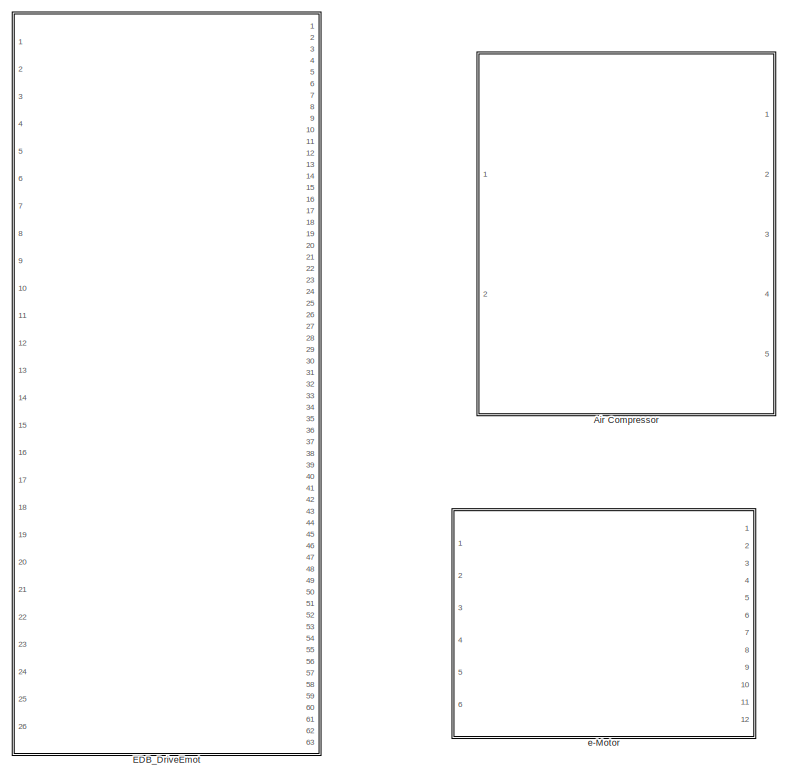
[diagram: root canvas - part 1/2, left side, full height]
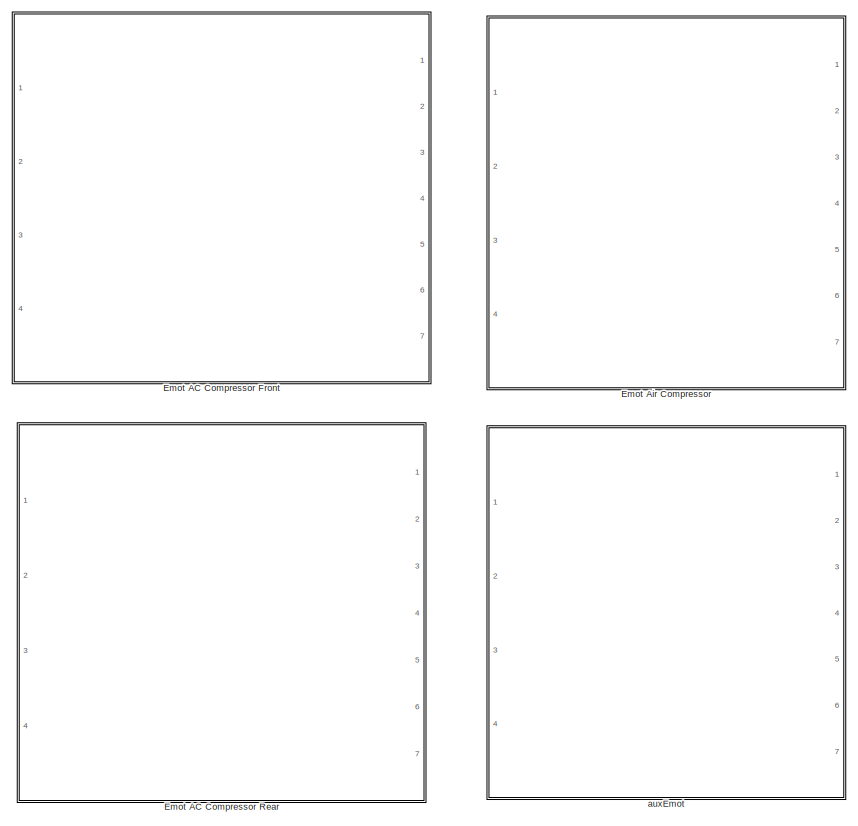
[diagram: root canvas - part 2/2, right side, full height]
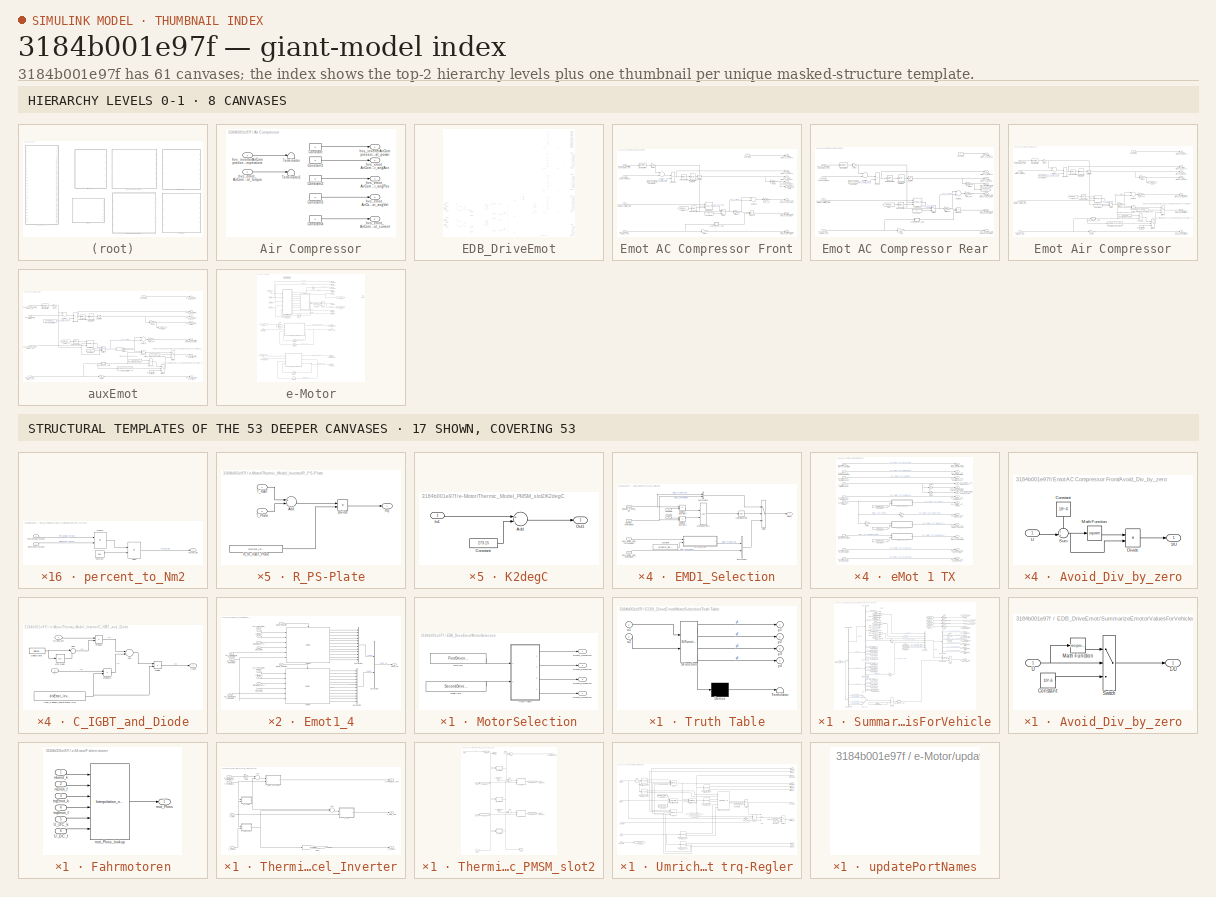
[diagram: thumbnail index - top-2 hierarchy levels (8 canvases) + 17 structural-template representatives of the remaining 53 canvases]
MODEL slx_3184b001e97f
KIND library
CONFIG AbsTol = auto
CONFIG FixedStep = auto
CONFIG MaxStep = auto
CONFIG MinStep = auto
CONFIG RelTol = 1e-3
CONFIG SampleTimeConstraint = Unconstrained
CONFIG Solver = ode45
CONFIG SolverMode = Auto
CONFIG SolverName = ode45
CONFIG StartTime = 0.0
CONFIG StopTime = 10.0
BLOCK [SubSystem] Air Compressor
  Ports = [2, 5]
  RequestExecContextInheritance = off
  Variant = off
BLOCK [Constant] Air Compressor/Constant
  Value = 0
BLOCK [Constant] Air Compressor/Constant1
  Value = 0
BLOCK [Constant] Air Compressor/Constant2
  Value = 0
BLOCK [Constant] Air Compressor/Constant3
  Value = 0
BLOCK [Constant] Air Compressor/Constant4
  Value = 0
BLOCK [Terminator] Air Compressor/Terminator
BLOCK [Terminator] Air Compressor/Terminator1
BLOCK [Outport] Air Compressor/hvs_emot_AirCompressor_angAcc
  IconDisplay = Port number
  Port = 2
BLOCK [Outport] Air Compressor/hvs_emot_AirCompressor_angPos
  IconDisplay = Port number
  Port = 3
BLOCK [Outport] Air Compressor/hvs_emot_AirCompressor_angVel
  IconDisplay = Port number
  Port = 4
BLOCK [Outport] Air Compressor/hvs_emot_AirCompressor_emot_current
  IconDisplay = Port number
  Port = 5
BLOCK [Inport] Air Compressor/hvs_emot_AirCompressor_torque
  IconDisplay = Port number
  Port = 2
BLOCK [Inport] Air Compressor/hvs_inverterAirCompressor_coolant_temperature
  IconDisplay = Port number
BLOCK [Outport] Air Compressor/hvs_inverterAirCompressor_wasteHeat_power 
  IconDisplay = Port number
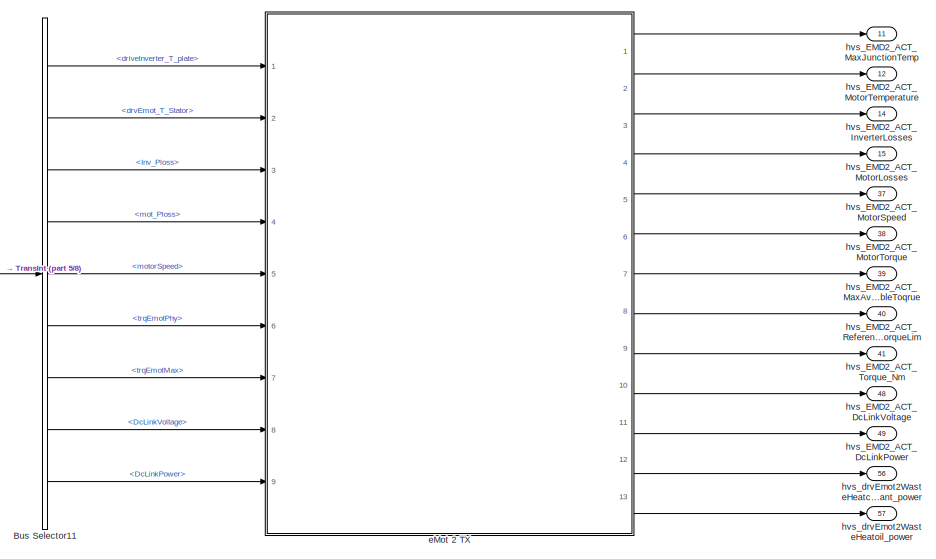
[diagram: EDB_DriveEmot - part 1/8, top right region]
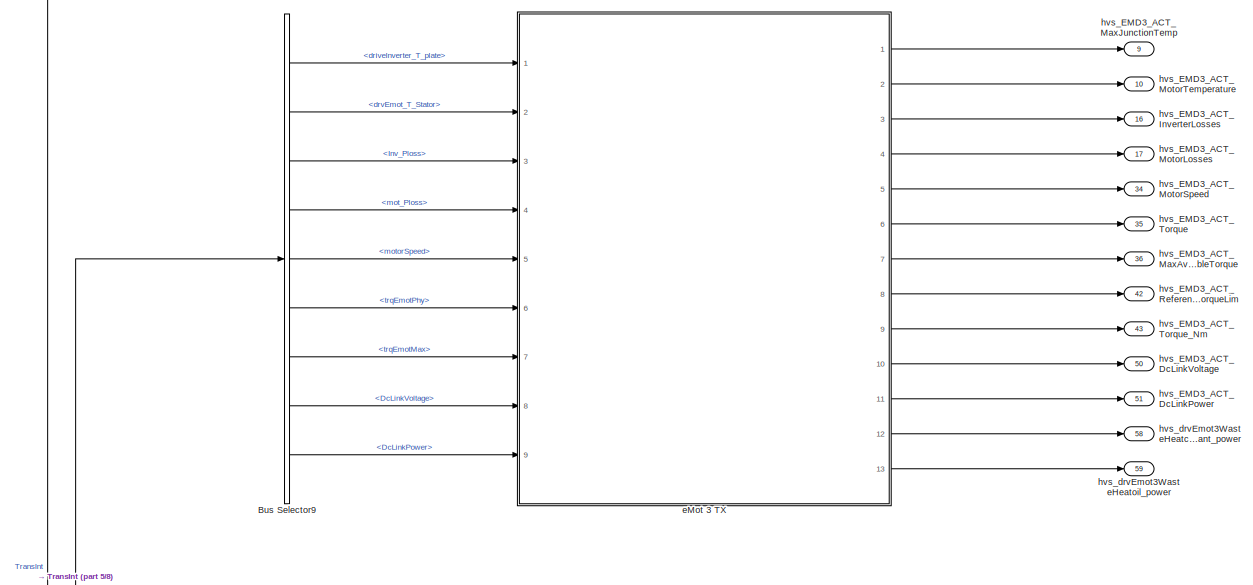
[diagram: EDB_DriveEmot - part 2/8, top right region]
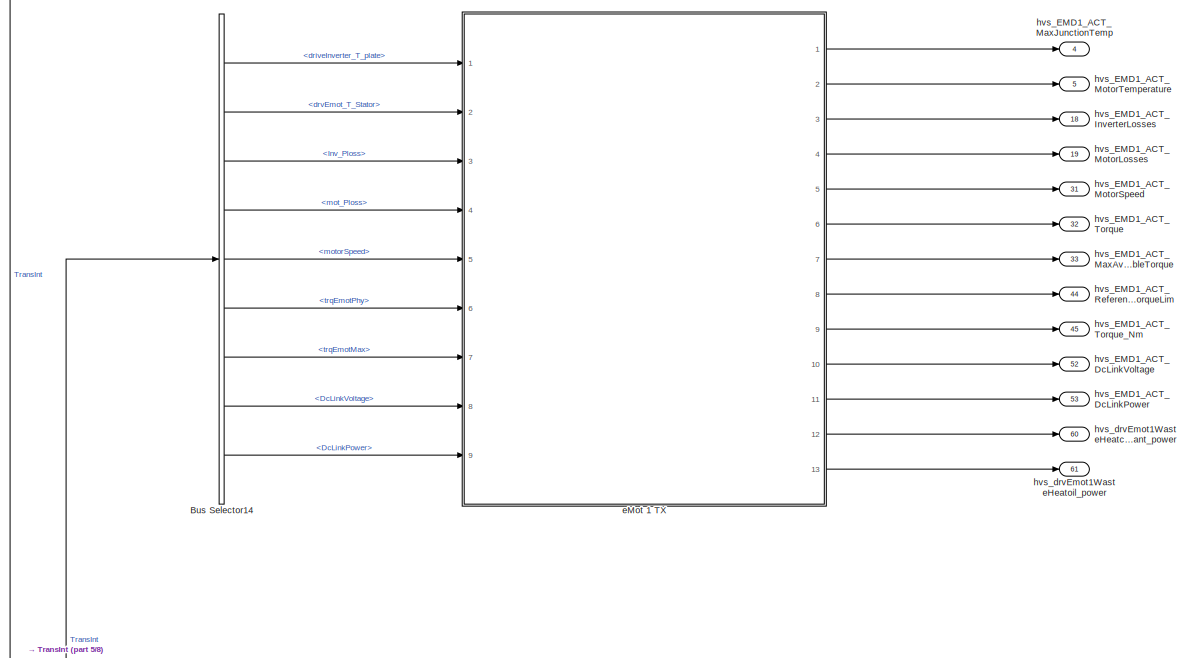
[diagram: EDB_DriveEmot - part 3/8, middle right region]
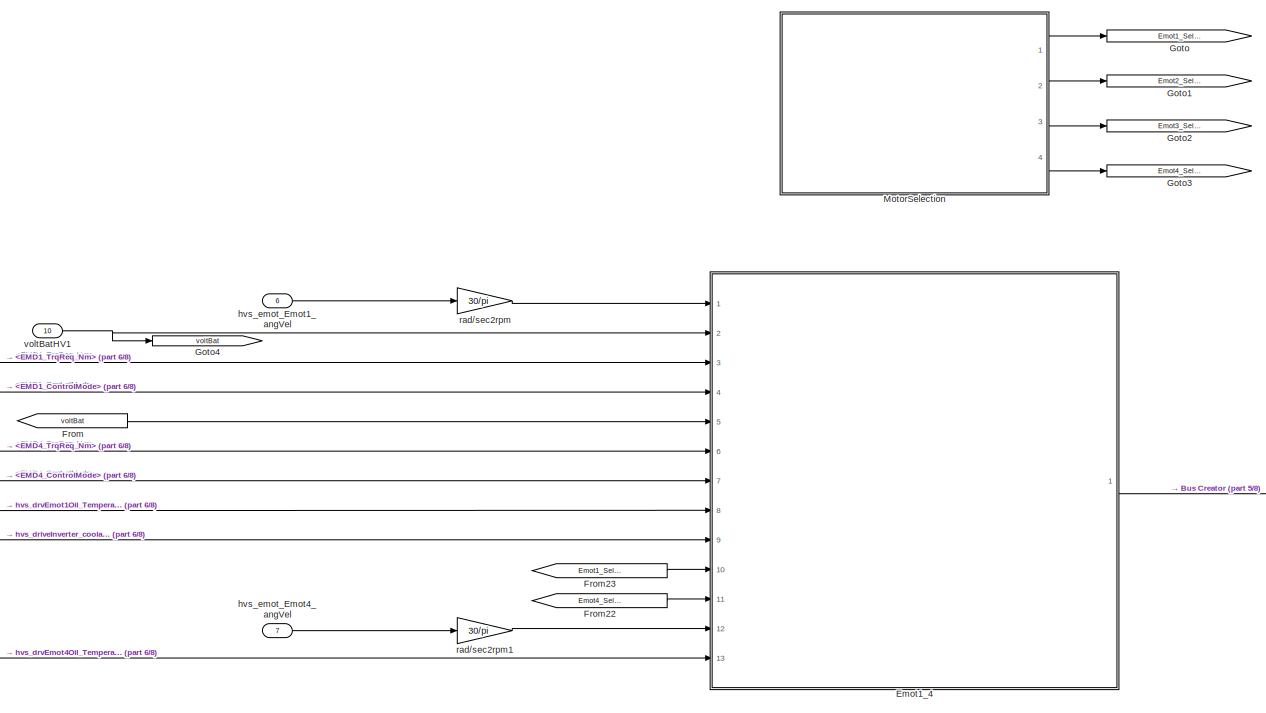
[diagram: EDB_DriveEmot - part 4/8, bottom center region]
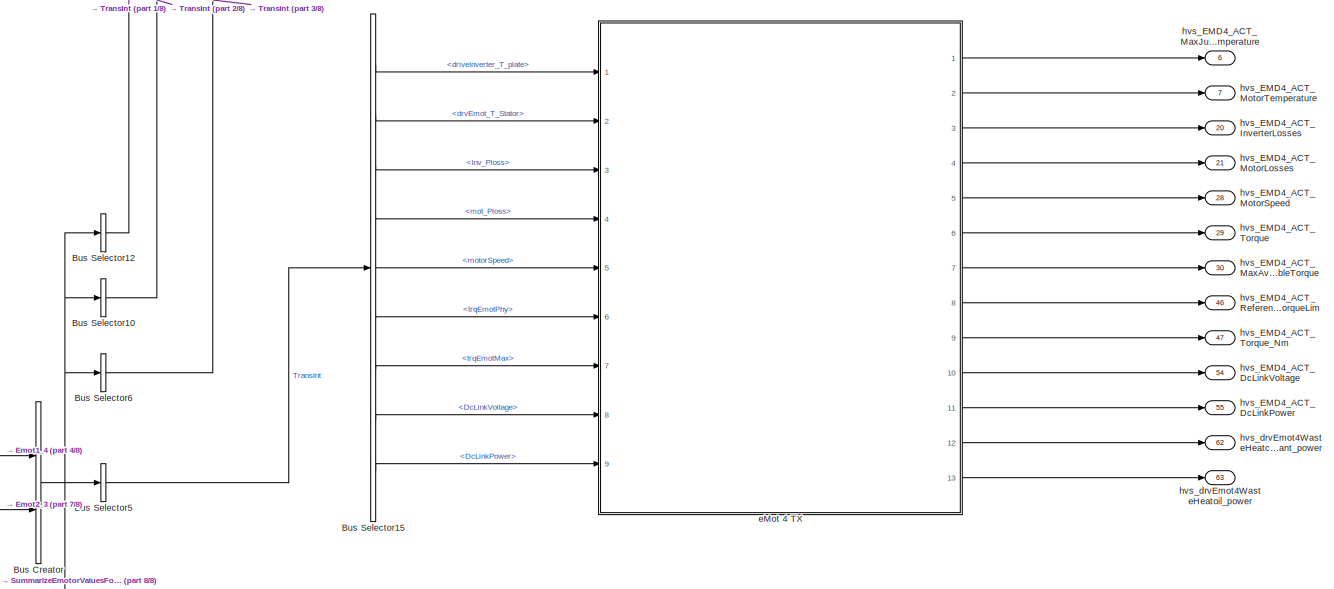
[diagram: EDB_DriveEmot - part 5/8, bottom right region]
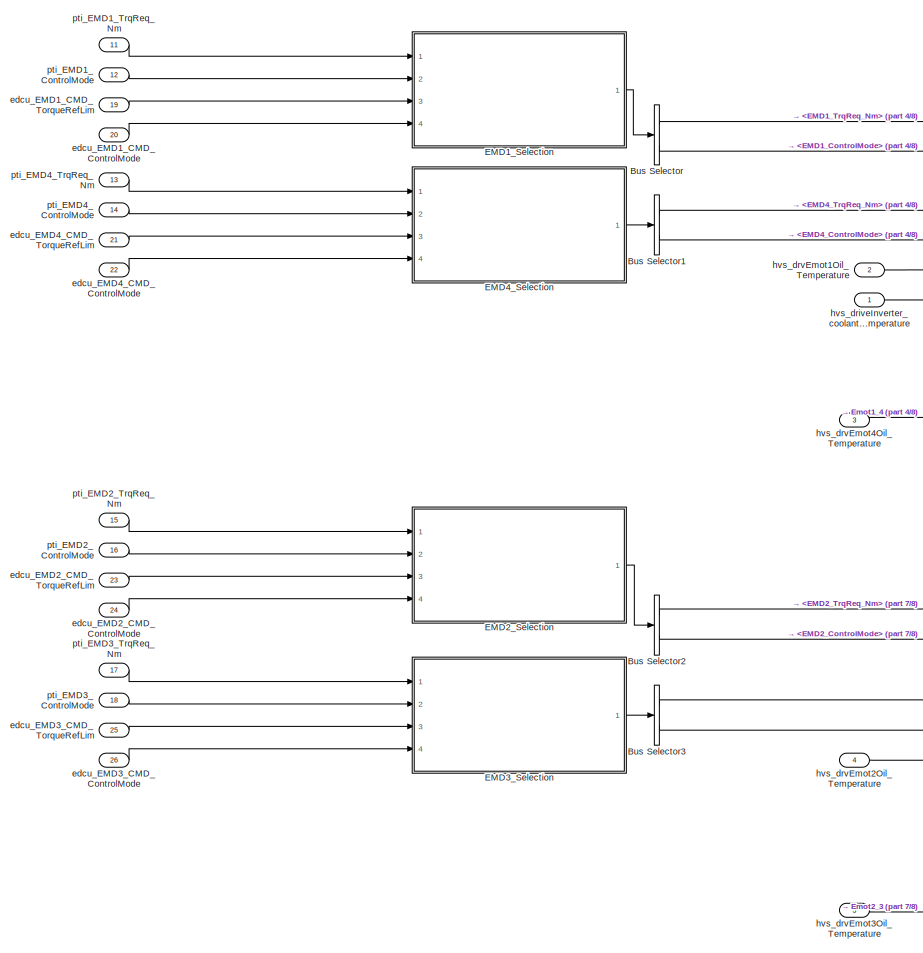
[diagram: EDB_DriveEmot - part 6/8, bottom left region]
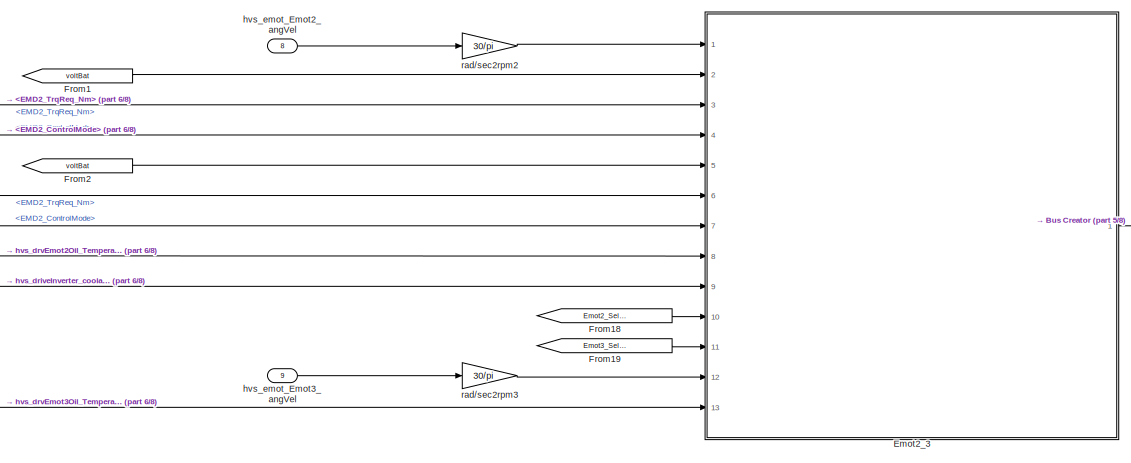
[diagram: EDB_DriveEmot - part 7/8, bottom center region]
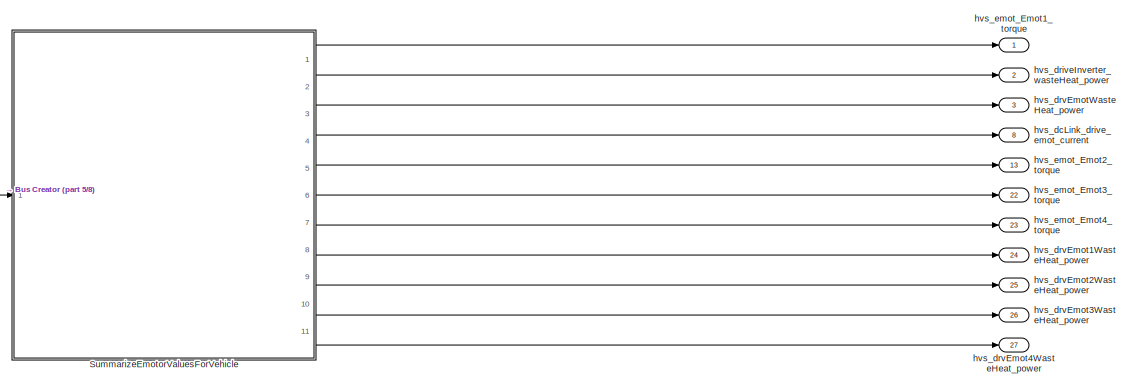
[diagram: EDB_DriveEmot - part 8/8, bottom right region]
BLOCK [SubSystem] EDB_DriveEmot
  Ports = [26, 63]
  RequestExecContextInheritance = off
  Variant = off
BLOCK [BusCreator] EDB_DriveEmot/Bus Creator
  DisplayOption = bar
  InheritFromInputs = on
  Inputs = 2
  Ports = [2, 1]
BLOCK [BusSelector] EDB_DriveEmot/Bus Selector
  OutputSignals = EMD1_TrqReq_Nm,EMD1_ControlMode
  Ports = [1, 2]
BLOCK [BusSelector] EDB_DriveEmot/Bus Selector1
  OutputSignals = EMD4_TrqReq_Nm,EMD4_ControlMode
  Ports = [1, 2]
BLOCK [BusSelector] EDB_DriveEmot/Bus Selector10
  OutputAsBus = on
  OutputSignals = emot2_3B.emot3B.driveInverter_T_plate,emot2_3B.emot3B.drvEmot_T_Stator,emot2_3B.emot3B.Inv_Ploss,emot2_3B.emot3B.mot_Ploss,emot2_3B.emot3B.motorSpeed,emot2_3B.emot3B.trqEmotPhy,emot2_3B.emot3B.trqEmotMax,emot2_3B.emot3B.DcLinkVoltage,emot2_3B.emot3B.DcLinkPower
  Ports = [1, 1]
BLOCK [BusSelector] EDB_DriveEmot/Bus Selector11
  OutputSignals = driveInverter_T_plate,drvEmot_T_Stator,Inv_Ploss,mot_Ploss,motorSpeed,trqEmotPhy,trqEmotMax,DcLinkVoltage,DcLinkPower
  Ports = [1, 9]
BLOCK [BusSelector] EDB_DriveEmot/Bus Selector12
  OutputAsBus = on
  OutputSignals = emot2_3B.emot2B.driveInverter_T_plate,emot2_3B.emot2B.drvEmot_T_Stator,emot2_3B.emot2B.Inv_Ploss,emot2_3B.emot2B.mot_Ploss,emot2_3B.emot2B.motorSpeed,emot2_3B.emot2B.trqEmotPhy,emot2_3B.emot2B.trqEmotMax,emot2_3B.emot2B.DcLinkVoltage,emot2_3B.emot2B.DcLinkPower
  Ports = [1, 1]
BLOCK [BusSelector] EDB_DriveEmot/Bus Selector14
  OutputSignals = driveInverter_T_plate,drvEmot_T_Stator,Inv_Ploss,mot_Ploss,motorSpeed,trqEmotPhy,trqEmotMax,DcLinkVoltage,DcLinkPower
  Ports = [1, 9]
BLOCK [BusSelector] EDB_DriveEmot/Bus Selector15
  OutputSignals = driveInverter_T_plate,drvEmot_T_Stator,Inv_Ploss,mot_Ploss,motorSpeed,trqEmotPhy,trqEmotMax,DcLinkVoltage,DcLinkPower
  Ports = [1, 9]
BLOCK [BusSelector] EDB_DriveEmot/Bus Selector2
  OutputSignals = EMD2_TrqReq_Nm,EMD2_ControlMode
  Ports = [1, 2]
BLOCK [BusSelector] EDB_DriveEmot/Bus Selector3
  OutputSignals = EMD2_TrqReq_Nm,EMD2_ControlMode
  Ports = [1, 2]
BLOCK [BusSelector] EDB_DriveEmot/Bus Selector5
  OutputAsBus = on
  OutputSignals = emot1_4B.emot4B.motorSpeed,emot1_4B.emot4B.trqEmotPhy,emot1_4B.emot4B.trqEmotMax,emot1_4B.emot4B.driveInverter_T_plate,emot1_4B.emot4B.drvEmot_T_Stator,emot1_4B.emot4B.Inv_Ploss,emot1_4B.emot4B.mot_Ploss,emot1_4B.emot4B.DcLinkVoltage,emot1_4B.emot4B.DcLinkPower
  Ports = [1, 1]
BLOCK [BusSelector] EDB_DriveEmot/Bus Selector6
  OutputAsBus = on
  OutputSignals = emot1_4B.emot1B.driveInverter_T_plate,emot1_4B.emot1B.drvEmot_T_Stator,emot1_4B.emot1B.Inv_Ploss,emot1_4B.emot1B.mot_Ploss,emot1_4B.emot1B.motorSpeed,emot1_4B.emot1B.trqEmotPhy,emot1_4B.emot1B.trqEmotMax,emot1_4B.emot1B.DcLinkVoltage,emot1_4B.emot1B.DcLinkPower
  Ports = [1, 1]
BLOCK [BusSelector] EDB_DriveEmot/Bus Selector9
  OutputSignals = driveInverter_T_plate,drvEmot_T_Stator,Inv_Ploss,mot_Ploss,motorSpeed,trqEmotPhy,trqEmotMax,DcLinkVoltage,DcLinkPower
  Ports = [1, 9]
BLOCK [SubSystem] EDB_DriveEmot/EMD1_Selection
  Ports = [4, 1]
  RequestExecContextInheritance = off
  Variant = off
BLOCK [BusCreator] EDB_DriveEmot/EMD1_Selection/Bus Creator1
  DisplayOption = bar
  InheritFromInputs = on
  Inputs = 2
  Ports = [2, 1]
BLOCK [BusCreator] EDB_DriveEmot/EMD1_Selection/Bus Creator2
  DisplayOption = bar
  InheritFromInputs = on
  Inputs = 2
  Ports = [2, 1]
BLOCK [Constant] EDB_DriveEmot/EMD1_Selection/Constant2
  Value = 0
BLOCK [Constant] EDB_DriveEmot/EMD1_Selection/Constant3
  Value = -1
BLOCK [Constant] EDB_DriveEmot/EMD1_Selection/Constant4
  Value = drvEmot_RefTqeMOT
BLOCK [Logic] EDB_DriveEmot/EMD1_Selection/Logical Operator
  AllPortsSameDT = off
  Operator = NOT
  OutDataTypeStr = boolean
  Ports = [1, 1]
BLOCK [Logic] EDB_DriveEmot/EMD1_Selection/Logical Operator1
  AllPortsSameDT = off
  OutDataTypeStr = boolean
  Ports = [2, 1]
BLOCK [RelationalOperator] EDB_DriveEmot/EMD1_Selection/Relational Operator2
  InputSameDT = off
  Operator = ==
  OutDataTypeStr = boolean
  Ports = [2, 1]
BLOCK [RelationalOperator] EDB_DriveEmot/EMD1_Selection/Relational Operator3
  InputSameDT = off
  Operator = ==
  OutDataTypeStr = boolean
  Ports = [2, 1]
BLOCK [Outport] EDB_DriveEmot/EMD1_Selection/Signal
  IconDisplay = Port number
BLOCK [Switch] EDB_DriveEmot/EMD1_Selection/Switch
  Criteria = u2 > Threshold
  InputSameDT = off
  SaturateOnIntegerOverflow = off
BLOCK [Inport] EDB_DriveEmot/EMD1_Selection/edcu_EMD1_CMD_ControlMode
  IconDisplay = Port number
  Port = 4
BLOCK [Inport] EDB_DriveEmot/EMD1_Selection/edcu_EMD1_CMD_TorqueRefLim
  IconDisplay = Port number
  Port = 3
BLOCK [SubSystem] EDB_DriveEmot/EMD1_Selection/percent_to_Nm2
  Ports = [2, 1]
  RequestExecContextInheritance = off
  Variant = off
BLOCK [Constant] EDB_DriveEmot/EMD1_Selection/percent_to_Nm2/Constant
  Value = 100
BLOCK [Product] EDB_DriveEmot/EMD1_Selection/percent_to_Nm2/Divide
  InputSameDT = off
  Inputs = */
  OutDataTypeStr = Inherit: Inherit via internal rule
  Ports = [2, 1]
  RndMeth = Floor
  SaturateOnIntegerOverflow = off
BLOCK [Inport] EDB_DriveEmot/EMD1_Selection/percent_to_Nm2/Percentage_Torque
  IconDisplay = Port number
BLOCK [Product] EDB_DriveEmot/EMD1_Selection/percent_to_Nm2/Product
  InputSameDT = off
  OutDataTypeStr = Inherit: Inherit via internal rule
  Ports = [2, 1]
  SaturateOnIntegerOverflow = off
BLOCK [Inport] EDB_DriveEmot/EMD1_Selection/percent_to_Nm2/Reference_Torque
  IconDisplay = Port number
  Port = 2
BLOCK [Outport] EDB_DriveEmot/EMD1_Selection/percent_to_Nm2/Torque_Nm
  IconDisplay = Port number
BLOCK [Inport] EDB_DriveEmot/EMD1_Selection/pti_EMD1_ControlMode
  IconDisplay = Port number
  Port = 2
BLOCK [Inport] EDB_DriveEmot/EMD1_Selection/pti_EMD1_TrqReq_Nm
  IconDisplay = Port number
BLOCK [SubSystem] EDB_DriveEmot/EMD2_Selection
  Ports = [4, 1]
  RequestExecContextInheritance = off
  Variant = off
BLOCK [BusCreator] EDB_DriveEmot/EMD2_Selection/Bus Creator1
  DisplayOption = bar
  InheritFromInputs = on
  Inputs = 2
  Ports = [2, 1]
BLOCK [BusCreator] EDB_DriveEmot/EMD2_Selection/Bus Creator2
  DisplayOption = bar
  InheritFromInputs = on
  Inputs = 2
  Ports = [2, 1]
BLOCK [Constant] EDB_DriveEmot/EMD2_Selection/Constant2
  Value = 0
BLOCK [Constant] EDB_DriveEmot/EMD2_Selection/Constant3
  Value = -1
BLOCK [Constant] EDB_DriveEmot/EMD2_Selection/Constant4
  Value = drvEmot_RefTqeMOT
BLOCK [Logic] EDB_DriveEmot/EMD2_Selection/Logical Operator
  AllPortsSameDT = off
  Operator = NOT
  OutDataTypeStr = boolean
  Ports = [1, 1]
BLOCK [Logic] EDB_DriveEmot/EMD2_Selection/Logical Operator1
  AllPortsSameDT = off
  OutDataTypeStr = boolean
  Ports = [2, 1]
BLOCK [RelationalOperator] EDB_DriveEmot/EMD2_Selection/Relational Operator2
  InputSameDT = off
  Operator = ==
  OutDataTypeStr = boolean
  Ports = [2, 1]
BLOCK [RelationalOperator] EDB_DriveEmot/EMD2_Selection/Relational Operator3
  InputSameDT = off
  Operator = ==
  OutDataTypeStr = boolean
  Ports = [2, 1]
BLOCK [Outport] EDB_DriveEmot/EMD2_Selection/Signal
  IconDisplay = Port number
BLOCK [Switch] EDB_DriveEmot/EMD2_Selection/Switch
  Criteria = u2 > Threshold
  InputSameDT = off
  SaturateOnIntegerOverflow = off
BLOCK [Inport] EDB_DriveEmot/EMD2_Selection/edcu_EMD2_CMD_ControlMode
  IconDisplay = Port number
  Port = 4
BLOCK [Inport] EDB_DriveEmot/EMD2_Selection/edcu_EMD2_CMD_TorqueRefLim
  IconDisplay = Port number
  Port = 3
BLOCK [SubSystem] EDB_DriveEmot/EMD2_Selection/percent_to_Nm2
  Ports = [2, 1]
  RequestExecContextInheritance = off
  Variant = off
BLOCK [Constant] EDB_DriveEmot/EMD2_Selection/percent_to_Nm2/Constant
  Value = 100
BLOCK [Product] EDB_DriveEmot/EMD2_Selection/percent_to_Nm2/Divide
  InputSameDT = off
  Inputs = */
  OutDataTypeStr = Inherit: Inherit via internal rule
  Ports = [2, 1]
  RndMeth = Floor
  SaturateOnIntegerOverflow = off
BLOCK [Inport] EDB_DriveEmot/EMD2_Selection/percent_to_Nm2/Percentage_Torque
  IconDisplay = Port number
BLOCK [Product] EDB_DriveEmot/EMD2_Selection/percent_to_Nm2/Product
  InputSameDT = off
  OutDataTypeStr = Inherit: Inherit via internal rule
  Ports = [2, 1]
  SaturateOnIntegerOverflow = off
BLOCK [Inport] EDB_DriveEmot/EMD2_Selection/percent_to_Nm2/Reference_Torque
  IconDisplay = Port number
  Port = 2
BLOCK [Outport] EDB_DriveEmot/EMD2_Selection/percent_to_Nm2/Torque_Nm
  IconDisplay = Port number
BLOCK [Inport] EDB_DriveEmot/EMD2_Selection/pti_EMD2_ControlMode
  IconDisplay = Port number
  Port = 2
BLOCK [Inport] EDB_DriveEmot/EMD2_Selection/pti_EMD2_TrqReq_Nm
  IconDisplay = Port number
BLOCK [SubSystem] EDB_DriveEmot/EMD3_Selection
  Ports = [4, 1]
  RequestExecContextInheritance = off
  Variant = off
BLOCK [BusCreator] EDB_DriveEmot/EMD3_Selection/Bus Creator1
  DisplayOption = bar
  InheritFromInputs = on
  Inputs = 2
  Ports = [2, 1]
BLOCK [BusCreator] EDB_DriveEmot/EMD3_Selection/Bus Creator2
  DisplayOption = bar
  InheritFromInputs = on
  Inputs = 2
  Ports = [2, 1]
BLOCK [Constant] EDB_DriveEmot/EMD3_Selection/Constant2
  Value = 0
BLOCK [Constant] EDB_DriveEmot/EMD3_Selection/Constant3
  Value = -1
BLOCK [Constant] EDB_DriveEmot/EMD3_Selection/Constant4
  Value = drvEmot_RefTqeMOT
BLOCK [Logic] EDB_DriveEmot/EMD3_Selection/Logical Operator
  AllPortsSameDT = off
  Operator = NOT
  OutDataTypeStr = boolean
  Ports = [1, 1]
BLOCK [Logic] EDB_DriveEmot/EMD3_Selection/Logical Operator1
  AllPortsSameDT = off
  OutDataTypeStr = boolean
  Ports = [2, 1]
BLOCK [RelationalOperator] EDB_DriveEmot/EMD3_Selection/Relational Operator2
  InputSameDT = off
  Operator = ==
  OutDataTypeStr = boolean
  Ports = [2, 1]
BLOCK [RelationalOperator] EDB_DriveEmot/EMD3_Selection/Relational Operator3
  InputSameDT = off
  Operator = ==
  OutDataTypeStr = boolean
  Ports = [2, 1]
BLOCK [Outport] EDB_DriveEmot/EMD3_Selection/Signal
  IconDisplay = Port number
BLOCK [Switch] EDB_DriveEmot/EMD3_Selection/Switch
  Criteria = u2 > Threshold
  InputSameDT = off
  SaturateOnIntegerOverflow = off
BLOCK [Inport] EDB_DriveEmot/EMD3_Selection/edcu_EMD2_CMD_ControlMode
  IconDisplay = Port number
  Port = 4
BLOCK [Inport] EDB_DriveEmot/EMD3_Selection/edcu_EMD2_CMD_TorqueRefLim
  IconDisplay = Port number
  Port = 3
BLOCK [SubSystem] EDB_DriveEmot/EMD3_Selection/percent_to_Nm2
  Ports = [2, 1]
  RequestExecContextInheritance = off
  Variant = off
BLOCK [Constant] EDB_DriveEmot/EMD3_Selection/percent_to_Nm2/Constant
  Value = 100
BLOCK [Product] EDB_DriveEmot/EMD3_Selection/percent_to_Nm2/Divide
  InputSameDT = off
  Inputs = */
  OutDataTypeStr = Inherit: Inherit via internal rule
  Ports = [2, 1]
  RndMeth = Floor
  SaturateOnIntegerOverflow = off
BLOCK [Inport] EDB_DriveEmot/EMD3_Selection/percent_to_Nm2/Percentage_Torque
  IconDisplay = Port number
BLOCK [Product] EDB_DriveEmot/EMD3_Selection/percent_to_Nm2/Product
  InputSameDT = off
  OutDataTypeStr = Inherit: Inherit via internal rule
  Ports = [2, 1]
  SaturateOnIntegerOverflow = off
BLOCK [Inport] EDB_DriveEmot/EMD3_Selection/percent_to_Nm2/Reference_Torque
  IconDisplay = Port number
  Port = 2
BLOCK [Outport] EDB_DriveEmot/EMD3_Selection/percent_to_Nm2/Torque_Nm
  IconDisplay = Port number
BLOCK [Inport] EDB_DriveEmot/EMD3_Selection/pti_EMD2_ControlMode
  IconDisplay = Port number
  Port = 2
BLOCK [Inport] EDB_DriveEmot/EMD3_Selection/pti_EMD2_TrqReq_Nm
  IconDisplay = Port number
BLOCK [SubSystem] EDB_DriveEmot/EMD4_Selection
  Ports = [4, 1]
  RequestExecContextInheritance = off
  Variant = off
BLOCK [BusCreator] EDB_DriveEmot/EMD4_Selection/Bus Creator1
  DisplayOption = bar
  InheritFromInputs = on
  Inputs = 2
  Ports = [2, 1]
BLOCK [BusCreator] EDB_DriveEmot/EMD4_Selection/Bus Creator2
  DisplayOption = bar
  InheritFromInputs = on
  Inputs = 2
  Ports = [2, 1]
BLOCK [Constant] EDB_DriveEmot/EMD4_Selection/Constant2
  Value = 0
BLOCK [Constant] EDB_DriveEmot/EMD4_Selection/Constant3
  Value = -1
BLOCK [Constant] EDB_DriveEmot/EMD4_Selection/Constant4
  Value = drvEmot_RefTqeMOT
BLOCK [Logic] EDB_DriveEmot/EMD4_Selection/Logical Operator
  AllPortsSameDT = off
  Operator = NOT
  OutDataTypeStr = boolean
  Ports = [1, 1]
BLOCK [Logic] EDB_DriveEmot/EMD4_Selection/Logical Operator1
  AllPortsSameDT = off
  OutDataTypeStr = boolean
  Ports = [2, 1]
BLOCK [RelationalOperator] EDB_DriveEmot/EMD4_Selection/Relational Operator2
  InputSameDT = off
  Operator = ==
  OutDataTypeStr = boolean
  Ports = [2, 1]
BLOCK [RelationalOperator] EDB_DriveEmot/EMD4_Selection/Relational Operator3
  InputSameDT = off
  Operator = ==
  OutDataTypeStr = boolean
  Ports = [2, 1]
BLOCK [Outport] EDB_DriveEmot/EMD4_Selection/Signal
  IconDisplay = Port number
BLOCK [Switch] EDB_DriveEmot/EMD4_Selection/Switch
  Criteria = u2 > Threshold
  InputSameDT = off
  SaturateOnIntegerOverflow = off
BLOCK [Inport] EDB_DriveEmot/EMD4_Selection/edcu_EMD4_CMD_ControlMode
  IconDisplay = Port number
  Port = 4
BLOCK [Inport] EDB_DriveEmot/EMD4_Selection/edcu_EMD4_CMD_TorqueRefLim
  IconDisplay = Port number
  Port = 3
BLOCK [SubSystem] EDB_DriveEmot/EMD4_Selection/percent_to_Nm2
  Ports = [2, 1]
  RequestExecContextInheritance = off
  Variant = off
BLOCK [Constant] EDB_DriveEmot/EMD4_Selection/percent_to_Nm2/Constant
  Value = 100
BLOCK [Product] EDB_DriveEmot/EMD4_Selection/percent_to_Nm2/Divide
  InputSameDT = off
  Inputs = */
  OutDataTypeStr = Inherit: Inherit via internal rule
  Ports = [2, 1]
  RndMeth = Floor
  SaturateOnIntegerOverflow = off
BLOCK [Inport] EDB_DriveEmot/EMD4_Selection/percent_to_Nm2/Percentage_Torque
  IconDisplay = Port number
BLOCK [Product] EDB_DriveEmot/EMD4_Selection/percent_to_Nm2/Product
  InputSameDT = off
  OutDataTypeStr = Inherit: Inherit via internal rule
  Ports = [2, 1]
  SaturateOnIntegerOverflow = off
BLOCK [Inport] EDB_DriveEmot/EMD4_Selection/percent_to_Nm2/Reference_Torque
  IconDisplay = Port number
  Port = 2
BLOCK [Outport] EDB_DriveEmot/EMD4_Selection/percent_to_Nm2/Torque_Nm
  IconDisplay = Port number
BLOCK [Inport] EDB_DriveEmot/EMD4_Selection/pti_EMD4_ControlMode
  IconDisplay = Port number
  Port = 2
BLOCK [Inport] EDB_DriveEmot/EMD4_Selection/pti_EMD4_TrqReq_Nm
  IconDisplay = Port number
BLOCK [SubSystem] EDB_DriveEmot/Emot1_4
  Ports = [13, 1]
  RequestExecContextInheritance = off
  Variant = off
BLOCK [BusCreator] EDB_DriveEmot/Emot1_4/Bus Creator1
  DisplayOption = bar
  InheritFromInputs = on
  Inputs = 12
  Ports = [12, 1]
BLOCK [BusCreator] EDB_DriveEmot/Emot1_4/Bus Creator2
  DisplayOption = bar
  InheritFromInputs = on
  Inputs = 12
  Ports = [12, 1]
BLOCK [BusCreator] EDB_DriveEmot/Emot1_4/Bus Creator3
  DisplayOption = bar
  InheritFromInputs = on
  Inputs = 2
  Ports = [2, 1]
BLOCK [Inport] EDB_DriveEmot/Emot1_4/Emot1_Selection
  IconDisplay = Port number
  Port = 10
BLOCK [Inport] EDB_DriveEmot/Emot1_4/Emot4_Selection
  IconDisplay = Port number
  Port = 11
BLOCK [Reference] EDB_DriveEmot/Emot1_4/e-Motor1  REF=Electrical_to_Mechanical_gen/e-Motor
  Ports = [6, 12, 1]
  SourceBlock = Electrical_to_Mechanical_gen/e-Motor
  SourceType = MapModule
BLOCK [Reference] EDB_DriveEmot/Emot1_4/e-Motor4  REF=Electrical_to_Mechanical_gen/e-Motor
  Ports = [6, 12, 1]
  SourceBlock = Electrical_to_Mechanical_gen/e-Motor
  SourceType = MapModule
BLOCK [Outport] EDB_DriveEmot/Emot1_4/emot1_4B
  IconDisplay = Port number
BLOCK [Inport] EDB_DriveEmot/Emot1_4/emot_CMD1
  IconDisplay = Port number
  Port = 4
BLOCK [Inport] EDB_DriveEmot/Emot1_4/emot_CMD4
  IconDisplay = Port number
  Port = 7
BLOCK [Inport] EDB_DriveEmot/Emot1_4/hvs_drvEmot1Oil_Temperature
  IconDisplay = Port number
  Port = 8
BLOCK [Inport] EDB_DriveEmot/Emot1_4/hvs_drvEmot4Oil_Temperature
  IconDisplay = Port number
  Port = 13
BLOCK [Inport] EDB_DriveEmot/Emot1_4/hvs_emot_Emot1_angVel
  IconDisplay = Port number
BLOCK [Inport] EDB_DriveEmot/Emot1_4/hvs_emot_Emot4_angVel
  IconDisplay = Port number
  Port = 12
BLOCK [Inport] EDB_DriveEmot/Emot1_4/inv_coolant_temperature
  IconDisplay = Port number
  Port = 9
BLOCK [Inport] EDB_DriveEmot/Emot1_4/trqEmotDesPhy1
  IconDisplay = Port number
  Port = 3
BLOCK [Inport] EDB_DriveEmot/Emot1_4/trqEmotDesPhy4
  IconDisplay = Port number
  Port = 6
BLOCK [Inport] EDB_DriveEmot/Emot1_4/voltBatHV1
  IconDisplay = Port number
  Port = 2
BLOCK [Inport] EDB_DriveEmot/Emot1_4/voltBatHV4
  IconDisplay = Port number
  Port = 5
BLOCK [SubSystem] EDB_DriveEmot/Emot2_3
  Ports = [13, 1]
  RequestExecContextInheritance = off
  Variant = off
BLOCK [BusCreator] EDB_DriveEmot/Emot2_3/Bus Creator1
  DisplayOption = bar
  InheritFromInputs = on
  Inputs = 12
  Ports = [12, 1]
BLOCK [BusCreator] EDB_DriveEmot/Emot2_3/Bus Creator2
  DisplayOption = bar
  InheritFromInputs = on
  Inputs = 12
  Ports = [12, 1]
BLOCK [BusCreator] EDB_DriveEmot/Emot2_3/Bus Creator3
  DisplayOption = bar
  InheritFromInputs = on
  Inputs = 2
  Ports = [2, 1]
BLOCK [Inport] EDB_DriveEmot/Emot2_3/Emot2_Selection
  IconDisplay = Port number
  Port = 10
BLOCK [Inport] EDB_DriveEmot/Emot2_3/Emot3_Selection
  IconDisplay = Port number
  Port = 11
BLOCK [Reference] EDB_DriveEmot/Emot2_3/e-Motor2  REF=Electrical_to_Mechanical_gen/e-Motor
  Ports = [6, 12, 1]
  SourceBlock = Electrical_to_Mechanical_gen/e-Motor
  SourceType = MapModule
BLOCK [Reference] EDB_DriveEmot/Emot2_3/e-Motor3  REF=Electrical_to_Mechanical_gen/e-Motor
  Ports = [6, 12, 1]
  SourceBlock = Electrical_to_Mechanical_gen/e-Motor
  SourceType = MapModule
BLOCK [Outport] EDB_DriveEmot/Emot2_3/emot2_3B
  IconDisplay = Port number
BLOCK [Inport] EDB_DriveEmot/Emot2_3/emot_CMD2
  IconDisplay = Port number
  Port = 4
BLOCK [Inport] EDB_DriveEmot/Emot2_3/emot_CMD3
  IconDisplay = Port number
  Port = 7
BLOCK [Inport] EDB_DriveEmot/Emot2_3/hvs_drvEmot2Oil_Temperature
  IconDisplay = Port number
  Port = 8
BLOCK [Inport] EDB_DriveEmot/Emot2_3/hvs_drvEmot3Oil_Temperature
  IconDisplay = Port number
  Port = 13
BLOCK [Inport] EDB_DriveEmot/Emot2_3/hvs_emot_Emot2_angVel
  IconDisplay = Port number
BLOCK [Inport] EDB_DriveEmot/Emot2_3/hvs_emot_Emot3_angVel
  IconDisplay = Port number
  Port = 12
BLOCK [Inport] EDB_DriveEmot/Emot2_3/inv_coolant_temperature
  IconDisplay = Port number
  Port = 9
BLOCK [Inport] EDB_DriveEmot/Emot2_3/trqEmotDesPhy2
  IconDisplay = Port number
  Port = 3
BLOCK [Inport] EDB_DriveEmot/Emot2_3/trqEmotDesPhy3
  IconDisplay = Port number
  Port = 6
BLOCK [Inport] EDB_DriveEmot/Emot2_3/voltBatHV2
  IconDisplay = Port number
  Port = 2
BLOCK [Inport] EDB_DriveEmot/Emot2_3/voltBatHV3
  IconDisplay = Port number
  Port = 5
BLOCK [From] EDB_DriveEmot/From
  GotoTag = voltBat
BLOCK [From] EDB_DriveEmot/From1
  GotoTag = voltBat
BLOCK [From] EDB_DriveEmot/From18
  GotoTag = Emot2_Selection
BLOCK [From] EDB_DriveEmot/From19
  GotoTag = Emot3_Selection
BLOCK [From] EDB_DriveEmot/From2
  GotoTag = voltBat
BLOCK [From] EDB_DriveEmot/From22
  GotoTag = Emot4_Selection
BLOCK [From] EDB_DriveEmot/From23
  GotoTag = Emot1_Selection
BLOCK [Goto] EDB_DriveEmot/Goto
  GotoTag = Emot1_Selection
BLOCK [Goto] EDB_DriveEmot/Goto1
  GotoTag = Emot2_Selection
BLOCK [Goto] EDB_DriveEmot/Goto2
  GotoTag = Emot3_Selection
BLOCK [Goto] EDB_DriveEmot/Goto3
  GotoTag = Emot4_Selection
BLOCK [Goto] EDB_DriveEmot/Goto4
  GotoTag = voltBat
BLOCK [SubSystem] EDB_DriveEmot/MotorSelection
  Ports = [0, 4]
  RequestExecContextInheritance = off
  Variant = off
BLOCK [Outport] EDB_DriveEmot/MotorSelection/Emot1_Selection
  IconDisplay = Port number
BLOCK [Outport] EDB_DriveEmot/MotorSelection/Emot2_Selection
  IconDisplay = Port number
  Port = 2
BLOCK [Outport] EDB_DriveEmot/MotorSelection/Emot3_Selection
  IconDisplay = Port number
  Port = 3
BLOCK [Outport] EDB_DriveEmot/MotorSelection/Emot4_Selection
  IconDisplay = Port number
  Port = 4
BLOCK [Constant] EDB_DriveEmot/MotorSelection/MidAxle
  Value = FirstDrivenAxle_FirstDrivenAxleNoOfEmot
BLOCK [Constant] EDB_DriveEmot/MotorSelection/RearAxle
  Value = SecondDrivenAxle_SecondDrivenAxleNoOfEmot
BLOCK [SubSystem] EDB_DriveEmot/MotorSelection/Truth Table
  ErrorFcn = Stateflow.Translate.translate
  PermitHierarchicalResolution = ExplicitOnly
  Ports = [2, 4]
  RequestExecContextInheritance = off
  SFBlockType = Truth Table
  TreatAsAtomicUnit = on
  Variant = off
BLOCK [Demux] EDB_DriveEmot/MotorSelection/Truth Table/ Demux 
  Outputs = 1
  Ports = [1, 1]
BLOCK [S-Function] EDB_DriveEmot/MotorSelection/Truth Table/ SFunction 
  EnableBusSupport = off
  FunctionName = sf_sfun
  PortCounts = [2 5]
  Ports = [2, 5]
  SFunctionDeploymentMode = off
  Tag = Stateflow S-Function Electrical_to_Mechanical_gen 2
BLOCK [Terminator] EDB_DriveEmot/MotorSelection/Truth Table/ Terminator 
BLOCK [Inport] EDB_DriveEmot/MotorSelection/Truth Table/u1
  IconDisplay = Port number
BLOCK [Inport] EDB_DriveEmot/MotorSelection/Truth Table/u2
  IconDisplay = Port number
  Port = 2
BLOCK [Outport] EDB_DriveEmot/MotorSelection/Truth Table/y1
  IconDisplay = Port number
BLOCK [Outport] EDB_DriveEmot/MotorSelection/Truth Table/y2
  IconDisplay = Port number
  Port = 2
BLOCK [Outport] EDB_DriveEmot/MotorSelection/Truth Table/y3
  IconDisplay = Port number
  Port = 3
BLOCK [Outport] EDB_DriveEmot/MotorSelection/Truth Table/y4
  IconDisplay = Port number
  Port = 4
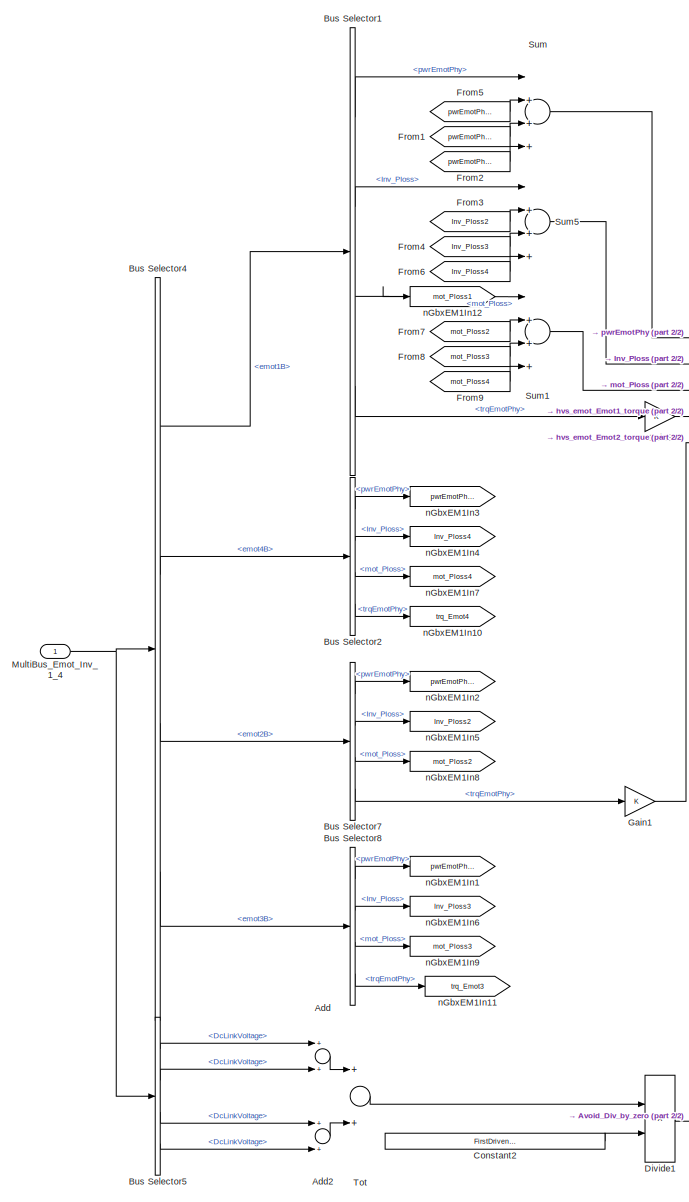
[diagram: EDB_DriveEmot/SummarizeEmotorValuesForVehicle - part 1/2, left side, full height]
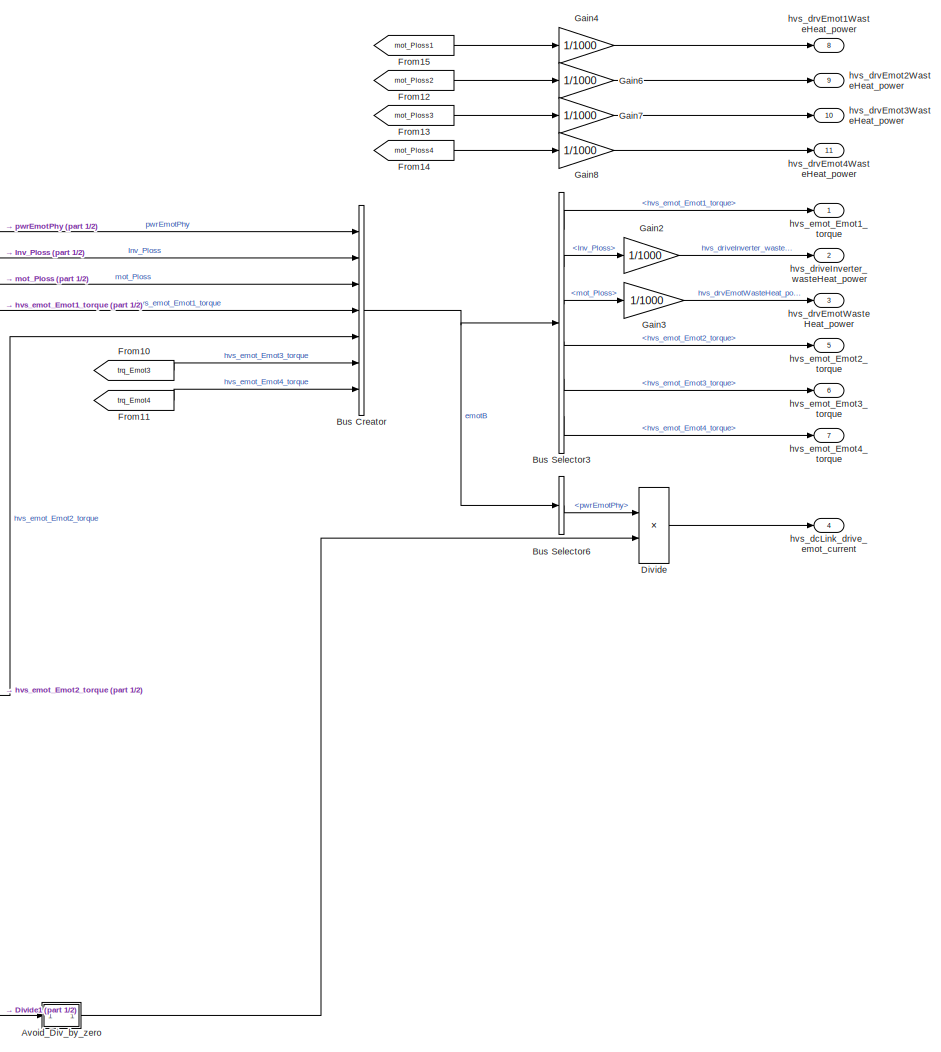
[diagram: EDB_DriveEmot/SummarizeEmotorValuesForVehicle - part 2/2, right side, full height]
BLOCK [SubSystem] EDB_DriveEmot/SummarizeEmotorValuesForVehicle
  Ports = [1, 11]
  RequestExecContextInheritance = off
  TreatAsAtomicUnit = on
  Variant = off
BLOCK [Sum] EDB_DriveEmot/SummarizeEmotorValuesForVehicle/Add
  InputSameDT = off
  OutDataTypeStr = Inherit: Inherit via internal rule
  Ports = [2, 1]
  SaturateOnIntegerOverflow = off
BLOCK [Sum] EDB_DriveEmot/SummarizeEmotorValuesForVehicle/Add2
  InputSameDT = off
  OutDataTypeStr = Inherit: Inherit via internal rule
  Ports = [2, 1]
  SaturateOnIntegerOverflow = off
BLOCK [SubSystem] EDB_DriveEmot/SummarizeEmotorValuesForVehicle/Avoid_Div_by_zero
  Ports = [1, 1]
  RequestExecContextInheritance = off
  Variant = off
BLOCK [Outport] EDB_DriveEmot/SummarizeEmotorValuesForVehicle/Avoid_Div_by_zero/1//U
  IconDisplay = Port number
BLOCK [Constant] EDB_DriveEmot/SummarizeEmotorValuesForVehicle/Avoid_Div_by_zero/Constant
  Value = 10^-6
BLOCK [Math] EDB_DriveEmot/SummarizeEmotorValuesForVehicle/Avoid_Div_by_zero/Math Function
  Operator = reciprocal
  Ports = [1, 1]
BLOCK [Switch] EDB_DriveEmot/SummarizeEmotorValuesForVehicle/Avoid_Div_by_zero/Switch
  Criteria = u2 > Threshold
  InputSameDT = off
  SaturateOnIntegerOverflow = off
BLOCK [Inport] EDB_DriveEmot/SummarizeEmotorValuesForVehicle/Avoid_Div_by_zero/U
  IconDisplay = Port number
BLOCK [BusCreator] EDB_DriveEmot/SummarizeEmotorValuesForVehicle/Bus Creator
  DisplayOption = bar
  InheritFromInputs = on
  Inputs = 7
  Ports = [7, 1]
BLOCK [BusSelector] EDB_DriveEmot/SummarizeEmotorValuesForVehicle/Bus Selector1
  OutputSignals = pwrEmotPhy,Inv_Ploss,mot_Ploss,trqEmotPhy
  Ports = [1, 4]
BLOCK [BusSelector] EDB_DriveEmot/SummarizeEmotorValuesForVehicle/Bus Selector2
  OutputSignals = pwrEmotPhy,Inv_Ploss,mot_Ploss,trqEmotPhy
  Ports = [1, 4]
BLOCK [BusSelector] EDB_DriveEmot/SummarizeEmotorValuesForVehicle/Bus Selector3
  OutputSignals = hvs_emot_Emot1_torque,Inv_Ploss,mot_Ploss,hvs_emot_Emot2_torque,hvs_emot_Emot3_torque,hvs_emot_Emot4_torque
  Ports = [1, 6]
BLOCK [BusSelector] EDB_DriveEmot/SummarizeEmotorValuesForVehicle/Bus Selector4
  OutputSignals = emot1_4B.emot1B,emot1_4B.emot4B,emot2_3B.emot2B,emot2_3B.emot3B
  Ports = [1, 4]
BLOCK [BusSelector] EDB_DriveEmot/SummarizeEmotorValuesForVehicle/Bus Selector5
  OutputSignals = emot1_4B.emot1B.DcLinkVoltage,emot1_4B.emot4B.DcLinkVoltage,emot2_3B.emot2B.DcLinkVoltage,emot2_3B.emot3B.DcLinkVoltage
  Ports = [1, 4]
BLOCK [BusSelector] EDB_DriveEmot/SummarizeEmotorValuesForVehicle/Bus Selector6
  OutputSignals = pwrEmotPhy
  Ports = [1, 1]
BLOCK [BusSelector] EDB_DriveEmot/SummarizeEmotorValuesForVehicle/Bus Selector7
  OutputSignals = pwrEmotPhy,Inv_Ploss,mot_Ploss,trqEmotPhy
  Ports = [1, 4]
BLOCK [BusSelector] EDB_DriveEmot/SummarizeEmotorValuesForVehicle/Bus Selector8
  OutputSignals = pwrEmotPhy,Inv_Ploss,mot_Ploss,trqEmotPhy
  Ports = [1, 4]
BLOCK [Constant] EDB_DriveEmot/SummarizeEmotorValuesForVehicle/Constant2
  Value = FirstDrivenAxle_FirstDrivenAxleNoOfEmot+SecondDrivenAxle_SecondDrivenAxleNoOfEmot
BLOCK [Product] EDB_DriveEmot/SummarizeEmotorValuesForVehicle/Divide
  InputSameDT = off
  Inputs = **
  OutDataTypeStr = Inherit: Inherit via internal rule
  Ports = [2, 1]
  RndMeth = Floor
  SaturateOnIntegerOverflow = off
BLOCK [Product] EDB_DriveEmot/SummarizeEmotorValuesForVehicle/Divide1
  InputSameDT = off
  Inputs = */
  OutDataTypeStr = Inherit: Inherit via internal rule
  Ports = [2, 1]
  RndMeth = Floor
  SaturateOnIntegerOverflow = off
BLOCK [From] EDB_DriveEmot/SummarizeEmotorValuesForVehicle/From1
  GotoTag = pwrEmotPhy3
BLOCK [From] EDB_DriveEmot/SummarizeEmotorValuesForVehicle/From10
  GotoTag = trq_Emot3
BLOCK [From] EDB_DriveEmot/SummarizeEmotorValuesForVehicle/From11
  GotoTag = trq_Emot4
BLOCK [From] EDB_DriveEmot/SummarizeEmotorValuesForVehicle/From12
  GotoTag = mot_Ploss2
BLOCK [From] EDB_DriveEmot/SummarizeEmotorValuesForVehicle/From13
  GotoTag = mot_Ploss3
BLOCK [From] EDB_DriveEmot/SummarizeEmotorValuesForVehicle/From14
  GotoTag = mot_Ploss4
BLOCK [From] EDB_DriveEmot/SummarizeEmotorValuesForVehicle/From15
  GotoTag = mot_Ploss1
BLOCK [From] EDB_DriveEmot/SummarizeEmotorValuesForVehicle/From2
  GotoTag = pwrEmotPhy4
BLOCK [From] EDB_DriveEmot/SummarizeEmotorValuesForVehicle/From3
  GotoTag = Inv_Ploss2
BLOCK [From] EDB_DriveEmot/SummarizeEmotorValuesForVehicle/From4
  GotoTag = Inv_Ploss3
BLOCK [From] EDB_DriveEmot/SummarizeEmotorValuesForVehicle/From5
  GotoTag = pwrEmotPhy2
BLOCK [From] EDB_DriveEmot/SummarizeEmotorValuesForVehicle/From6
  GotoTag = Inv_Ploss4
BLOCK [From] EDB_DriveEmot/SummarizeEmotorValuesForVehicle/From7
  GotoTag = mot_Ploss2
BLOCK [From] EDB_DriveEmot/SummarizeEmotorValuesForVehicle/From8
  GotoTag = mot_Ploss3
BLOCK [From] EDB_DriveEmot/SummarizeEmotorValuesForVehicle/From9
  GotoTag = mot_Ploss4
BLOCK [Gain] EDB_DriveEmot/SummarizeEmotorValuesForVehicle/Gain1
  OutDataTypeStr = Inherit: Inherit via internal rule
  ParamDataTypeStr = Inherit: Inherit via internal rule
  SaturateOnIntegerOverflow = off
BLOCK [Gain] EDB_DriveEmot/SummarizeEmotorValuesForVehicle/Gain2
  Gain = 1/1000
  OutDataTypeStr = Inherit: Inherit via internal rule
  ParamDataTypeStr = Inherit: Inherit via internal rule
  SaturateOnIntegerOverflow = off
BLOCK [Gain] EDB_DriveEmot/SummarizeEmotorValuesForVehicle/Gain3
  Gain = 1/1000
  OutDataTypeStr = Inherit: Inherit via internal rule
  ParamDataTypeStr = Inherit: Inherit via internal rule
  SaturateOnIntegerOverflow = off
BLOCK [Gain] EDB_DriveEmot/SummarizeEmotorValuesForVehicle/Gain4
  Gain = 1/1000
  OutDataTypeStr = Inherit: Inherit via internal rule
  ParamDataTypeStr = Inherit: Inherit via internal rule
  SaturateOnIntegerOverflow = off
BLOCK [Gain] EDB_DriveEmot/SummarizeEmotorValuesForVehicle/Gain5
  OutDataTypeStr = Inherit: Inherit via internal rule
  ParamDataTypeStr = Inherit: Inherit via internal rule
  SaturateOnIntegerOverflow = off
BLOCK [Gain] EDB_DriveEmot/SummarizeEmotorValuesForVehicle/Gain6
  Gain = 1/1000
  OutDataTypeStr = Inherit: Inherit via internal rule
  ParamDataTypeStr = Inherit: Inherit via internal rule
  SaturateOnIntegerOverflow = off
BLOCK [Gain] EDB_DriveEmot/SummarizeEmotorValuesForVehicle/Gain7
  Gain = 1/1000
  OutDataTypeStr = Inherit: Inherit via internal rule
  ParamDataTypeStr = Inherit: Inherit via internal rule
  SaturateOnIntegerOverflow = off
BLOCK [Gain] EDB_DriveEmot/SummarizeEmotorValuesForVehicle/Gain8
  Gain = 1/1000
  OutDataTypeStr = Inherit: Inherit via internal rule
  ParamDataTypeStr = Inherit: Inherit via internal rule
  SaturateOnIntegerOverflow = off
BLOCK [Inport] EDB_DriveEmot/SummarizeEmotorValuesForVehicle/MultiBus_Emot_Inv_1_4
  IconDisplay = Port number
BLOCK [Sum] EDB_DriveEmot/SummarizeEmotorValuesForVehicle/Sum
  InputSameDT = off
  Inputs = |++++
  OutDataTypeStr = Inherit: Inherit via internal rule
  Ports = [4, 1]
  SaturateOnIntegerOverflow = off
BLOCK [Sum] EDB_DriveEmot/SummarizeEmotorValuesForVehicle/Sum1
  InputSameDT = off
  Inputs = |++++
  OutDataTypeStr = Inherit: Inherit via internal rule
  Ports = [4, 1]
  SaturateOnIntegerOverflow = off
BLOCK [Sum] EDB_DriveEmot/SummarizeEmotorValuesForVehicle/Sum5
  InputSameDT = off
  Inputs = |++++
  OutDataTypeStr = Inherit: Inherit via internal rule
  Ports = [4, 1]
  SaturateOnIntegerOverflow = off
BLOCK [Sum] EDB_DriveEmot/SummarizeEmotorValuesForVehicle/Tot
  InputSameDT = off
  OutDataTypeStr = Inherit: Inherit via internal rule
  Ports = [2, 1]
  SaturateOnIntegerOverflow = off
BLOCK [Outport] EDB_DriveEmot/SummarizeEmotorValuesForVehicle/hvs_dcLink_drive_emot_current
  IconDisplay = Port number
  Port = 4
BLOCK [Outport] EDB_DriveEmot/SummarizeEmotorValuesForVehicle/hvs_driveInverter_wasteHeat_power
  IconDisplay = Port number
  Port = 2
BLOCK [Outport] EDB_DriveEmot/SummarizeEmotorValuesForVehicle/hvs_drvEmot1WasteHeat_power
  IconDisplay = Port number
  Port = 8
BLOCK [Outport] EDB_DriveEmot/SummarizeEmotorValuesForVehicle/hvs_drvEmot2WasteHeat_power
  IconDisplay = Port number
  Port = 9
BLOCK [Outport] EDB_DriveEmot/SummarizeEmotorValuesForVehicle/hvs_drvEmot3WasteHeat_power
  IconDisplay = Port number
  Port = 10
BLOCK [Outport] EDB_DriveEmot/SummarizeEmotorValuesForVehicle/hvs_drvEmot4WasteHeat_power
  IconDisplay = Port number
  Port = 11
BLOCK [Outport] EDB_DriveEmot/SummarizeEmotorValuesForVehicle/hvs_drvEmotWasteHeat_power
  IconDisplay = Port number
  Port = 3
BLOCK [Outport] EDB_DriveEmot/SummarizeEmotorValuesForVehicle/hvs_emot_Emot1_torque
  IconDisplay = Port number
BLOCK [Outport] EDB_DriveEmot/SummarizeEmotorValuesForVehicle/hvs_emot_Emot2_torque
  IconDisplay = Port number
  Port = 5
BLOCK [Outport] EDB_DriveEmot/SummarizeEmotorValuesForVehicle/hvs_emot_Emot3_torque
  IconDisplay = Port number
  Port = 6
BLOCK [Outport] EDB_DriveEmot/SummarizeEmotorValuesForVehicle/hvs_emot_Emot4_torque
  IconDisplay = Port number
  Port = 7
BLOCK [Goto] EDB_DriveEmot/SummarizeEmotorValuesForVehicle/nGbxEM1In1
  GotoTag = pwrEmotPhy3
BLOCK [Goto] EDB_DriveEmot/SummarizeEmotorValuesForVehicle/nGbxEM1In10
  GotoTag = trq_Emot4
BLOCK [Goto] EDB_DriveEmot/SummarizeEmotorValuesForVehicle/nGbxEM1In11
  GotoTag = trq_Emot3
BLOCK [Goto] EDB_DriveEmot/SummarizeEmotorValuesForVehicle/nGbxEM1In12
  GotoTag = mot_Ploss1
BLOCK [Goto] EDB_DriveEmot/SummarizeEmotorValuesForVehicle/nGbxEM1In2
  GotoTag = pwrEmotPhy2
BLOCK [Goto] EDB_DriveEmot/SummarizeEmotorValuesForVehicle/nGbxEM1In3
  GotoTag = pwrEmotPhy4
BLOCK [Goto] EDB_DriveEmot/SummarizeEmotorValuesForVehicle/nGbxEM1In4
  GotoTag = Inv_Ploss4
BLOCK [Goto] EDB_DriveEmot/SummarizeEmotorValuesForVehicle/nGbxEM1In5
  GotoTag = Inv_Ploss2
BLOCK [Goto] EDB_DriveEmot/SummarizeEmotorValuesForVehicle/nGbxEM1In6
  GotoTag = Inv_Ploss3
BLOCK [Goto] EDB_DriveEmot/SummarizeEmotorValuesForVehicle/nGbxEM1In7
  GotoTag = mot_Ploss4
BLOCK [Goto] EDB_DriveEmot/SummarizeEmotorValuesForVehicle/nGbxEM1In8
  GotoTag = mot_Ploss2
BLOCK [Goto] EDB_DriveEmot/SummarizeEmotorValuesForVehicle/nGbxEM1In9
  GotoTag = mot_Ploss3
BLOCK [SubSystem] EDB_DriveEmot/eMot 1 TX
  Ports = [9, 13]
  RequestExecContextInheritance = off
  Variant = off
BLOCK [Constant] EDB_DriveEmot/eMot 1 TX/Constant1
  Value = drvEmot_RefTqeMOT
BLOCK [Constant] EDB_DriveEmot/eMot 1 TX/Constant2
  Value = drvEmot_RefTqeMOT
BLOCK [Constant] EDB_DriveEmot/eMot 1 TX/Constant3
  Value = drvEmot_RefTqeMOT
BLOCK [Gain] EDB_DriveEmot/eMot 1 TX/Gain
  OutDataTypeStr = Inherit: Inherit via internal rule
  ParamDataTypeStr = Inherit: Inherit via internal rule
  SaturateOnIntegerOverflow = off
BLOCK [Gain] EDB_DriveEmot/eMot 1 TX/Gain1
  OutDataTypeStr = Inherit: Inherit via internal rule
  ParamDataTypeStr = Inherit: Inherit via internal rule
  SaturateOnIntegerOverflow = off
BLOCK [Gain] EDB_DriveEmot/eMot 1 TX/Gain2
  Gain = -1/3
  OutDataTypeStr = Inherit: Inherit via internal rule
  ParamDataTypeStr = Inherit: Inherit via internal rule
  SaturateOnIntegerOverflow = off
BLOCK [Gain] EDB_DriveEmot/eMot 1 TX/Gain3
  Gain = -2/3
  OutDataTypeStr = Inherit: Inherit via internal rule
  ParamDataTypeStr = Inherit: Inherit via internal rule
  SaturateOnIntegerOverflow = off
BLOCK [Inport] EDB_DriveEmot/eMot 1 TX/IN_EMD1_ACT_DcLinkPower
  IconDisplay = Port number
  Port = 9
BLOCK [Inport] EDB_DriveEmot/eMot 1 TX/IN_EMD1_ACT_DcLinkVoltage
  IconDisplay = Port number
  Port = 8
BLOCK [Inport] EDB_DriveEmot/eMot 1 TX/IN_EMD1_ACT_InverterLosses
  IconDisplay = Port number
  Port = 3
BLOCK [Inport] EDB_DriveEmot/eMot 1 TX/IN_EMD1_ACT_MaxJunctionTemperature
  IconDisplay = Port number
BLOCK [Inport] EDB_DriveEmot/eMot 1 TX/IN_EMD1_ACT_MaximumAvailableTorque
  IconDisplay = Port number
  Port = 7
BLOCK [Inport] EDB_DriveEmot/eMot 1 TX/IN_EMD1_ACT_MotorLosses
  IconDisplay = Port number
  Port = 4
BLOCK [Inport] EDB_DriveEmot/eMot 1 TX/IN_EMD1_ACT_MotorSpeed
  IconDisplay = Port number
  Port = 5
BLOCK [Inport] EDB_DriveEmot/eMot 1 TX/IN_EMD1_ACT_MotorTemperature
  IconDisplay = Port number
  Port = 2
BLOCK [Inport] EDB_DriveEmot/eMot 1 TX/IN_EMD1_ACT_Torque
  IconDisplay = Port number
  Port = 6
BLOCK [SubSystem] EDB_DriveEmot/eMot 1 TX/Nm_to_percent1
  Ports = [2, 1]
  RequestExecContextInheritance = off
  Variant = off
BLOCK [Constant] EDB_DriveEmot/eMot 1 TX/Nm_to_percent1/Constant
  Value = 100
BLOCK [Product] EDB_DriveEmot/eMot 1 TX/Nm_to_percent1/Divide1
  InputSameDT = off
  Inputs = */
  OutDataTypeStr = Inherit: Inherit via internal rule
  Ports = [2, 1]
  RndMeth = Floor
  SaturateOnIntegerOverflow = off
BLOCK [Inport] EDB_DriveEmot/eMot 1 TX/Nm_to_percent1/Nm_Torque
  IconDisplay = Port number
BLOCK [Product] EDB_DriveEmot/eMot 1 TX/Nm_to_percent1/Product1
  InputSameDT = off
  OutDataTypeStr = Inherit: Inherit via internal rule
  Ports = [2, 1]
  SaturateOnIntegerOverflow = off
BLOCK [Inport] EDB_DriveEmot/eMot 1 TX/Nm_to_percent1/Reference_Torque
  IconDisplay = Port number
  Port = 2
BLOCK [Outport] EDB_DriveEmot/eMot 1 TX/Nm_to_percent1/Torque_Percentage
  IconDisplay = Port number
BLOCK [SubSystem] EDB_DriveEmot/eMot 1 TX/Nm_to_percent2
  Ports = [2, 1]
  RequestExecContextInheritance = off
  Variant = off
BLOCK [Constant] EDB_DriveEmot/eMot 1 TX/Nm_to_percent2/Constant
  Value = 100
BLOCK [Product] EDB_DriveEmot/eMot 1 TX/Nm_to_percent2/Divide1
  InputSameDT = off
  Inputs = */
  OutDataTypeStr = Inherit: Inherit via internal rule
  Ports = [2, 1]
  RndMeth = Floor
  SaturateOnIntegerOverflow = off
BLOCK [Inport] EDB_DriveEmot/eMot 1 TX/Nm_to_percent2/Nm_Torque
  IconDisplay = Port number
BLOCK [Product] EDB_DriveEmot/eMot 1 TX/Nm_to_percent2/Product1
  InputSameDT = off
  OutDataTypeStr = Inherit: Inherit via internal rule
  Ports = [2, 1]
  SaturateOnIntegerOverflow = off
BLOCK [Inport] EDB_DriveEmot/eMot 1 TX/Nm_to_percent2/Reference_Torque
  IconDisplay = Port number
  Port = 2
BLOCK [Outport] EDB_DriveEmot/eMot 1 TX/Nm_to_percent2/Torque_Percentage
  IconDisplay = Port number
BLOCK [SubSystem] EDB_DriveEmot/eMot 1 TX/Nm_to_percent3
  Ports = [2, 1]
  RequestExecContextInheritance = off
  Variant = off
BLOCK [Constant] EDB_DriveEmot/eMot 1 TX/Nm_to_percent3/Constant
  Value = 100
BLOCK [Product] EDB_DriveEmot/eMot 1 TX/Nm_to_percent3/Divide1
  InputSameDT = off
  Inputs = */
  OutDataTypeStr = Inherit: Inherit via internal rule
  Ports = [2, 1]
  RndMeth = Floor
  SaturateOnIntegerOverflow = off
BLOCK [Inport] EDB_DriveEmot/eMot 1 TX/Nm_to_percent3/Nm_Torque
  IconDisplay = Port number
BLOCK [Product] EDB_DriveEmot/eMot 1 TX/Nm_to_percent3/Product1
  InputSameDT = off
  OutDataTypeStr = Inherit: Inherit via internal rule
  Ports = [2, 1]
  SaturateOnIntegerOverflow = off
BLOCK [Inport] EDB_DriveEmot/eMot 1 TX/Nm_to_percent3/Reference_Torque
  IconDisplay = Port number
  Port = 2
BLOCK [Outport] EDB_DriveEmot/eMot 1 TX/Nm_to_percent3/Torque_Percentage
  IconDisplay = Port number
BLOCK [Outport] EDB_DriveEmot/eMot 1 TX/hvs_EMD1_ACT_DcLinkPower
  IconDisplay = Port number
  Port = 11
BLOCK [Outport] EDB_DriveEmot/eMot 1 TX/hvs_EMD1_ACT_DcLinkVoltage
  IconDisplay = Port number
  Port = 10
BLOCK [Outport] EDB_DriveEmot/eMot 1 TX/hvs_EMD1_ACT_InverterLosses
  IconDisplay = Port number
  Port = 3
BLOCK [Outport] EDB_DriveEmot/eMot 1 TX/hvs_EMD1_ACT_MaxAvailableTorque
  IconDisplay = Port number
  Port = 7
BLOCK [Outport] EDB_DriveEmot/eMot 1 TX/hvs_EMD1_ACT_MaxJunctionTemp
  IconDisplay = Port number
BLOCK [Outport] EDB_DriveEmot/eMot 1 TX/hvs_EMD1_ACT_MotorLosses
  IconDisplay = Port number
  Port = 4
BLOCK [Outport] EDB_DriveEmot/eMot 1 TX/hvs_EMD1_ACT_MotorSpeed
  IconDisplay = Port number
  Port = 5
BLOCK [Outport] EDB_DriveEmot/eMot 1 TX/hvs_EMD1_ACT_MotorTemperature
  IconDisplay = Port number
  Port = 2
BLOCK [Outport] EDB_DriveEmot/eMot 1 TX/hvs_EMD1_ACT_ReferenceTorqueLim
  IconDisplay = Port number
  Port = 8
BLOCK [Outport] EDB_DriveEmot/eMot 1 TX/hvs_EMD1_ACT_Torque
  IconDisplay = Port number
  Port = 6
BLOCK [Outport] EDB_DriveEmot/eMot 1 TX/hvs_EMD1_ACT_Torque_Nm
  IconDisplay = Port number
  Port = 9
BLOCK [Outport] EDB_DriveEmot/eMot 1 TX/hvs_drvEmot1WasteHeatcoolant_power
  IconDisplay = Port number
  Port = 12
BLOCK [Outport] EDB_DriveEmot/eMot 1 TX/hvs_drvEmot1WasteHeatoil_power
  IconDisplay = Port number
  Port = 13
BLOCK [SubSystem] EDB_DriveEmot/eMot 2 TX
  Ports = [9, 13]
  RequestExecContextInheritance = off
  Variant = off
BLOCK [Constant] EDB_DriveEmot/eMot 2 TX/Constant1
  Value = drvEmot_RefTqeMOT
BLOCK [Constant] EDB_DriveEmot/eMot 2 TX/Constant2
  Value = drvEmot_RefTqeMOT
BLOCK [Constant] EDB_DriveEmot/eMot 2 TX/Constant3
  Value = drvEmot_RefTqeMOT
BLOCK [Gain] EDB_DriveEmot/eMot 2 TX/Gain
  OutDataTypeStr = Inherit: Inherit via internal rule
  ParamDataTypeStr = Inherit: Inherit via internal rule
  SaturateOnIntegerOverflow = off
BLOCK [Gain] EDB_DriveEmot/eMot 2 TX/Gain1
  OutDataTypeStr = Inherit: Inherit via internal rule
  ParamDataTypeStr = Inherit: Inherit via internal rule
  SaturateOnIntegerOverflow = off
BLOCK [Gain] EDB_DriveEmot/eMot 2 TX/Gain2
  Gain = -1/3
  OutDataTypeStr = Inherit: Inherit via internal rule
  ParamDataTypeStr = Inherit: Inherit via internal rule
  SaturateOnIntegerOverflow = off
BLOCK [Gain] EDB_DriveEmot/eMot 2 TX/Gain3
  Gain = -2/3
  OutDataTypeStr = Inherit: Inherit via internal rule
  ParamDataTypeStr = Inherit: Inherit via internal rule
  SaturateOnIntegerOverflow = off
BLOCK [Inport] EDB_DriveEmot/eMot 2 TX/IN_EMD2_ACT_DcLinkPower
  IconDisplay = Port number
  Port = 9
BLOCK [Inport] EDB_DriveEmot/eMot 2 TX/IN_EMD2_ACT_DcLinkVoltage
  IconDisplay = Port number
  Port = 8
BLOCK [Inport] EDB_DriveEmot/eMot 2 TX/IN_EMD2_ACT_InverterLosses
  IconDisplay = Port number
  Port = 3
BLOCK [Inport] EDB_DriveEmot/eMot 2 TX/IN_EMD2_ACT_MaxJunctionTemperature
  IconDisplay = Port number
BLOCK [Inport] EDB_DriveEmot/eMot 2 TX/IN_EMD2_ACT_MaximumAvailableTorque
  IconDisplay = Port number
  Port = 7
BLOCK [Inport] EDB_DriveEmot/eMot 2 TX/IN_EMD2_ACT_MotorLosses
  IconDisplay = Port number
  Port = 4
BLOCK [Inport] EDB_DriveEmot/eMot 2 TX/IN_EMD2_ACT_MotorSpeed
  IconDisplay = Port number
  Port = 5
BLOCK [Inport] EDB_DriveEmot/eMot 2 TX/IN_EMD2_ACT_MotorTemperature
  IconDisplay = Port number
  Port = 2
BLOCK [Inport] EDB_DriveEmot/eMot 2 TX/IN_EMD2_ACT_Torque
  IconDisplay = Port number
  Port = 6
BLOCK [SubSystem] EDB_DriveEmot/eMot 2 TX/Nm_to_percent
  Ports = [2, 1]
  RequestExecContextInheritance = off
  Variant = off
BLOCK [Constant] EDB_DriveEmot/eMot 2 TX/Nm_to_percent/Constant
  Value = 100
BLOCK [Product] EDB_DriveEmot/eMot 2 TX/Nm_to_percent/Divide1
  InputSameDT = off
  Inputs = */
  OutDataTypeStr = Inherit: Inherit via internal rule
  Ports = [2, 1]
  RndMeth = Floor
  SaturateOnIntegerOverflow = off
BLOCK [Inport] EDB_DriveEmot/eMot 2 TX/Nm_to_percent/Nm_Torque
  IconDisplay = Port number
BLOCK [Product] EDB_DriveEmot/eMot 2 TX/Nm_to_percent/Product1
  InputSameDT = off
  OutDataTypeStr = Inherit: Inherit via internal rule
  Ports = [2, 1]
  SaturateOnIntegerOverflow = off
BLOCK [Inport] EDB_DriveEmot/eMot 2 TX/Nm_to_percent/Reference_Torque
  IconDisplay = Port number
  Port = 2
BLOCK [Outport] EDB_DriveEmot/eMot 2 TX/Nm_to_percent/Torque_Percentage
  IconDisplay = Port number
BLOCK [SubSystem] EDB_DriveEmot/eMot 2 TX/Nm_to_percent1
  Ports = [2, 1]
  RequestExecContextInheritance = off
  Variant = off
BLOCK [Constant] EDB_DriveEmot/eMot 2 TX/Nm_to_percent1/Constant
  Value = 100
BLOCK [Product] EDB_DriveEmot/eMot 2 TX/Nm_to_percent1/Divide1
  InputSameDT = off
  Inputs = */
  OutDataTypeStr = Inherit: Inherit via internal rule
  Ports = [2, 1]
  RndMeth = Floor
  SaturateOnIntegerOverflow = off
BLOCK [Inport] EDB_DriveEmot/eMot 2 TX/Nm_to_percent1/Nm_Torque
  IconDisplay = Port number
BLOCK [Product] EDB_DriveEmot/eMot 2 TX/Nm_to_percent1/Product1
  InputSameDT = off
  OutDataTypeStr = Inherit: Inherit via internal rule
  Ports = [2, 1]
  SaturateOnIntegerOverflow = off
BLOCK [Inport] EDB_DriveEmot/eMot 2 TX/Nm_to_percent1/Reference_Torque
  IconDisplay = Port number
  Port = 2
BLOCK [Outport] EDB_DriveEmot/eMot 2 TX/Nm_to_percent1/Torque_Percentage
  IconDisplay = Port number
BLOCK [SubSystem] EDB_DriveEmot/eMot 2 TX/Nm_to_percent2
  Ports = [2, 1]
  RequestExecContextInheritance = off
  Variant = off
BLOCK [Constant] EDB_DriveEmot/eMot 2 TX/Nm_to_percent2/Constant
  Value = 100
BLOCK [Product] EDB_DriveEmot/eMot 2 TX/Nm_to_percent2/Divide1
  InputSameDT = off
  Inputs = */
  OutDataTypeStr = Inherit: Inherit via internal rule
  Ports = [2, 1]
  RndMeth = Floor
  SaturateOnIntegerOverflow = off
BLOCK [Inport] EDB_DriveEmot/eMot 2 TX/Nm_to_percent2/Nm_Torque
  IconDisplay = Port number
BLOCK [Product] EDB_DriveEmot/eMot 2 TX/Nm_to_percent2/Product1
  InputSameDT = off
  OutDataTypeStr = Inherit: Inherit via internal rule
  Ports = [2, 1]
  SaturateOnIntegerOverflow = off
BLOCK [Inport] EDB_DriveEmot/eMot 2 TX/Nm_to_percent2/Reference_Torque
  IconDisplay = Port number
  Port = 2
BLOCK [Outport] EDB_DriveEmot/eMot 2 TX/Nm_to_percent2/Torque_Percentage
  IconDisplay = Port number
BLOCK [Outport] EDB_DriveEmot/eMot 2 TX/hvs_EMD2_ACT_DcLinkPower
  IconDisplay = Port number
  Port = 11
BLOCK [Outport] EDB_DriveEmot/eMot 2 TX/hvs_EMD2_ACT_DcLinkVoltage
  IconDisplay = Port number
  Port = 10
BLOCK [Outport] EDB_DriveEmot/eMot 2 TX/hvs_EMD2_ACT_InverterLosses
  IconDisplay = Port number
  Port = 3
BLOCK [Outport] EDB_DriveEmot/eMot 2 TX/hvs_EMD2_ACT_MaxAvailableTorque
  IconDisplay = Port number
  Port = 7
BLOCK [Outport] EDB_DriveEmot/eMot 2 TX/hvs_EMD2_ACT_MaxJunctionTemp
  IconDisplay = Port number
BLOCK [Outport] EDB_DriveEmot/eMot 2 TX/hvs_EMD2_ACT_MotorLosses
  IconDisplay = Port number
  Port = 4
BLOCK [Outport] EDB_DriveEmot/eMot 2 TX/hvs_EMD2_ACT_MotorSpeed
  IconDisplay = Port number
  Port = 5
BLOCK [Outport] EDB_DriveEmot/eMot 2 TX/hvs_EMD2_ACT_MotorTemperature
  IconDisplay = Port number
  Port = 2
BLOCK [Outport] EDB_DriveEmot/eMot 2 TX/hvs_EMD2_ACT_ReferenceTorqueLim
  IconDisplay = Port number
  Port = 8
BLOCK [Outport] EDB_DriveEmot/eMot 2 TX/hvs_EMD2_ACT_Torque
  IconDisplay = Port number
  Port = 6
BLOCK [Outport] EDB_DriveEmot/eMot 2 TX/hvs_EMD2_ACT_Torque_Nm
  IconDisplay = Port number
  Port = 9
BLOCK [Outport] EDB_DriveEmot/eMot 2 TX/hvs_drvEmot2WasteHeatcoolant_power
  IconDisplay = Port number
  Port = 12
BLOCK [Outport] EDB_DriveEmot/eMot 2 TX/hvs_drvEmot2WasteHeatoil_power
  IconDisplay = Port number
  Port = 13
BLOCK [SubSystem] EDB_DriveEmot/eMot 3 TX
  Ports = [9, 13]
  RequestExecContextInheritance = off
  Variant = off
BLOCK [Constant] EDB_DriveEmot/eMot 3 TX/Constant1
  Value = drvEmot_RefTqeMOT
BLOCK [Constant] EDB_DriveEmot/eMot 3 TX/Constant2
  Value = drvEmot_RefTqeMOT
BLOCK [Constant] EDB_DriveEmot/eMot 3 TX/Constant3
  Value = drvEmot_RefTqeMOT
BLOCK [Gain] EDB_DriveEmot/eMot 3 TX/Gain
  OutDataTypeStr = Inherit: Inherit via internal rule
  ParamDataTypeStr = Inherit: Inherit via internal rule
  SaturateOnIntegerOverflow = off
BLOCK [Gain] EDB_DriveEmot/eMot 3 TX/Gain1
  OutDataTypeStr = Inherit: Inherit via internal rule
  ParamDataTypeStr = Inherit: Inherit via internal rule
  SaturateOnIntegerOverflow = off
BLOCK [Gain] EDB_DriveEmot/eMot 3 TX/Gain2
  Gain = -1/3
  OutDataTypeStr = Inherit: Inherit via internal rule
  ParamDataTypeStr = Inherit: Inherit via internal rule
  SaturateOnIntegerOverflow = off
BLOCK [Gain] EDB_DriveEmot/eMot 3 TX/Gain3
  Gain = -2/3
  OutDataTypeStr = Inherit: Inherit via internal rule
  ParamDataTypeStr = Inherit: Inherit via internal rule
  SaturateOnIntegerOverflow = off
BLOCK [Inport] EDB_DriveEmot/eMot 3 TX/IN_EMD3_ACT_DcLinkPower
  IconDisplay = Port number
  Port = 9
BLOCK [Inport] EDB_DriveEmot/eMot 3 TX/IN_EMD3_ACT_DcLinkVoltage
  IconDisplay = Port number
  Port = 8
BLOCK [Inport] EDB_DriveEmot/eMot 3 TX/IN_EMD3_ACT_InverterLosses
  IconDisplay = Port number
  Port = 3
BLOCK [Inport] EDB_DriveEmot/eMot 3 TX/IN_EMD3_ACT_MaxJunctionTemperature
  IconDisplay = Port number
BLOCK [Inport] EDB_DriveEmot/eMot 3 TX/IN_EMD3_ACT_MaximumAvailableTorque
  IconDisplay = Port number
  Port = 7
BLOCK [Inport] EDB_DriveEmot/eMot 3 TX/IN_EMD3_ACT_MotorLosses
  IconDisplay = Port number
  Port = 4
BLOCK [Inport] EDB_DriveEmot/eMot 3 TX/IN_EMD3_ACT_MotorSpeed
  IconDisplay = Port number
  Port = 5
BLOCK [Inport] EDB_DriveEmot/eMot 3 TX/IN_EMD3_ACT_MotorTemperature
  IconDisplay = Port number
  Port = 2
BLOCK [Inport] EDB_DriveEmot/eMot 3 TX/IN_EMD3_ACT_Torque
  IconDisplay = Port number
  Port = 6
BLOCK [SubSystem] EDB_DriveEmot/eMot 3 TX/Nm_to_percent
  Ports = [2, 1]
  RequestExecContextInheritance = off
  Variant = off
BLOCK [Constant] EDB_DriveEmot/eMot 3 TX/Nm_to_percent/Constant
  Value = 100
BLOCK [Product] EDB_DriveEmot/eMot 3 TX/Nm_to_percent/Divide1
  InputSameDT = off
  Inputs = */
  OutDataTypeStr = Inherit: Inherit via internal rule
  Ports = [2, 1]
  RndMeth = Floor
  SaturateOnIntegerOverflow = off
BLOCK [Inport] EDB_DriveEmot/eMot 3 TX/Nm_to_percent/Nm_Torque
  IconDisplay = Port number
BLOCK [Product] EDB_DriveEmot/eMot 3 TX/Nm_to_percent/Product1
  InputSameDT = off
  OutDataTypeStr = Inherit: Inherit via internal rule
  Ports = [2, 1]
  SaturateOnIntegerOverflow = off
BLOCK [Inport] EDB_DriveEmot/eMot 3 TX/Nm_to_percent/Reference_Torque
  IconDisplay = Port number
  Port = 2
BLOCK [Outport] EDB_DriveEmot/eMot 3 TX/Nm_to_percent/Torque_Percentage
  IconDisplay = Port number
BLOCK [SubSystem] EDB_DriveEmot/eMot 3 TX/Nm_to_percent1
  Ports = [2, 1]
  RequestExecContextInheritance = off
  Variant = off
BLOCK [Constant] EDB_DriveEmot/eMot 3 TX/Nm_to_percent1/Constant
  Value = 100
BLOCK [Product] EDB_DriveEmot/eMot 3 TX/Nm_to_percent1/Divide1
  InputSameDT = off
  Inputs = */
  OutDataTypeStr = Inherit: Inherit via internal rule
  Ports = [2, 1]
  RndMeth = Floor
  SaturateOnIntegerOverflow = off
BLOCK [Inport] EDB_DriveEmot/eMot 3 TX/Nm_to_percent1/Nm_Torque
  IconDisplay = Port number
BLOCK [Product] EDB_DriveEmot/eMot 3 TX/Nm_to_percent1/Product1
  InputSameDT = off
  OutDataTypeStr = Inherit: Inherit via internal rule
  Ports = [2, 1]
  SaturateOnIntegerOverflow = off
BLOCK [Inport] EDB_DriveEmot/eMot 3 TX/Nm_to_percent1/Reference_Torque
  IconDisplay = Port number
  Port = 2
BLOCK [Outport] EDB_DriveEmot/eMot 3 TX/Nm_to_percent1/Torque_Percentage
  IconDisplay = Port number
BLOCK [SubSystem] EDB_DriveEmot/eMot 3 TX/Nm_to_percent2
  Ports = [2, 1]
  RequestExecContextInheritance = off
  Variant = off
BLOCK [Constant] EDB_DriveEmot/eMot 3 TX/Nm_to_percent2/Constant
  Value = 100
BLOCK [Product] EDB_DriveEmot/eMot 3 TX/Nm_to_percent2/Divide1
  InputSameDT = off
  Inputs = */
  OutDataTypeStr = Inherit: Inherit via internal rule
  Ports = [2, 1]
  RndMeth = Floor
  SaturateOnIntegerOverflow = off
BLOCK [Inport] EDB_DriveEmot/eMot 3 TX/Nm_to_percent2/Nm_Torque
  IconDisplay = Port number
BLOCK [Product] EDB_DriveEmot/eMot 3 TX/Nm_to_percent2/Product1
  InputSameDT = off
  OutDataTypeStr = Inherit: Inherit via internal rule
  Ports = [2, 1]
  SaturateOnIntegerOverflow = off
BLOCK [Inport] EDB_DriveEmot/eMot 3 TX/Nm_to_percent2/Reference_Torque
  IconDisplay = Port number
  Port = 2
BLOCK [Outport] EDB_DriveEmot/eMot 3 TX/Nm_to_percent2/Torque_Percentage
  IconDisplay = Port number
BLOCK [Outport] EDB_DriveEmot/eMot 3 TX/hvs_EMD3_ACT_DcLinkPower
  IconDisplay = Port number
  Port = 11
BLOCK [Outport] EDB_DriveEmot/eMot 3 TX/hvs_EMD3_ACT_DcLinkVoltage
  IconDisplay = Port number
  Port = 10
BLOCK [Outport] EDB_DriveEmot/eMot 3 TX/hvs_EMD3_ACT_InverterLosses
  IconDisplay = Port number
  Port = 3
BLOCK [Outport] EDB_DriveEmot/eMot 3 TX/hvs_EMD3_ACT_MaxAvailableTorque
  IconDisplay = Port number
  Port = 7
BLOCK [Outport] EDB_DriveEmot/eMot 3 TX/hvs_EMD3_ACT_MaxJunctionTemp
  IconDisplay = Port number
BLOCK [Outport] EDB_DriveEmot/eMot 3 TX/hvs_EMD3_ACT_MotorLosses
  IconDisplay = Port number
  Port = 4
BLOCK [Outport] EDB_DriveEmot/eMot 3 TX/hvs_EMD3_ACT_MotorSpeed
  IconDisplay = Port number
  Port = 5
BLOCK [Outport] EDB_DriveEmot/eMot 3 TX/hvs_EMD3_ACT_MotorTemperature
  IconDisplay = Port number
  Port = 2
BLOCK [Outport] EDB_DriveEmot/eMot 3 TX/hvs_EMD3_ACT_ReferenceTorqueLim
  IconDisplay = Port number
  Port = 8
BLOCK [Outport] EDB_DriveEmot/eMot 3 TX/hvs_EMD3_ACT_Torque
  IconDisplay = Port number
  Port = 6
BLOCK [Outport] EDB_DriveEmot/eMot 3 TX/hvs_EMD3_ACT_Torque_Nm
  IconDisplay = Port number
  Port = 9
BLOCK [Outport] EDB_DriveEmot/eMot 3 TX/hvs_drvEmot3WasteHeatcoolant_power
  IconDisplay = Port number
  Port = 12
BLOCK [Outport] EDB_DriveEmot/eMot 3 TX/hvs_drvEmot3WasteHeatoil_power
  IconDisplay = Port number
  Port = 13
BLOCK [SubSystem] EDB_DriveEmot/eMot 4 TX
  Ports = [9, 13]
  RequestExecContextInheritance = off
  Variant = off
BLOCK [Constant] EDB_DriveEmot/eMot 4 TX/Constant1
  Value = drvEmot_RefTqeMOT
BLOCK [Constant] EDB_DriveEmot/eMot 4 TX/Constant2
  Value = drvEmot_RefTqeMOT
BLOCK [Constant] EDB_DriveEmot/eMot 4 TX/Constant3
  Value = drvEmot_RefTqeMOT
BLOCK [Gain] EDB_DriveEmot/eMot 4 TX/Gain
  OutDataTypeStr = Inherit: Inherit via internal rule
  ParamDataTypeStr = Inherit: Inherit via internal rule
  SaturateOnIntegerOverflow = off
BLOCK [Gain] EDB_DriveEmot/eMot 4 TX/Gain1
  OutDataTypeStr = Inherit: Inherit via internal rule
  ParamDataTypeStr = Inherit: Inherit via internal rule
  SaturateOnIntegerOverflow = off
BLOCK [Gain] EDB_DriveEmot/eMot 4 TX/Gain2
  Gain = -1/3
  OutDataTypeStr = Inherit: Inherit via internal rule
  ParamDataTypeStr = Inherit: Inherit via internal rule
  SaturateOnIntegerOverflow = off
BLOCK [Gain] EDB_DriveEmot/eMot 4 TX/Gain3
  Gain = -2/3
  OutDataTypeStr = Inherit: Inherit via internal rule
  ParamDataTypeStr = Inherit: Inherit via internal rule
  SaturateOnIntegerOverflow = off
BLOCK [Inport] EDB_DriveEmot/eMot 4 TX/IN_EMD4_ACT_DcLinkPower
  IconDisplay = Port number
  Port = 9
BLOCK [Inport] EDB_DriveEmot/eMot 4 TX/IN_EMD4_ACT_DcLinkVoltage
  IconDisplay = Port number
  Port = 8
BLOCK [Inport] EDB_DriveEmot/eMot 4 TX/IN_EMD4_ACT_InverterLosses
  IconDisplay = Port number
  Port = 3
BLOCK [Inport] EDB_DriveEmot/eMot 4 TX/IN_EMD4_ACT_MaxJunctionTemperature
  IconDisplay = Port number
BLOCK [Inport] EDB_DriveEmot/eMot 4 TX/IN_EMD4_ACT_MaximumAvailableTorque
  IconDisplay = Port number
  Port = 7
BLOCK [Inport] EDB_DriveEmot/eMot 4 TX/IN_EMD4_ACT_MotorLosses
  IconDisplay = Port number
  Port = 4
BLOCK [Inport] EDB_DriveEmot/eMot 4 TX/IN_EMD4_ACT_MotorSpeed
  IconDisplay = Port number
  Port = 5
BLOCK [Inport] EDB_DriveEmot/eMot 4 TX/IN_EMD4_ACT_MotorTemperature
  IconDisplay = Port number
  Port = 2
BLOCK [Inport] EDB_DriveEmot/eMot 4 TX/IN_EMD4_ACT_Torque
  IconDisplay = Port number
  Port = 6
BLOCK [SubSystem] EDB_DriveEmot/eMot 4 TX/Nm_to_percent1
  Ports = [2, 1]
  RequestExecContextInheritance = off
  Variant = off
BLOCK [Constant] EDB_DriveEmot/eMot 4 TX/Nm_to_percent1/Constant
  Value = 100
BLOCK [Product] EDB_DriveEmot/eMot 4 TX/Nm_to_percent1/Divide1
  InputSameDT = off
  Inputs = */
  OutDataTypeStr = Inherit: Inherit via internal rule
  Ports = [2, 1]
  RndMeth = Floor
  SaturateOnIntegerOverflow = off
BLOCK [Inport] EDB_DriveEmot/eMot 4 TX/Nm_to_percent1/Nm_Torque
  IconDisplay = Port number
BLOCK [Product] EDB_DriveEmot/eMot 4 TX/Nm_to_percent1/Product1
  InputSameDT = off
  OutDataTypeStr = Inherit: Inherit via internal rule
  Ports = [2, 1]
  SaturateOnIntegerOverflow = off
BLOCK [Inport] EDB_DriveEmot/eMot 4 TX/Nm_to_percent1/Reference_Torque
  IconDisplay = Port number
  Port = 2
BLOCK [Outport] EDB_DriveEmot/eMot 4 TX/Nm_to_percent1/Torque_Percentage
  IconDisplay = Port number
BLOCK [SubSystem] EDB_DriveEmot/eMot 4 TX/Nm_to_percent2
  Ports = [2, 1]
  RequestExecContextInheritance = off
  Variant = off
BLOCK [Constant] EDB_DriveEmot/eMot 4 TX/Nm_to_percent2/Constant
  Value = 100
BLOCK [Product] EDB_DriveEmot/eMot 4 TX/Nm_to_percent2/Divide1
  InputSameDT = off
  Inputs = */
  OutDataTypeStr = Inherit: Inherit via internal rule
  Ports = [2, 1]
  RndMeth = Floor
  SaturateOnIntegerOverflow = off
BLOCK [Inport] EDB_DriveEmot/eMot 4 TX/Nm_to_percent2/Nm_Torque
  IconDisplay = Port number
BLOCK [Product] EDB_DriveEmot/eMot 4 TX/Nm_to_percent2/Product1
  InputSameDT = off
  OutDataTypeStr = Inherit: Inherit via internal rule
  Ports = [2, 1]
  SaturateOnIntegerOverflow = off
BLOCK [Inport] EDB_DriveEmot/eMot 4 TX/Nm_to_percent2/Reference_Torque
  IconDisplay = Port number
  Port = 2
BLOCK [Outport] EDB_DriveEmot/eMot 4 TX/Nm_to_percent2/Torque_Percentage
  IconDisplay = Port number
BLOCK [SubSystem] EDB_DriveEmot/eMot 4 TX/Nm_to_percent3
  Ports = [2, 1]
  RequestExecContextInheritance = off
  Variant = off
BLOCK [Constant] EDB_DriveEmot/eMot 4 TX/Nm_to_percent3/Constant
  Value = 100
BLOCK [Product] EDB_DriveEmot/eMot 4 TX/Nm_to_percent3/Divide1
  InputSameDT = off
  Inputs = */
  OutDataTypeStr = Inherit: Inherit via internal rule
  Ports = [2, 1]
  RndMeth = Floor
  SaturateOnIntegerOverflow = off
BLOCK [Inport] EDB_DriveEmot/eMot 4 TX/Nm_to_percent3/Nm_Torque
  IconDisplay = Port number
BLOCK [Product] EDB_DriveEmot/eMot 4 TX/Nm_to_percent3/Product1
  InputSameDT = off
  OutDataTypeStr = Inherit: Inherit via internal rule
  Ports = [2, 1]
  SaturateOnIntegerOverflow = off
BLOCK [Inport] EDB_DriveEmot/eMot 4 TX/Nm_to_percent3/Reference_Torque
  IconDisplay = Port number
  Port = 2
BLOCK [Outport] EDB_DriveEmot/eMot 4 TX/Nm_to_percent3/Torque_Percentage
  IconDisplay = Port number
BLOCK [Outport] EDB_DriveEmot/eMot 4 TX/hvs_EMD4_ACT_DcLinkPower
  IconDisplay = Port number
  Port = 11
BLOCK [Outport] EDB_DriveEmot/eMot 4 TX/hvs_EMD4_ACT_DcLinkVoltage
  IconDisplay = Port number
  Port = 10
BLOCK [Outport] EDB_DriveEmot/eMot 4 TX/hvs_EMD4_ACT_InverterLosses
  IconDisplay = Port number
  Port = 3
BLOCK [Outport] EDB_DriveEmot/eMot 4 TX/hvs_EMD4_ACT_MaxAvailableTorque
  IconDisplay = Port number
  Port = 7
BLOCK [Outport] EDB_DriveEmot/eMot 4 TX/hvs_EMD4_ACT_MaxJunctionTemperature
  IconDisplay = Port number
BLOCK [Outport] EDB_DriveEmot/eMot 4 TX/hvs_EMD4_ACT_MotorLosses
  IconDisplay = Port number
  Port = 4
BLOCK [Outport] EDB_DriveEmot/eMot 4 TX/hvs_EMD4_ACT_MotorSpeed
  IconDisplay = Port number
  Port = 5
BLOCK [Outport] EDB_DriveEmot/eMot 4 TX/hvs_EMD4_ACT_MotorTemperature
  IconDisplay = Port number
  Port = 2
BLOCK [Outport] EDB_DriveEmot/eMot 4 TX/hvs_EMD4_ACT_ReferenceTorqueLim
  IconDisplay = Port number
  Port = 8
BLOCK [Outport] EDB_DriveEmot/eMot 4 TX/hvs_EMD4_ACT_Torque
  IconDisplay = Port number
  Port = 6
BLOCK [Outport] EDB_DriveEmot/eMot 4 TX/hvs_EMD4_ACT_Torque_Nm
  IconDisplay = Port number
  Port = 9
BLOCK [Outport] EDB_DriveEmot/eMot 4 TX/hvs_drvEmot4WasteHeatcoolant_power
  IconDisplay = Port number
  Port = 12
BLOCK [Outport] EDB_DriveEmot/eMot 4 TX/hvs_drvEmot4WasteHeatoil_power
  IconDisplay = Port number
  Port = 13
BLOCK [Inport] EDB_DriveEmot/edcu_EMD1_CMD_ControlMode
  IconDisplay = Port number
  Port = 20
BLOCK [Inport] EDB_DriveEmot/edcu_EMD1_CMD_TorqueRefLim
  IconDisplay = Port number
  Port = 19
BLOCK [Inport] EDB_DriveEmot/edcu_EMD2_CMD_ControlMode
  IconDisplay = Port number
  Port = 24
BLOCK [Inport] EDB_DriveEmot/edcu_EMD2_CMD_TorqueRefLim
  IconDisplay = Port number
  Port = 23
BLOCK [Inport] EDB_DriveEmot/edcu_EMD3_CMD_ControlMode
  IconDisplay = Port number
  Port = 26
BLOCK [Inport] EDB_DriveEmot/edcu_EMD3_CMD_TorqueRefLim
  IconDisplay = Port number
  Port = 25
BLOCK [Inport] EDB_DriveEmot/edcu_EMD4_CMD_ControlMode
  IconDisplay = Port number
  Port = 22
BLOCK [Inport] EDB_DriveEmot/edcu_EMD4_CMD_TorqueRefLim
  IconDisplay = Port number
  Port = 21
BLOCK [Outport] EDB_DriveEmot/hvs_EMD1_ACT_DcLinkPower
  IconDisplay = Port number
  Port = 53
BLOCK [Outport] EDB_DriveEmot/hvs_EMD1_ACT_DcLinkVoltage
  IconDisplay = Port number
  Port = 52
BLOCK [Outport] EDB_DriveEmot/hvs_EMD1_ACT_InverterLosses
  IconDisplay = Port number
  Port = 18
BLOCK [Outport] EDB_DriveEmot/hvs_EMD1_ACT_MaxAvailableTorque
  IconDisplay = Port number
  Port = 33
BLOCK [Outport] EDB_DriveEmot/hvs_EMD1_ACT_MaxJunctionTemp
  IconDisplay = Port number
  Port = 4
BLOCK [Outport] EDB_DriveEmot/hvs_EMD1_ACT_MotorLosses
  IconDisplay = Port number
  Port = 19
BLOCK [Outport] EDB_DriveEmot/hvs_EMD1_ACT_MotorSpeed
  IconDisplay = Port number
  Port = 31
BLOCK [Outport] EDB_DriveEmot/hvs_EMD1_ACT_MotorTemperature
  IconDisplay = Port number
  Port = 5
BLOCK [Outport] EDB_DriveEmot/hvs_EMD1_ACT_ReferenceTorqueLim
  IconDisplay = Port number
  Port = 44
BLOCK [Outport] EDB_DriveEmot/hvs_EMD1_ACT_Torque
  IconDisplay = Port number
  Port = 32
BLOCK [Outport] EDB_DriveEmot/hvs_EMD1_ACT_Torque_Nm
  IconDisplay = Port number
  Port = 45
BLOCK [Outport] EDB_DriveEmot/hvs_EMD2_ACT_DcLinkPower
  IconDisplay = Port number
  Port = 49
BLOCK [Outport] EDB_DriveEmot/hvs_EMD2_ACT_DcLinkVoltage
  IconDisplay = Port number
  Port = 48
BLOCK [Outport] EDB_DriveEmot/hvs_EMD2_ACT_InverterLosses
  IconDisplay = Port number
  Port = 14
BLOCK [Outport] EDB_DriveEmot/hvs_EMD2_ACT_MaxAvailableToqrue
  IconDisplay = Port number
  Port = 39
BLOCK [Outport] EDB_DriveEmot/hvs_EMD2_ACT_MaxJunctionTemp
  IconDisplay = Port number
  Port = 11
BLOCK [Outport] EDB_DriveEmot/hvs_EMD2_ACT_MotorLosses
  IconDisplay = Port number
  Port = 15
BLOCK [Outport] EDB_DriveEmot/hvs_EMD2_ACT_MotorSpeed
  IconDisplay = Port number
  Port = 37
BLOCK [Outport] EDB_DriveEmot/hvs_EMD2_ACT_MotorTemperature
  IconDisplay = Port number
  Port = 12
BLOCK [Outport] EDB_DriveEmot/hvs_EMD2_ACT_MotorTorque
  IconDisplay = Port number
  Port = 38
BLOCK [Outport] EDB_DriveEmot/hvs_EMD2_ACT_ReferenceTorqueLim
  IconDisplay = Port number
  Port = 40
BLOCK [Outport] EDB_DriveEmot/hvs_EMD2_ACT_Torque_Nm
  IconDisplay = Port number
  Port = 41
BLOCK [Outport] EDB_DriveEmot/hvs_EMD3_ACT_DcLinkPower
  IconDisplay = Port number
  Port = 51
BLOCK [Outport] EDB_DriveEmot/hvs_EMD3_ACT_DcLinkVoltage
  IconDisplay = Port number
  Port = 50
BLOCK [Outport] EDB_DriveEmot/hvs_EMD3_ACT_InverterLosses
  IconDisplay = Port number
  Port = 16
BLOCK [Outport] EDB_DriveEmot/hvs_EMD3_ACT_MaxAvailableTorque
  IconDisplay = Port number
  Port = 36
BLOCK [Outport] EDB_DriveEmot/hvs_EMD3_ACT_MaxJunctionTemp
  IconDisplay = Port number
  Port = 9
BLOCK [Outport] EDB_DriveEmot/hvs_EMD3_ACT_MotorLosses
  IconDisplay = Port number
  Port = 17
BLOCK [Outport] EDB_DriveEmot/hvs_EMD3_ACT_MotorSpeed
  IconDisplay = Port number
  Port = 34
BLOCK [Outport] EDB_DriveEmot/hvs_EMD3_ACT_MotorTemperature
  IconDisplay = Port number
  Port = 10
BLOCK [Outport] EDB_DriveEmot/hvs_EMD3_ACT_ReferenceTorqueLim
  IconDisplay = Port number
  Port = 42
BLOCK [Outport] EDB_DriveEmot/hvs_EMD3_ACT_Torque
  IconDisplay = Port number
  Port = 35
BLOCK [Outport] EDB_DriveEmot/hvs_EMD3_ACT_Torque_Nm
  IconDisplay = Port number
  Port = 43
BLOCK [Outport] EDB_DriveEmot/hvs_EMD4_ACT_DcLinkPower
  IconDisplay = Port number
  Port = 55
BLOCK [Outport] EDB_DriveEmot/hvs_EMD4_ACT_DcLinkVoltage
  IconDisplay = Port number
  Port = 54
BLOCK [Outport] EDB_DriveEmot/hvs_EMD4_ACT_InverterLosses
  IconDisplay = Port number
  Port = 20
BLOCK [Outport] EDB_DriveEmot/hvs_EMD4_ACT_MaxAvailableTorque
  IconDisplay = Port number
  Port = 30
BLOCK [Outport] EDB_DriveEmot/hvs_EMD4_ACT_MaxJunctionTemperature
  IconDisplay = Port number
  Port = 6
BLOCK [Outport] EDB_DriveEmot/hvs_EMD4_ACT_MotorLosses
  IconDisplay = Port number
  Port = 21
BLOCK [Outport] EDB_DriveEmot/hvs_EMD4_ACT_MotorSpeed
  IconDisplay = Port number
  Port = 28
BLOCK [Outport] EDB_DriveEmot/hvs_EMD4_ACT_MotorTemperature
  IconDisplay = Port number
  Port = 7
BLOCK [Outport] EDB_DriveEmot/hvs_EMD4_ACT_ReferenceTorqueLim
  IconDisplay = Port number
  Port = 46
BLOCK [Outport] EDB_DriveEmot/hvs_EMD4_ACT_Torque
  IconDisplay = Port number
  Port = 29
BLOCK [Outport] EDB_DriveEmot/hvs_EMD4_ACT_Torque_Nm
  IconDisplay = Port number
  Port = 47
BLOCK [Outport] EDB_DriveEmot/hvs_dcLink_drive_emot_current
  IconDisplay = Port number
  Port = 8
BLOCK [Inport] EDB_DriveEmot/hvs_driveInverter_coolant_temperature
  IconDisplay = Port number
BLOCK [Outport] EDB_DriveEmot/hvs_driveInverter_wasteHeat_power
  IconDisplay = Port number
  Port = 2
BLOCK [Inport] EDB_DriveEmot/hvs_drvEmot1Oil_Temperature
  IconDisplay = Port number
  Port = 2
BLOCK [Outport] EDB_DriveEmot/hvs_drvEmot1WasteHeat_power
  IconDisplay = Port number
  Port = 24
BLOCK [Outport] EDB_DriveEmot/hvs_drvEmot1WasteHeatcoolant_power
  IconDisplay = Port number
  Port = 60
BLOCK [Outport] EDB_DriveEmot/hvs_drvEmot1WasteHeatoil_power
  IconDisplay = Port number
  Port = 61
BLOCK [Inport] EDB_DriveEmot/hvs_drvEmot2Oil_Temperature
  IconDisplay = Port number
  Port = 4
BLOCK [Outport] EDB_DriveEmot/hvs_drvEmot2WasteHeat_power
  IconDisplay = Port number
  Port = 25
BLOCK [Outport] EDB_DriveEmot/hvs_drvEmot2WasteHeatcoolant_power
  IconDisplay = Port number
  Port = 56
BLOCK [Outport] EDB_DriveEmot/hvs_drvEmot2WasteHeatoil_power
  IconDisplay = Port number
  Port = 57
BLOCK [Inport] EDB_DriveEmot/hvs_drvEmot3Oil_Temperature
  IconDisplay = Port number
  Port = 5
BLOCK [Outport] EDB_DriveEmot/hvs_drvEmot3WasteHeat_power
  IconDisplay = Port number
  Port = 26
BLOCK [Outport] EDB_DriveEmot/hvs_drvEmot3WasteHeatcoolant_power
  IconDisplay = Port number
  Port = 58
BLOCK [Outport] EDB_DriveEmot/hvs_drvEmot3WasteHeatoil_power
  IconDisplay = Port number
  Port = 59
BLOCK [Inport] EDB_DriveEmot/hvs_drvEmot4Oil_Temperature
  IconDisplay = Port number
  Port = 3
BLOCK [Outport] EDB_DriveEmot/hvs_drvEmot4WasteHeat_power
  IconDisplay = Port number
  Port = 27
BLOCK [Outport] EDB_DriveEmot/hvs_drvEmot4WasteHeatcoolant_power
  IconDisplay = Port number
  Port = 62
BLOCK [Outport] EDB_DriveEmot/hvs_drvEmot4WasteHeatoil_power
  IconDisplay = Port number
  Port = 63
BLOCK [Outport] EDB_DriveEmot/hvs_drvEmotWasteHeat_power
  IconDisplay = Port number
  Port = 3
BLOCK [Inport] EDB_DriveEmot/hvs_emot_Emot1_angVel
  IconDisplay = Port number
  Port = 6
BLOCK [Outport] EDB_DriveEmot/hvs_emot_Emot1_torque
  IconDisplay = Port number
BLOCK [Inport] EDB_DriveEmot/hvs_emot_Emot2_angVel
  IconDisplay = Port number
  Port = 8
BLOCK [Outport] EDB_DriveEmot/hvs_emot_Emot2_torque
  IconDisplay = Port number
  Port = 13
BLOCK [Inport] EDB_DriveEmot/hvs_emot_Emot3_angVel
  IconDisplay = Port number
  Port = 9
BLOCK [Outport] EDB_DriveEmot/hvs_emot_Emot3_torque
  IconDisplay = Port number
  Port = 22
BLOCK [Inport] EDB_DriveEmot/hvs_emot_Emot4_angVel
  IconDisplay = Port number
  Port = 7
BLOCK [Outport] EDB_DriveEmot/hvs_emot_Emot4_torque
  IconDisplay = Port number
  Port = 23
BLOCK [Inport] EDB_DriveEmot/pti_EMD1_ControlMode
  IconDisplay = Port number
  Port = 12
BLOCK [Inport] EDB_DriveEmot/pti_EMD1_TrqReq_Nm
  IconDisplay = Port number
  Port = 11
BLOCK [Inport] EDB_DriveEmot/pti_EMD2_ControlMode
  IconDisplay = Port number
  Port = 16
BLOCK [Inport] EDB_DriveEmot/pti_EMD2_TrqReq_Nm
  IconDisplay = Port number
  Port = 15
BLOCK [Inport] EDB_DriveEmot/pti_EMD3_ControlMode
  IconDisplay = Port number
  Port = 18
BLOCK [Inport] EDB_DriveEmot/pti_EMD3_TrqReq_Nm
  IconDisplay = Port number
  Port = 17
BLOCK [Inport] EDB_DriveEmot/pti_EMD4_ControlMode
  IconDisplay = Port number
  Port = 14
BLOCK [Inport] EDB_DriveEmot/pti_EMD4_TrqReq_Nm
  IconDisplay = Port number
  Port = 13
BLOCK [Gain] EDB_DriveEmot/rad//sec2rpm
  Gain = 30/pi
  OutDataTypeStr = Inherit: Inherit via internal rule
  ParamDataTypeStr = Inherit: Inherit via internal rule
  SaturateOnIntegerOverflow = off
BLOCK [Gain] EDB_DriveEmot/rad//sec2rpm1
  Gain = 30/pi
  OutDataTypeStr = Inherit: Inherit via internal rule
  ParamDataTypeStr = Inherit: Inherit via internal rule
  SaturateOnIntegerOverflow = off
BLOCK [Gain] EDB_DriveEmot/rad//sec2rpm2
  Gain = 30/pi
  OutDataTypeStr = Inherit: Inherit via internal rule
  ParamDataTypeStr = Inherit: Inherit via internal rule
  SaturateOnIntegerOverflow = off
BLOCK [Gain] EDB_DriveEmot/rad//sec2rpm3
  Gain = 30/pi
  OutDataTypeStr = Inherit: Inherit via internal rule
  ParamDataTypeStr = Inherit: Inherit via internal rule
  SaturateOnIntegerOverflow = off
BLOCK [Inport] EDB_DriveEmot/voltBatHV1
  IconDisplay = Port number
  Port = 10
BLOCK [SubSystem] Emot AC Compressor Front
  Ports = [4, 7]
  RequestExecContextInheritance = off
  Variant = off
BLOCK [SubSystem] Emot AC Compressor Front/Avoid_Div_by_zero
  Ports = [1, 1]
  RequestExecContextInheritance = off
  Variant = off
BLOCK [Outport] Emot AC Compressor Front/Avoid_Div_by_zero/1//U
  IconDisplay = Port number
BLOCK [Constant] Emot AC Compressor Front/Avoid_Div_by_zero/Constant
  Value = 10^-6
BLOCK [Product] Emot AC Compressor Front/Avoid_Div_by_zero/Divide
  InputSameDT = off
  Inputs = /*
  OutDataTypeStr = Inherit: Inherit via internal rule
  Ports = [2, 1]
  RndMeth = Floor
  SaturateOnIntegerOverflow = off
BLOCK [Math] Emot AC Compressor Front/Avoid_Div_by_zero/Math Function
  Operator = square
  Ports = [1, 1]
BLOCK [Sum] Emot AC Compressor Front/Avoid_Div_by_zero/Sum
  IconShape = round
  InputSameDT = off
  Inputs = ++|
  OutDataTypeStr = Inherit: Inherit via internal rule
  Ports = [2, 1]
  SaturateOnIntegerOverflow = off
BLOCK [Inport] Emot AC Compressor Front/Avoid_Div_by_zero/U
  IconDisplay = Port number
BLOCK [Constant] Emot AC Compressor Front/Constant1
  Value = 0
BLOCK [Constant] Emot AC Compressor Front/Constant2
  Value = 0
BLOCK [Constant] Emot AC Compressor Front/Constant5
  Value = emot_AcCmprFront_inertia
BLOCK [DiscreteFilter] Emot AC Compressor Front/Discrete Filter
  Denominator = [0.1+emot_AcCmprFront_Tau emot_AcCmprFront_Tau-0.1]
  InputPortMap = u0
  Numerator = [emot_AcCmprFront_Tau emot_AcCmprFront_Tau]
  Ports = [1, 1]
BLOCK [DiscreteIntegrator] Emot AC Compressor Front/Discrete-Time Integrator
  ICPrevOutput = DiscIntNeverNeededParam
  ICPrevScaledInput = DiscIntNeverNeededParam
  Ports = [1, 1]
  SampleTime = -1
BLOCK [From] Emot AC Compressor Front/From
  GotoTag = angVel
BLOCK [Gain] Emot AC Compressor Front/Gain1
  AttributesFormatString = %<Description>
  OutDataTypeStr = Inherit: Inherit via internal rule
  ParamDataTypeStr = Inherit: Inherit via internal rule
  SaturateOnIntegerOverflow = off
BLOCK [Gain] Emot AC Compressor Front/Gain2
  OutDataTypeStr = Inherit: Inherit via internal rule
  ParamDataTypeStr = Inherit: Inherit via internal rule
  SaturateOnIntegerOverflow = off
BLOCK [Gain] Emot AC Compressor Front/Gain3
  AttributesFormatString = %<Description>
  Gain = 30/pi
  OutDataTypeStr = Inherit: Inherit via internal rule
  ParamDataTypeStr = Inherit: Inherit via internal rule
  SaturateOnIntegerOverflow = off
BLOCK [Goto] Emot AC Compressor Front/Goto
  GotoTag = angVel
BLOCK [Product] Emot AC Compressor Front/Product1
  InputSameDT = off
  Inputs = */
  OutDataTypeStr = Inherit: Inherit via internal rule
  Ports = [2, 1]
  SaturateOnIntegerOverflow = off
BLOCK [Product] Emot AC Compressor Front/Product2
  InputSameDT = off
  Inputs = **
  OutDataTypeStr = Inherit: Inherit via internal rule
  Ports = [2, 1]
  SaturateOnIntegerOverflow = off
BLOCK [RateTransition] Emot AC Compressor Front/Rate Transition
BLOCK [RateTransition] Emot AC Compressor Front/Rate Transition1
BLOCK [Saturate] Emot AC Compressor Front/Saturation
  InputPortMap = u0
  LowerLimit = 0
  Ports = [1, 1]
  UpperLimit = Inf
BLOCK [Sum] Emot AC Compressor Front/Subtract
  InputSameDT = off
  Inputs = +-
  OutDataTypeStr = Inherit: Inherit via internal rule
  Ports = [2, 1]
  SaturateOnIntegerOverflow = off
BLOCK [Sum] Emot AC Compressor Front/Subtract1
  InputSameDT = off
  Inputs = +-
  OutDataTypeStr = Inherit: Inherit via internal rule
  Ports = [2, 1]
  SaturateOnIntegerOverflow = off
BLOCK [Switch] Emot AC Compressor Front/Switch
  Criteria = u2 > Threshold
  InputSameDT = off
  SaturateOnIntegerOverflow = off
BLOCK [Gain] Emot AC Compressor Front/W_to_kW
  AttributesFormatString = %<Description>
  Gain = 1/1000
  OutDataTypeStr = Inherit: Inherit via internal rule
  ParamDataTypeStr = Inherit: Inherit via internal rule
  SaturateOnIntegerOverflow = off
BLOCK [Gain] Emot AC Compressor Front/efficiency
  AttributesFormatString = %<Description>
  Gain = 1/API3dcac_efficiency
  OutDataTypeStr = Inherit: Inherit via internal rule
  ParamDataTypeStr = Inherit: Inherit via internal rule
  SaturateOnIntegerOverflow = off
BLOCK [Inport] Emot AC Compressor Front/hvsAux_InverterAcCompressorFront_torque_Rq
  IconDisplay = Port number
  Port = 3
BLOCK [Inport] Emot AC Compressor Front/hvs_DcLink_voltage_API1
  IconDisplay = Port number
  Port = 2
BLOCK [Outport] Emot AC Compressor Front/hvs_InverterAcCompressorFront_hvCurrent
  IconDisplay = Port number
  Port = 5
BLOCK [Outport] Emot AC Compressor Front/hvs_InverterAcCompressorFront_hvVoltage
  IconDisplay = Port number
  Port = 6
BLOCK [Outport] Emot AC Compressor Front/hvs_emot_AcCompressorFront_nEmot
  IconDisplay = Port number
  Port = 7
BLOCK [Inport] Emot AC Compressor Front/hvs_emot_AcCompressorFront_torque
  IconDisplay = Port number
BLOCK [Outport] Emot AC Compressor Front/hvs_emot_AirCondFrontHV_angAcc
  IconDisplay = Port number
BLOCK [Outport] Emot AC Compressor Front/hvs_emot_AirCondFrontHV_angPos
  IconDisplay = Port number
  Port = 2
BLOCK [Outport] Emot AC Compressor Front/hvs_emot_AirCondFrontHV_angVel
  IconDisplay = Port number
  Port = 3
BLOCK [Outport] Emot AC Compressor Front/hvs_inverterAcCompressor_wasteHeat_power
  IconDisplay = Port number
  Port = 4
BLOCK [Inport] Emot AC Compressor Front/hvsaux_EmotAcCompressorFront_Voltage_Rq
  IconDisplay = Port number
  Port = 4
BLOCK [Lookup_n-D] Emot AC Compressor Front/motor mode
  BreakpointsForDimension1 = emot_AcCmprFront_vltTab_1stD
  BreakpointsForDimension2 = emot_AcCmprFront_trqTab_2ndD
  BreakpointsForDimension3 = emot_AcCmprFront_nTab_3rdD
  ExtrapMethod = Clip
  NumberOfTableDimensions = 3
  Ports = [3, 1]
  Table = emot_AcCmprFront_pwrAC
  UseLastTableValue = on
BLOCK [SubSystem] Emot AC Compressor Rear
  Ports = [4, 7]
  RequestExecContextInheritance = off
  Variant = off
BLOCK [SubSystem] Emot AC Compressor Rear/Avoid_Div_by_zero
  Ports = [1, 1]
  RequestExecContextInheritance = off
  Variant = off
BLOCK [Outport] Emot AC Compressor Rear/Avoid_Div_by_zero/1//U
  IconDisplay = Port number
BLOCK [Constant] Emot AC Compressor Rear/Avoid_Div_by_zero/Constant
  Value = 10^-6
BLOCK [Product] Emot AC Compressor Rear/Avoid_Div_by_zero/Divide
  InputSameDT = off
  Inputs = /*
  OutDataTypeStr = Inherit: Inherit via internal rule
  Ports = [2, 1]
  RndMeth = Floor
  SaturateOnIntegerOverflow = off
BLOCK [Math] Emot AC Compressor Rear/Avoid_Div_by_zero/Math Function
  Operator = square
  Ports = [1, 1]
BLOCK [Sum] Emot AC Compressor Rear/Avoid_Div_by_zero/Sum
  IconShape = round
  InputSameDT = off
  Inputs = ++|
  OutDataTypeStr = Inherit: Inherit via internal rule
  Ports = [2, 1]
  SaturateOnIntegerOverflow = off
BLOCK [Inport] Emot AC Compressor Rear/Avoid_Div_by_zero/U
  IconDisplay = Port number
BLOCK [Constant] Emot AC Compressor Rear/Constant1
  Value = 0
BLOCK [Constant] Emot AC Compressor Rear/Constant2
  Value = 0
BLOCK [Constant] Emot AC Compressor Rear/Constant5
  Value = emot_AcCmprRear_inertia
BLOCK [DiscreteFilter] Emot AC Compressor Rear/Discrete Filter
  Denominator = [0.1+emot_AcCmprRear_Tau emot_AcCmprRear_Tau-0.1]
  InputPortMap = u0
  Numerator = [emot_AcCmprRear_Tau emot_AcCmprRear_Tau]
  Ports = [1, 1]
BLOCK [DiscreteIntegrator] Emot AC Compressor Rear/Discrete-Time Integrator
  ICPrevOutput = DiscIntNeverNeededParam
  ICPrevScaledInput = DiscIntNeverNeededParam
  Ports = [1, 1]
  SampleTime = -1
BLOCK [From] Emot AC Compressor Rear/From
  GotoTag = angVel
BLOCK [Gain] Emot AC Compressor Rear/Gain1
  AttributesFormatString = %<Description>
  OutDataTypeStr = Inherit: Inherit via internal rule
  ParamDataTypeStr = Inherit: Inherit via internal rule
  SaturateOnIntegerOverflow = off
BLOCK [Gain] Emot AC Compressor Rear/Gain2
  OutDataTypeStr = Inherit: Inherit via internal rule
  ParamDataTypeStr = Inherit: Inherit via internal rule
  SaturateOnIntegerOverflow = off
BLOCK [Gain] Emot AC Compressor Rear/Gain3
  AttributesFormatString = %<Description>
  Gain = 30/pi
  OutDataTypeStr = Inherit: Inherit via internal rule
  ParamDataTypeStr = Inherit: Inherit via internal rule
  SaturateOnIntegerOverflow = off
BLOCK [Goto] Emot AC Compressor Rear/Goto
  GotoTag = angVel
BLOCK [Product] Emot AC Compressor Rear/Product1
  InputSameDT = off
  Inputs = */
  OutDataTypeStr = Inherit: Inherit via internal rule
  Ports = [2, 1]
  SaturateOnIntegerOverflow = off
BLOCK [Product] Emot AC Compressor Rear/Product2
  InputSameDT = off
  Inputs = **
  OutDataTypeStr = Inherit: Inherit via internal rule
  Ports = [2, 1]
  SaturateOnIntegerOverflow = off
BLOCK [RateTransition] Emot AC Compressor Rear/Rate Transition1
BLOCK [RateTransition] Emot AC Compressor Rear/Rate Transition2
BLOCK [Saturate] Emot AC Compressor Rear/Saturation
  InputPortMap = u0
  LowerLimit = 0
  Ports = [1, 1]
  UpperLimit = Inf
BLOCK [Sum] Emot AC Compressor Rear/Subtract
  InputSameDT = off
  Inputs = +-
  OutDataTypeStr = Inherit: Inherit via internal rule
  Ports = [2, 1]
  SaturateOnIntegerOverflow = off
BLOCK [Sum] Emot AC Compressor Rear/Subtract1
  InputSameDT = off
  Inputs = +-
  OutDataTypeStr = Inherit: Inherit via internal rule
  Ports = [2, 1]
  SaturateOnIntegerOverflow = off
BLOCK [Switch] Emot AC Compressor Rear/Switch
  Criteria = u2 > Threshold
  InputSameDT = off
  SaturateOnIntegerOverflow = off
BLOCK [Gain] Emot AC Compressor Rear/W_to_kW
  AttributesFormatString = %<Description>
  Gain = 1/1000
  OutDataTypeStr = Inherit: Inherit via internal rule
  ParamDataTypeStr = Inherit: Inherit via internal rule
  SaturateOnIntegerOverflow = off
BLOCK [Gain] Emot AC Compressor Rear/efficiency
  AttributesFormatString = %<Description>
  Gain = 1/API1dcac_efficiency
  OutDataTypeStr = Inherit: Inherit via internal rule
  ParamDataTypeStr = Inherit: Inherit via internal rule
  SaturateOnIntegerOverflow = off
BLOCK [Inport] Emot AC Compressor Rear/hvsAux_InverterAcCompressorRear_torque_Rq
  IconDisplay = Port number
  Port = 3
BLOCK [Inport] Emot AC Compressor Rear/hvs_DcLink_voltage_API3
  IconDisplay = Port number
  Port = 2
BLOCK [Outport] Emot AC Compressor Rear/hvs_InverterAcCompressorRear_hvCurrent
  IconDisplay = Port number
  Port = 5
BLOCK [Outport] Emot AC Compressor Rear/hvs_InverterAcCompressorRear_hvVoltage
  IconDisplay = Port number
  Port = 6
BLOCK [Outport] Emot AC Compressor Rear/hvs_InverterAcCompressorRear_nEmot
  IconDisplay = Port number
  Port = 7
BLOCK [Inport] Emot AC Compressor Rear/hvs_emot_AcCompressorRear_torque
  IconDisplay = Port number
BLOCK [Outport] Emot AC Compressor Rear/hvs_emot_AirCondRearHV_angAcc
  IconDisplay = Port number
BLOCK [Outport] Emot AC Compressor Rear/hvs_emot_AirCondRearHV_angPos
  IconDisplay = Port number
  Port = 2
BLOCK [Outport] Emot AC Compressor Rear/hvs_emot_AirCondRearHV_angVel
  IconDisplay = Port number
  Port = 3
BLOCK [Outport] Emot AC Compressor Rear/hvs_inverterAcCompressorRear_wasteHeat_power
  IconDisplay = Port number
  Port = 4
BLOCK [Inport] Emot AC Compressor Rear/hvsaux_EmotAcCompressorRear_Voltage_Rq
  IconDisplay = Port number
  Port = 4
BLOCK [Lookup_n-D] Emot AC Compressor Rear/motor mode
  BreakpointsForDimension1 = emot_AcCmprRear_vltTab_1stD
  BreakpointsForDimension2 = emot_AcCmprRear_trqTab_2ndD
  BreakpointsForDimension3 = emot_AcCmprRear_nTab_3rdD
  ExtrapMethod = Clip
  NumberOfTableDimensions = 3
  Ports = [3, 1]
  Table = emot_AcCmprRear_pwrAC
  UseLastTableValue = on
BLOCK [SubSystem] Emot Air Compressor
  Ports = [4, 7]
  RequestExecContextInheritance = off
  Variant = off
BLOCK [SubSystem] Emot Air Compressor/Avoid_Div_by_zero
  Ports = [1, 1]
  RequestExecContextInheritance = off
  Variant = off
BLOCK [Outport] Emot Air Compressor/Avoid_Div_by_zero/1//U
  IconDisplay = Port number
BLOCK [Constant] Emot Air Compressor/Avoid_Div_by_zero/Constant
  Value = 10^-6
BLOCK [Product] Emot Air Compressor/Avoid_Div_by_zero/Divide
  InputSameDT = off
  Inputs = /*
  OutDataTypeStr = Inherit: Inherit via internal rule
  Ports = [2, 1]
  RndMeth = Floor
  SaturateOnIntegerOverflow = off
BLOCK [Math] Emot Air Compressor/Avoid_Div_by_zero/Math Function
  Operator = square
  Ports = [1, 1]
BLOCK [Sum] Emot Air Compressor/Avoid_Div_by_zero/Sum
  IconShape = round
  InputSameDT = off
  Inputs = ++|
  OutDataTypeStr = Inherit: Inherit via internal rule
  Ports = [2, 1]
  SaturateOnIntegerOverflow = off
BLOCK [Inport] Emot Air Compressor/Avoid_Div_by_zero/U
  IconDisplay = Port number
BLOCK [Reference] Emot Air Compressor/Compare To Constant  REF=simulink/Logic and Bit
Operations/Compare
To Constant
  Ports = [1, 1]
  SourceBlock = simulink/Logic and Bit\nOperations/Compare\nTo Constant
  SourceType = Compare To Constant
BLOCK [Constant] Emot Air Compressor/Constant1
  Value = 0
BLOCK [Constant] Emot Air Compressor/Constant2
  Value = 0
BLOCK [Constant] Emot Air Compressor/Constant5
  Value = emot_AirCmpr_inertia
BLOCK [DiscreteFilter] Emot Air Compressor/Discrete Filter
  Denominator = [0.1+emot_AirCmpr_Tau emot_AirCmpr_Tau-0.1]
  InputPortMap = u0
  Numerator = [emot_AirCmpr_Tau emot_AirCmpr_Tau]
  Ports = [1, 1]
BLOCK [DiscreteIntegrator] Emot Air Compressor/Discrete-Time Integrator
  ICPrevOutput = DiscIntNeverNeededParam
  ICPrevScaledInput = DiscIntNeverNeededParam
  Ports = [1, 1]
  SampleTime = -1
BLOCK [From] Emot Air Compressor/From
  GotoTag = angVel
BLOCK [Gain] Emot Air Compressor/Gain1
  AttributesFormatString = %<Description>
  OutDataTypeStr = Inherit: Inherit via internal rule
  ParamDataTypeStr = Inherit: Inherit via internal rule
  SaturateOnIntegerOverflow = off
BLOCK [Gain] Emot Air Compressor/Gain2
  OutDataTypeStr = Inherit: Inherit via internal rule
  ParamDataTypeStr = Inherit: Inherit via internal rule
  SaturateOnIntegerOverflow = off
BLOCK [Gain] Emot Air Compressor/Gain3
  AttributesFormatString = %<Description>
  Gain = 30/pi
  OutDataTypeStr = Inherit: Inherit via internal rule
  ParamDataTypeStr = Inherit: Inherit via internal rule
  SaturateOnIntegerOverflow = off
BLOCK [Goto] Emot Air Compressor/Goto
  GotoTag = angVel
BLOCK [Product] Emot Air Compressor/Product1
  InputSameDT = off
  Inputs = **
  OutDataTypeStr = Inherit: Inherit via internal rule
  Ports = [2, 1]
  SaturateOnIntegerOverflow = off
BLOCK [Product] Emot Air Compressor/Product2
  InputSameDT = off
  Inputs = **
  OutDataTypeStr = Inherit: Inherit via internal rule
  Ports = [2, 1]
  SaturateOnIntegerOverflow = off
BLOCK [Product] Emot Air Compressor/Product3
  InputSameDT = off
  Inputs = */
  OutDataTypeStr = Inherit: Inherit via internal rule
  Ports = [2, 1]
  SaturateOnIntegerOverflow = off
BLOCK [RateTransition] Emot Air Compressor/Rate Transition
BLOCK [RateTransition] Emot Air Compressor/Rate Transition1
BLOCK [Saturate] Emot Air Compressor/Saturation
  InputPortMap = u0
  LowerLimit = 0
  Ports = [1, 1]
  UpperLimit = inf
BLOCK [Sum] Emot Air Compressor/Subtract
  InputSameDT = off
  Inputs = +-
  OutDataTypeStr = Inherit: Inherit via internal rule
  Ports = [2, 1]
  SaturateOnIntegerOverflow = off
BLOCK [Sum] Emot Air Compressor/Subtract1
  InputSameDT = off
  Inputs = +-
  OutDataTypeStr = Inherit: Inherit via internal rule
  Ports = [2, 1]
  SaturateOnIntegerOverflow = off
BLOCK [Switch] Emot Air Compressor/Switch
  Criteria = u2 > Threshold
  InputSameDT = off
  SaturateOnIntegerOverflow = off
BLOCK [Switch] Emot Air Compressor/Switch1
  InputSameDT = off
  SaturateOnIntegerOverflow = off
  Threshold = 0.5
BLOCK [Switch] Emot Air Compressor/Switch2
  InputSameDT = off
  SaturateOnIntegerOverflow = off
  Threshold = 0.5
BLOCK [Gain] Emot Air Compressor/W_to_kW
  AttributesFormatString = %<Description>
  Gain = 1/1000
  OutDataTypeStr = Inherit: Inherit via internal rule
  ParamDataTypeStr = Inherit: Inherit via internal rule
  SaturateOnIntegerOverflow = off
BLOCK [Gain] Emot Air Compressor/efficiency
  AttributesFormatString = %<Description>
  Gain = 1/API2dcac_efficiency
  OutDataTypeStr = Inherit: Inherit via internal rule
  ParamDataTypeStr = Inherit: Inherit via internal rule
  SaturateOnIntegerOverflow = off
BLOCK [Inport] Emot Air Compressor/hvsAux_InverterAirCompressor_torque_Rq
  IconDisplay = Port number
  Port = 3
BLOCK [Inport] Emot Air Compressor/hvs_DcLink_voltage_API2
  IconDisplay = Port number
  Port = 2
BLOCK [Outport] Emot Air Compressor/hvs_InverterAirCompressor_hvCurrent
  IconDisplay = Port number
  Port = 5
BLOCK [Outport] Emot Air Compressor/hvs_InverterAirCompressor_hvVoltage
  IconDisplay = Port number
  Port = 6
BLOCK [Outport] Emot Air Compressor/hvs_emot_AirCompressor_angAcc
  IconDisplay = Port number
BLOCK [Outport] Emot Air Compressor/hvs_emot_AirCompressor_angPos
  IconDisplay = Port number
  Port = 2
BLOCK [Outport] Emot Air Compressor/hvs_emot_AirCompressor_angVel
  IconDisplay = Port number
  Port = 3
BLOCK [Outport] Emot Air Compressor/hvs_emot_AirCompressor_nEmot
  IconDisplay = Port number
  Port = 7
BLOCK [Inport] Emot Air Compressor/hvs_emot_AirCompressor_torque
  IconDisplay = Port number
BLOCK [Outport] Emot Air Compressor/hvs_inverterAirCompressor_wasteHeat_power
  IconDisplay = Port number
  Port = 4
BLOCK [Inport] Emot Air Compressor/hvsaux_EmotAirCompressor_Voltage_Rq
  IconDisplay = Port number
  Port = 4
BLOCK [Constant] Emot Air Compressor/lvs_Aircomp_power
  Value = emot_aircomp_power
BLOCK [Constant] Emot Air Compressor/lvs_Aircomp_power1
  Value = 0
BLOCK [Lookup_n-D] Emot Air Compressor/motor mode
  BreakpointsForDimension1 = emot_AirCmpr_nTab_3rdD
  BreakpointsForDimension2 = emot_AirCmpr_trqTab_2ndD
  BreakpointsForDimension3 = emot_AirCmpr_vltTab_1stD
  ExtrapMethod = Clip
  NumberOfTableDimensions = 3
  Ports = [3, 1]
  Table = emot_AirCmpr_pwrAC
  UseLastTableValue = on
BLOCK [Constant] Emot Air Compressor/switch_Real_or_Constant_Load
  Value = aux_power_state
BLOCK [SubSystem] auxEmot
  Ports = [4, 7]
  RequestExecContextInheritance = off
  Variant = off
BLOCK [Reference] auxEmot/AWR_InvStError  REF=simulink/Logic and Bit
Operations/Compare
To Constant
  Ports = [1, 1]
  SourceBlock = simulink/Logic and Bit\nOperations/Compare\nTo Constant
  SourceType = Compare To Constant
BLOCK [SubSystem] auxEmot/Avoid_Div_by_zero
  Ports = [1, 1]
  RequestExecContextInheritance = off
  Variant = off
BLOCK [Outport] auxEmot/Avoid_Div_by_zero/1//U
  IconDisplay = Port number
BLOCK [Constant] auxEmot/Avoid_Div_by_zero/Constant
  Value = 10^-6
BLOCK [Product] auxEmot/Avoid_Div_by_zero/Divide
  InputSameDT = off
  Inputs = /*
  OutDataTypeStr = Inherit: Inherit via internal rule
  Ports = [2, 1]
  RndMeth = Floor
  SaturateOnIntegerOverflow = off
BLOCK [Math] auxEmot/Avoid_Div_by_zero/Math Function
  Operator = square
  Ports = [1, 1]
BLOCK [Sum] auxEmot/Avoid_Div_by_zero/Sum
  IconShape = round
  InputSameDT = off
  Inputs = ++|
  OutDataTypeStr = Inherit: Inherit via internal rule
  Ports = [2, 1]
  SaturateOnIntegerOverflow = off
BLOCK [Inport] auxEmot/Avoid_Div_by_zero/U
  IconDisplay = Port number
BLOCK [Constant] auxEmot/Constant1
  Value = 0
BLOCK [Constant] auxEmot/Constant2
  Value = 0
BLOCK [DiscreteFilter] auxEmot/Discrete Filter
  Denominator = [0.1+auxEmot_Tau auxEmot_Tau-0.1]
  InputPortMap = u0
  Numerator = [auxEmot_Tau auxEmot_Tau]
  Ports = [1, 1]
BLOCK [DiscreteIntegrator] auxEmot/Discrete-Time Integrator
  ICPrevOutput = DiscIntNeverNeededParam
  ICPrevScaledInput = DiscIntNeverNeededParam
  Ports = [1, 1]
  SampleTime = -1
BLOCK [From] auxEmot/From
  GotoTag = angVel
BLOCK [Gain] auxEmot/Gain1
  AttributesFormatString = %<Description>
  OutDataTypeStr = Inherit: Inherit via internal rule
  ParamDataTypeStr = Inherit: Inherit via internal rule
  SaturateOnIntegerOverflow = off
BLOCK [Gain] auxEmot/Gain2
  OutDataTypeStr = Inherit: Inherit via internal rule
  ParamDataTypeStr = Inherit: Inherit via internal rule
  SaturateOnIntegerOverflow = off
BLOCK [Gain] auxEmot/Gain3
  AttributesFormatString = %<Description>
  Gain = 30/pi
  OutDataTypeStr = Inherit: Inherit via internal rule
  ParamDataTypeStr = Inherit: Inherit via internal rule
  SaturateOnIntegerOverflow = off
BLOCK [Goto] auxEmot/Goto
  GotoTag = angVel
BLOCK [Product] auxEmot/Product1
  InputSameDT = off
  Inputs = **
  OutDataTypeStr = Inherit: Inherit via internal rule
  Ports = [2, 1]
  SaturateOnIntegerOverflow = off
BLOCK [Product] auxEmot/Product2
  InputSameDT = off
  Inputs = **
  OutDataTypeStr = Inherit: Inherit via internal rule
  Ports = [2, 1]
  SaturateOnIntegerOverflow = off
BLOCK [Product] auxEmot/Product3
  InputSameDT = off
  Inputs = */
  OutDataTypeStr = Inherit: Inherit via internal rule
  Ports = [2, 1]
  SaturateOnIntegerOverflow = off
BLOCK [RateTransition] auxEmot/Rate Transition
BLOCK [RateTransition] auxEmot/Rate Transition1
BLOCK [Saturate] auxEmot/Saturation
  InputPortMap = u0
  LowerLimit = 0
  Ports = [1, 1]
  UpperLimit = inf
BLOCK [Sum] auxEmot/Subtract
  InputSameDT = off
  Inputs = +-
  OutDataTypeStr = Inherit: Inherit via internal rule
  Ports = [2, 1]
  SaturateOnIntegerOverflow = off
BLOCK [Sum] auxEmot/Subtract1
  InputSameDT = off
  Inputs = +-
  OutDataTypeStr = Inherit: Inherit via internal rule
  Ports = [2, 1]
  SaturateOnIntegerOverflow = off
BLOCK [Switch] auxEmot/Switch
  Criteria = u2 > Threshold
  InputSameDT = off
  SaturateOnIntegerOverflow = off
BLOCK [Switch] auxEmot/Switch1
  InputSameDT = off
  SaturateOnIntegerOverflow = off
  Threshold = 0.5
BLOCK [Switch] auxEmot/Switch2
  InputSameDT = off
  SaturateOnIntegerOverflow = off
  Threshold = 0.5
BLOCK [Gain] auxEmot/W_to_kW
  AttributesFormatString = %<Description>
  Gain = 1/1000
  OutDataTypeStr = Inherit: Inherit via internal rule
  ParamDataTypeStr = Inherit: Inherit via internal rule
  SaturateOnIntegerOverflow = off
BLOCK [Constant] auxEmot/auxEmot_inertia
  Value = auxEmot_inertia
BLOCK [Gain] auxEmot/efficiency
  AttributesFormatString = %<Description>
  Gain = APIefficiency
  OutDataTypeStr = Inherit: Inherit via internal rule
  ParamDataTypeStr = Inherit: Inherit via internal rule
  SaturateOnIntegerOverflow = off
BLOCK [Inport] auxEmot/hvsAux_auxInverter_torque_Rq
  IconDisplay = Port number
  Port = 3
BLOCK [Inport] auxEmot/hvs_DcLink_voltage_API
  IconDisplay = Port number
  Port = 2
BLOCK [Outport] auxEmot/hvs_auxEmot_angAcc
  IconDisplay = Port number
BLOCK [Outport] auxEmot/hvs_auxEmot_angPos
  IconDisplay = Port number
  Port = 2
BLOCK [Outport] auxEmot/hvs_auxEmot_angVel
  IconDisplay = Port number
  Port = 3
BLOCK [Outport] auxEmot/hvs_auxEmot_nEmot
  IconDisplay = Port number
  Port = 7
BLOCK [Inport] auxEmot/hvs_auxEmot_torque
  IconDisplay = Port number
BLOCK [Outport] auxEmot/hvs_auxInverter_hvCurrent
  IconDisplay = Port number
  Port = 5
BLOCK [Outport] auxEmot/hvs_auxInverter_hvVoltage
  IconDisplay = Port number
  Port = 6
BLOCK [Outport] auxEmot/hvs_auxInverter_wasteHeat_power
  IconDisplay = Port number
  Port = 4
BLOCK [Inport] auxEmot/hvsaux_auxEmot_Voltage_Rq
  IconDisplay = Port number
  Port = 4
BLOCK [Constant] auxEmot/lvs_Aircomp_power
  Value = auxEmot_power
BLOCK [Constant] auxEmot/lvs_Aircomp_power1
  Value = 0
BLOCK [Lookup_n-D] auxEmot/motor mode
  BreakpointsForDimension1 = auxEmot_nTab_3rdD
  BreakpointsForDimension2 = auxEmot_trqTab_2ndD
  BreakpointsForDimension3 = auxEmot_vltTab_1stD
  ExtrapMethod = Clip
  NumberOfTableDimensions = 3
  Ports = [3, 1]
  Table = auxEmot_pwrAC
  UseLastTableValue = on
BLOCK [Constant] auxEmot/switch_Real_or_Constant_Load
  Value = aux_power_state
BLOCK [SubSystem] e-Motor
  Ports = [6, 12, 1]
  RequestExecContextInheritance = off
  Variant = off
BLOCK [Constant] e-Motor/Constant2
  Value = 0
BLOCK [Outport] e-Motor/DcLinkPower
  IconDisplay = Port number
  Port = 12
BLOCK [Outport] e-Motor/DcLinkVoltage
  IconDisplay = Port number
  Port = 11
BLOCK [EnablePort] e-Motor/Enable
  Ports = []
BLOCK [SubSystem] e-Motor/Fahrmotoren
  Ports = [6, 1]
  RequestExecContextInheritance = off
  Variant = off
BLOCK [Inport] e-Motor/Fahrmotoren/U_DC_f
  IconDisplay = Port number
  Port = 6
BLOCK [Inport] e-Motor/Fahrmotoren/U_DC_k
  IconDisplay = Port number
  Port = 5
BLOCK [Outport] e-Motor/Fahrmotoren/mot_Ploss
  IconDisplay = Port number
BLOCK [Interpolation_n-D] e-Motor/Fahrmotoren/mot_Ploss_lookup
  ExtrapMethod = Clip
  InputPortMap = u0,u1,u2,u3,u4,u5
  IntermediateResultsDataTypeStr = Inherit: Inherit via internal rule
  NumberOfTableDimensions = 3
  Ports = [6, 1]
  Table = drvEmot_emot_mot_pwrLoss
  ValidIndexMayReachLast = on
BLOCK [Inport] e-Motor/Fahrmotoren/nEmot_f
  IconDisplay = Port number
  Port = 2
BLOCK [Inport] e-Motor/Fahrmotoren/nEmot_k
  IconDisplay = Port number
BLOCK [Inport] e-Motor/Fahrmotoren/trqEmot_f
  IconDisplay = Port number
  Port = 4
BLOCK [Inport] e-Motor/Fahrmotoren/trqEmot_k
  IconDisplay = Port number
  Port = 3
BLOCK [From] e-Motor/From
  GotoTag = mot_Ploss
BLOCK [From] e-Motor/From1
  GotoTag = Inv_Ploss
BLOCK [From] e-Motor/From7
  GotoTag = EMD_CMD
BLOCK [Gain] e-Motor/Gain
  Gain = 0.4
  OutDataTypeStr = Inherit: Inherit via internal rule
  ParamDataTypeStr = Inherit: Inherit via internal rule
  SaturateOnIntegerOverflow = off
BLOCK [Gain] e-Motor/Gain1
  Gain = 0.6
  OutDataTypeStr = Inherit: Inherit via internal rule
  ParamDataTypeStr = Inherit: Inherit via internal rule
  SaturateOnIntegerOverflow = off
BLOCK [Gain] e-Motor/Gain2
  OutDataTypeStr = Inherit: Inherit via internal rule
  ParamDataTypeStr = Inherit: Inherit via internal rule
  SaturateOnIntegerOverflow = off
BLOCK [Outport] e-Motor/Inv_Ploss
  IconDisplay = Port number
  Port = 2
BLOCK [Switch] e-Motor/Switch
  InputSameDT = off
  SaturateOnIntegerOverflow = off
  Threshold = 0.5
BLOCK [SubSystem] e-Motor/Thermic_Model_Inverter
  Ports = [4, 3]
  RequestExecContextInheritance = off
  Variant = off
BLOCK [Sum] e-Motor/Thermic_Model_Inverter/Add
  InputSameDT = off
  Inputs = +-
  OutDataTypeStr = Inherit: Inherit via internal rule
  Ports = [2, 1]
  SaturateOnIntegerOverflow = off
BLOCK [Sum] e-Motor/Thermic_Model_Inverter/Add1
  InputSameDT = off
  Inputs = +-
  OutDataTypeStr = Inherit: Inherit via internal rule
  Ports = [2, 1]
  SaturateOnIntegerOverflow = off
BLOCK [SubSystem] e-Motor/Thermic_Model_Inverter/C_IGBT_and_Diode
  Ports = [2, 1]
  RequestExecContextInheritance = off
  Variant = off
BLOCK [Sum] e-Motor/Thermic_Model_Inverter/C_IGBT_and_Diode/Add
  InputSameDT = off
  OutDataTypeStr = Inherit: Inherit via internal rule
  Ports = [2, 1]
  SaturateOnIntegerOverflow = off
BLOCK [DigitalClock] e-Motor/Thermic_Model_Inverter/C_IGBT_and_Diode/Digital Clock
  SampleTime = -1
BLOCK [Product] e-Motor/Thermic_Model_Inverter/C_IGBT_and_Diode/Divide
  InputSameDT = off
  Inputs = */
  OutDataTypeStr = Inherit: Inherit via internal rule
  Ports = [2, 1]
  RndMeth = Floor
  SaturateOnIntegerOverflow = off
BLOCK [Constant] e-Motor/Thermic_Model_Inverter/C_IGBT_and_Diode/Heat_Capacity_PowerStack [J//K]
  Value = drvEmot_inv_Cth_IGBT+drvEmot_inv_Cth_diode
BLOCK [Inport] e-Motor/Thermic_Model_Inverter/C_IGBT_and_Diode/P_Heat_eff
  IconDisplay = Port number
BLOCK [Product] e-Motor/Thermic_Model_Inverter/C_IGBT_and_Diode/Product
  InputSameDT = off
  OutDataTypeStr = Inherit: Inherit via internal rule
  Ports = [2, 1]
  RndMeth = Floor
  SaturateOnIntegerOverflow = off
BLOCK [Product] e-Motor/Thermic_Model_Inverter/C_IGBT_and_Diode/Product1
  InputSameDT = off
  OutDataTypeStr = Inherit: Inherit via internal rule
  Ports = [2, 1]
  RndMeth = Floor
  SaturateOnIntegerOverflow = off
BLOCK [Sum] e-Motor/Thermic_Model_Inverter/C_IGBT_and_Diode/Sum
  IconShape = round
  InputSameDT = off
  Inputs = |+-
  OutDataTypeStr = Inherit: Inherit via internal rule
  Ports = [2, 1]
  SaturateOnIntegerOverflow = off
BLOCK [Inport] e-Motor/Thermic_Model_Inverter/C_IGBT_and_Diode/T
  IconDisplay = Port number
  Port = 2
BLOCK [Outport] e-Motor/Thermic_Model_Inverter/C_IGBT_and_Diode/T_new
  IconDisplay = Port number
BLOCK [UnitDelay] e-Motor/Thermic_Model_Inverter/C_IGBT_and_Diode/Unit Delay
  InputProcessing = Elements as channels (sample based)
  SampleTime = -1
BLOCK [SubSystem] e-Motor/Thermic_Model_Inverter/C_Plate
  Ports = [2, 1]
  RequestExecContextInheritance = off
  Variant = off
BLOCK [Sum] e-Motor/Thermic_Model_Inverter/C_Plate/Add
  InputSameDT = off
  OutDataTypeStr = Inherit: Inherit via internal rule
  Ports = [2, 1]
  SaturateOnIntegerOverflow = off
BLOCK [DigitalClock] e-Motor/Thermic_Model_Inverter/C_Plate/Digital Clock
  SampleTime = -1
BLOCK [Product] e-Motor/Thermic_Model_Inverter/C_Plate/Divide
  InputSameDT = off
  Inputs = */
  OutDataTypeStr = Inherit: Inherit via internal rule
  Ports = [2, 1]
  RndMeth = Floor
  SaturateOnIntegerOverflow = off
BLOCK [Constant] e-Motor/Thermic_Model_Inverter/C_Plate/Heat_Capacity_Plate [J//K]
  Value = drvEmot_inv_Cth_cooling_plate
BLOCK [Inport] e-Motor/Thermic_Model_Inverter/C_Plate/P_Heat_eff
  IconDisplay = Port number
BLOCK [Product] e-Motor/Thermic_Model_Inverter/C_Plate/Product
  InputSameDT = off
  OutDataTypeStr = Inherit: Inherit via internal rule
  Ports = [2, 1]
  RndMeth = Floor
  SaturateOnIntegerOverflow = off
BLOCK [Product] e-Motor/Thermic_Model_Inverter/C_Plate/Product1
  InputSameDT = off
  OutDataTypeStr = Inherit: Inherit via internal rule
  Ports = [2, 1]
  RndMeth = Floor
  SaturateOnIntegerOverflow = off
BLOCK [Sum] e-Motor/Thermic_Model_Inverter/C_Plate/Sum
  IconShape = round
  InputSameDT = off
  Inputs = |+-
  OutDataTypeStr = Inherit: Inherit via internal rule
  Ports = [2, 1]
  SaturateOnIntegerOverflow = off
BLOCK [Inport] e-Motor/Thermic_Model_Inverter/C_Plate/T
  IconDisplay = Port number
  Port = 2
BLOCK [Outport] e-Motor/Thermic_Model_Inverter/C_Plate/T_new
  IconDisplay = Port number
BLOCK [UnitDelay] e-Motor/Thermic_Model_Inverter/C_Plate/Unit Delay
  InputProcessing = Elements as channels (sample based)
  SampleTime = -1
BLOCK [Gain] e-Motor/Thermic_Model_Inverter/Gain
  Gain = 1/drvEmot_inv_n_IGBT_per_Switch
  OutDataTypeStr = Inherit: Inherit via internal rule
  ParamDataTypeStr = Inherit: Inherit via internal rule
  SaturateOnIntegerOverflow = off
BLOCK [Gain] e-Motor/Thermic_Model_Inverter/Gain2
  Gain = drvEmot_inv_n_IGBT_per_Switch
  OutDataTypeStr = Inherit: Inherit via internal rule
  ParamDataTypeStr = Inherit: Inherit via internal rule
  SaturateOnIntegerOverflow = off
BLOCK [Outport] e-Motor/Thermic_Model_Inverter/P_Coolant
  IconDisplay = Port number
BLOCK [Inport] e-Motor/Thermic_Model_Inverter/P_WasteHeat_Powerstack
  IconDisplay = Port number
BLOCK [SubSystem] e-Motor/Thermic_Model_Inverter/R_PS-Plate
  Ports = [2, 1]
  RequestExecContextInheritance = off
  Variant = off
BLOCK [Sum] e-Motor/Thermic_Model_Inverter/R_PS-Plate/Add
  InputSameDT = off
  Inputs = +-
  OutDataTypeStr = Inherit: Inherit via internal rule
  Ports = [2, 1]
  SaturateOnIntegerOverflow = off
BLOCK [Product] e-Motor/Thermic_Model_Inverter/R_PS-Plate/Divide
  InputSameDT = off
  Inputs = */
  OutDataTypeStr = Inherit: Inherit via internal rule
  Ports = [2, 1]
  RndMeth = Floor
  SaturateOnIntegerOverflow = off
BLOCK [Constant] e-Motor/Thermic_Model_Inverter/R_PS-Plate/R_th_IGBT_Plate
  Value = drvEmot_inv_Rth_PS_cooling_plate
BLOCK [Inport] e-Motor/Thermic_Model_Inverter/R_PS-Plate/T_IGBT
  IconDisplay = Port number
BLOCK [Inport] e-Motor/Thermic_Model_Inverter/R_PS-Plate/T_Plate
  IconDisplay = Port number
  Port = 2
BLOCK [Outport] e-Motor/Thermic_Model_Inverter/R_PS-Plate/dQ
  IconDisplay = Port number
BLOCK [SubSystem] e-Motor/Thermic_Model_Inverter/R_Plate-Coolant
  Ports = [2, 1]
  RequestExecContextInheritance = off
  Variant = off
BLOCK [Sum] e-Motor/Thermic_Model_Inverter/R_Plate-Coolant/Add
  InputSameDT = off
  Inputs = +-
  OutDataTypeStr = Inherit: Inherit via internal rule
  Ports = [2, 1]
  SaturateOnIntegerOverflow = off
BLOCK [Product] e-Motor/Thermic_Model_Inverter/R_Plate-Coolant/Divide
  InputSameDT = off
  Inputs = */
  OutDataTypeStr = Inherit: Inherit via internal rule
  Ports = [2, 1]
  RndMeth = Floor
  SaturateOnIntegerOverflow = off
BLOCK [Constant] e-Motor/Thermic_Model_Inverter/R_Plate-Coolant/Rth_cooling_plate_coolant
  Value = drvEmot_inv_Rth_cooling_plate_coolant
BLOCK [Inport] e-Motor/Thermic_Model_Inverter/R_Plate-Coolant/T_Coolant
  IconDisplay = Port number
  Port = 2
BLOCK [Inport] e-Motor/Thermic_Model_Inverter/R_Plate-Coolant/T_Plate
  IconDisplay = Port number
BLOCK [Outport] e-Motor/Thermic_Model_Inverter/R_Plate-Coolant/dQ
  IconDisplay = Port number
BLOCK [Inport] e-Motor/Thermic_Model_Inverter/T_Coolant
  IconDisplay = Port number
  Port = 2
BLOCK [Inport] e-Motor/Thermic_Model_Inverter/T_Plate
  IconDisplay = Port number
  Port = 4
BLOCK [Outport] e-Motor/Thermic_Model_Inverter/T_Plate_new
  IconDisplay = Port number
  Port = 3
BLOCK [Inport] e-Motor/Thermic_Model_Inverter/T_Powerstack
  IconDisplay = Port number
  Port = 3
BLOCK [Outport] e-Motor/Thermic_Model_Inverter/T_Powerstack_new
  IconDisplay = Port number
  Port = 2
BLOCK [SubSystem] e-Motor/Thermic_Model_PMSM_slot2
  Ports = [5, 3]
  RequestExecContextInheritance = off
  Variant = off
BLOCK [Sum] e-Motor/Thermic_Model_PMSM_slot2/Add
  InputSameDT = off
  OutDataTypeStr = Inherit: Inherit via internal rule
  Ports = [2, 1]
  SaturateOnIntegerOverflow = off
BLOCK [Sum] e-Motor/Thermic_Model_PMSM_slot2/Add1
  InputSameDT = off
  Inputs = -+-
  OutDataTypeStr = Inherit: Inherit via internal rule
  Ports = [3, 1]
  SaturateOnIntegerOverflow = off
BLOCK [Sum] e-Motor/Thermic_Model_PMSM_slot2/Add2
  InputSameDT = off
  Inputs = ++-
  OutDataTypeStr = Inherit: Inherit via internal rule
  Ports = [3, 1]
  SaturateOnIntegerOverflow = off
BLOCK [SubSystem] e-Motor/Thermic_Model_PMSM_slot2/C_Rotor
  Ports = [2, 1]
  RequestExecContextInheritance = off
  Variant = off
BLOCK [Sum] e-Motor/Thermic_Model_PMSM_slot2/C_Rotor/Add
  InputSameDT = off
  OutDataTypeStr = Inherit: Inherit via internal rule
  Ports = [2, 1]
  SaturateOnIntegerOverflow = off
BLOCK [DigitalClock] e-Motor/Thermic_Model_PMSM_slot2/C_Rotor/Digital Clock
  SampleTime = -1
BLOCK [Product] e-Motor/Thermic_Model_PMSM_slot2/C_Rotor/Divide
  InputSameDT = off
  Inputs = */
  OutDataTypeStr = Inherit: Inherit via internal rule
  Ports = [2, 1]
  RndMeth = Floor
  SaturateOnIntegerOverflow = off
BLOCK [Constant] e-Motor/Thermic_Model_PMSM_slot2/C_Rotor/Heat_Capacity_Rotor [J//K]
  Value = drvEmot_emot_Cth_rotor
BLOCK [Inport] e-Motor/Thermic_Model_PMSM_slot2/C_Rotor/P_Heat_eff
  IconDisplay = Port number
BLOCK [Product] e-Motor/Thermic_Model_PMSM_slot2/C_Rotor/Product
  InputSameDT = off
  OutDataTypeStr = Inherit: Inherit via internal rule
  Ports = [2, 1]
  RndMeth = Floor
  SaturateOnIntegerOverflow = off
BLOCK [Product] e-Motor/Thermic_Model_PMSM_slot2/C_Rotor/Product1
  InputSameDT = off
  OutDataTypeStr = Inherit: Inherit via internal rule
  Ports = [2, 1]
  RndMeth = Floor
  SaturateOnIntegerOverflow = off
BLOCK [Sum] e-Motor/Thermic_Model_PMSM_slot2/C_Rotor/Sum
  IconShape = round
  InputSameDT = off
  Inputs = |+-
  OutDataTypeStr = Inherit: Inherit via internal rule
  Ports = [2, 1]
  SaturateOnIntegerOverflow = off
BLOCK [Inport] e-Motor/Thermic_Model_PMSM_slot2/C_Rotor/T
  IconDisplay = Port number
  Port = 2
BLOCK [Outport] e-Motor/Thermic_Model_PMSM_slot2/C_Rotor/T_new
  IconDisplay = Port number
BLOCK [UnitDelay] e-Motor/Thermic_Model_PMSM_slot2/C_Rotor/Unit Delay
  InputProcessing = Elements as channels (sample based)
  SampleTime = -1
BLOCK [SubSystem] e-Motor/Thermic_Model_PMSM_slot2/C_Stator
  Ports = [2, 1]
  RequestExecContextInheritance = off
  Variant = off
BLOCK [Sum] e-Motor/Thermic_Model_PMSM_slot2/C_Stator/Add
  InputSameDT = off
  OutDataTypeStr = Inherit: Inherit via internal rule
  Ports = [2, 1]
  SaturateOnIntegerOverflow = off
BLOCK [DigitalClock] e-Motor/Thermic_Model_PMSM_slot2/C_Stator/Digital Clock
  SampleTime = -1
BLOCK [Product] e-Motor/Thermic_Model_PMSM_slot2/C_Stator/Divide
  InputSameDT = off
  Inputs = */
  OutDataTypeStr = Inherit: Inherit via internal rule
  Ports = [2, 1]
  RndMeth = Floor
  SaturateOnIntegerOverflow = off
BLOCK [Constant] e-Motor/Thermic_Model_PMSM_slot2/C_Stator/Heat_Capacity_Stator [J//K]
  Value = drvEmot_emot_Cth_stator
BLOCK [Inport] e-Motor/Thermic_Model_PMSM_slot2/C_Stator/P_Heat_eff
  IconDisplay = Port number
BLOCK [Product] e-Motor/Thermic_Model_PMSM_slot2/C_Stator/Product
  InputSameDT = off
  OutDataTypeStr = Inherit: Inherit via internal rule
  Ports = [2, 1]
  RndMeth = Floor
  SaturateOnIntegerOverflow = off
BLOCK [Product] e-Motor/Thermic_Model_PMSM_slot2/C_Stator/Product1
  InputSameDT = off
  OutDataTypeStr = Inherit: Inherit via internal rule
  Ports = [2, 1]
  RndMeth = Floor
  SaturateOnIntegerOverflow = off
BLOCK [Sum] e-Motor/Thermic_Model_PMSM_slot2/C_Stator/Sum
  IconShape = round
  InputSameDT = off
  Inputs = |+-
  OutDataTypeStr = Inherit: Inherit via internal rule
  Ports = [2, 1]
  SaturateOnIntegerOverflow = off
BLOCK [Inport] e-Motor/Thermic_Model_PMSM_slot2/C_Stator/T
  IconDisplay = Port number
  Port = 2
BLOCK [Outport] e-Motor/Thermic_Model_PMSM_slot2/C_Stator/T_new
  IconDisplay = Port number
BLOCK [UnitDelay] e-Motor/Thermic_Model_PMSM_slot2/C_Stator/Unit Delay
  InputProcessing = Elements as channels (sample based)
  SampleTime = -1
BLOCK [From] e-Motor/Thermic_Model_PMSM_slot2/From
BLOCK [From] e-Motor/Thermic_Model_PMSM_slot2/From1
  GotoTag = B
BLOCK [Goto] e-Motor/Thermic_Model_PMSM_slot2/Goto
BLOCK [Goto] e-Motor/Thermic_Model_PMSM_slot2/Goto1
  GotoTag = B
BLOCK [Outport] e-Motor/Thermic_Model_PMSM_slot2/HeatFlow_eMotor_Oil
  IconDisplay = Port number
BLOCK [SubSystem] e-Motor/Thermic_Model_PMSM_slot2/K2degC
  Ports = [1, 1]
  RequestExecContextInheritance = off
  Variant = off
BLOCK [Sum] e-Motor/Thermic_Model_PMSM_slot2/K2degC/Add
  InputSameDT = off
  Inputs = +-
  OutDataTypeStr = Inherit: Inherit via internal rule
  Ports = [2, 1]
  SaturateOnIntegerOverflow = off
BLOCK [Constant] e-Motor/Thermic_Model_PMSM_slot2/K2degC/Constant
  Value = 273.15
BLOCK [Inport] e-Motor/Thermic_Model_PMSM_slot2/K2degC/In1
  IconDisplay = Port number
BLOCK [Outport] e-Motor/Thermic_Model_PMSM_slot2/K2degC/Out1
  IconDisplay = Port number
BLOCK [SubSystem] e-Motor/Thermic_Model_PMSM_slot2/K2degC1
  Ports = [1, 1]
  RequestExecContextInheritance = off
  Variant = off
BLOCK [Sum] e-Motor/Thermic_Model_PMSM_slot2/K2degC1/Add
  InputSameDT = off
  Inputs = +-
  OutDataTypeStr = Inherit: Inherit via internal rule
  Ports = [2, 1]
  SaturateOnIntegerOverflow = off
BLOCK [Constant] e-Motor/Thermic_Model_PMSM_slot2/K2degC1/Constant
  Value = 273.15
BLOCK [Inport] e-Motor/Thermic_Model_PMSM_slot2/K2degC1/In1
  IconDisplay = Port number
BLOCK [Outport] e-Motor/Thermic_Model_PMSM_slot2/K2degC1/Out1
  IconDisplay = Port number
BLOCK [Inport] e-Motor/Thermic_Model_PMSM_slot2/P_WasteHeat_Rotor
  IconDisplay = Port number
BLOCK [Inport] e-Motor/Thermic_Model_PMSM_slot2/P_WasteHeat_Stator
  IconDisplay = Port number
  Port = 2
BLOCK [SubSystem] e-Motor/Thermic_Model_PMSM_slot2/R_RotorOil
  Ports = [2, 1]
  RequestExecContextInheritance = off
  Variant = off
BLOCK [Sum] e-Motor/Thermic_Model_PMSM_slot2/R_RotorOil/Add
  InputSameDT = off
  Inputs = +-
  OutDataTypeStr = Inherit: Inherit via internal rule
  Ports = [2, 1]
  SaturateOnIntegerOverflow = off
BLOCK [Product] e-Motor/Thermic_Model_PMSM_slot2/R_RotorOil/Divide
  InputSameDT = off
  Inputs = */
  OutDataTypeStr = Inherit: Inherit via internal rule
  Ports = [2, 1]
  RndMeth = Floor
  SaturateOnIntegerOverflow = off
BLOCK [Constant] e-Motor/Thermic_Model_PMSM_slot2/R_RotorOil/R_th_Rot_Oil
  Value = drvEmot_emot_Rth_rotor_oil
BLOCK [Inport] e-Motor/Thermic_Model_PMSM_slot2/R_RotorOil/T_Oil
  IconDisplay = Port number
  Port = 2
BLOCK [Inport] e-Motor/Thermic_Model_PMSM_slot2/R_RotorOil/T_Rotor
  IconDisplay = Port number
BLOCK [Outport] e-Motor/Thermic_Model_PMSM_slot2/R_RotorOil/dQ
  IconDisplay = Port number
BLOCK [SubSystem] e-Motor/Thermic_Model_PMSM_slot2/R_StatorOil
  Ports = [2, 1]
  RequestExecContextInheritance = off
  Variant = off
BLOCK [Sum] e-Motor/Thermic_Model_PMSM_slot2/R_StatorOil/Add
  InputSameDT = off
  Inputs = -+
  OutDataTypeStr = Inherit: Inherit via internal rule
  Ports = [2, 1]
  SaturateOnIntegerOverflow = off
BLOCK [Product] e-Motor/Thermic_Model_PMSM_slot2/R_StatorOil/Divide
  InputSameDT = off
  Inputs = */
  OutDataTypeStr = Inherit: Inherit via internal rule
  Ports = [2, 1]
  RndMeth = Floor
  SaturateOnIntegerOverflow = off
BLOCK [Constant] e-Motor/Thermic_Model_PMSM_slot2/R_StatorOil/R_th_Stat_Oil
  Value = drvEmot_emot_Rth_stator_oil
BLOCK [Inport] e-Motor/Thermic_Model_PMSM_slot2/R_StatorOil/T_Oil
  IconDisplay = Port number
BLOCK [Inport] e-Motor/Thermic_Model_PMSM_slot2/R_StatorOil/T_Stator
  IconDisplay = Port number
  Port = 2
BLOCK [Outport] e-Motor/Thermic_Model_PMSM_slot2/R_StatorOil/dQ
  IconDisplay = Port number
BLOCK [SubSystem] e-Motor/Thermic_Model_PMSM_slot2/R_StatorRotor
  Ports = [2, 1]
  RequestExecContextInheritance = off
  Variant = off
BLOCK [Sum] e-Motor/Thermic_Model_PMSM_slot2/R_StatorRotor/Add
  InputSameDT = off
  Inputs = +-
  OutDataTypeStr = Inherit: Inherit via internal rule
  Ports = [2, 1]
  SaturateOnIntegerOverflow = off
BLOCK [Product] e-Motor/Thermic_Model_PMSM_slot2/R_StatorRotor/Divide
  InputSameDT = off
  Inputs = */
  OutDataTypeStr = Inherit: Inherit via internal rule
  Ports = [2, 1]
  RndMeth = Floor
  SaturateOnIntegerOverflow = off
BLOCK [Constant] e-Motor/Thermic_Model_PMSM_slot2/R_StatorRotor/R_th_Stat_Rot
  Value = drvEmot_emot_Rth_stator_rotor
BLOCK [Inport] e-Motor/Thermic_Model_PMSM_slot2/R_StatorRotor/T_Rotor
  IconDisplay = Port number
  Port = 2
BLOCK [Inport] e-Motor/Thermic_Model_PMSM_slot2/R_StatorRotor/T_Stator
  IconDisplay = Port number
BLOCK [Outport] e-Motor/Thermic_Model_PMSM_slot2/R_StatorRotor/dQ
  IconDisplay = Port number
BLOCK [Inport] e-Motor/Thermic_Model_PMSM_slot2/T_Oil
  IconDisplay = Port number
  Port = 3
BLOCK [Inport] e-Motor/Thermic_Model_PMSM_slot2/T_Rotor
  IconDisplay = Port number
  Port = 5
BLOCK [Outport] e-Motor/Thermic_Model_PMSM_slot2/T_Rotor_new
  IconDisplay = Port number
  Port = 3
BLOCK [Inport] e-Motor/Thermic_Model_PMSM_slot2/T_Stator
  IconDisplay = Port number
  Port = 4
BLOCK [Outport] e-Motor/Thermic_Model_PMSM_slot2/T_Stator_new
  IconDisplay = Port number
  Port = 2
BLOCK [SubSystem] e-Motor/Thermic_Model_PMSM_slot2/degC2K
  Ports = [1, 1]
  RequestExecContextInheritance = off
  Variant = off
BLOCK [Sum] e-Motor/Thermic_Model_PMSM_slot2/degC2K/Add
  InputSameDT = off
  OutDataTypeStr = Inherit: Inherit via internal rule
  Ports = [2, 1]
  SaturateOnIntegerOverflow = off
BLOCK [Constant] e-Motor/Thermic_Model_PMSM_slot2/degC2K/Constant
  Value = 273.15
BLOCK [Inport] e-Motor/Thermic_Model_PMSM_slot2/degC2K/In1
  IconDisplay = Port number
BLOCK [Outport] e-Motor/Thermic_Model_PMSM_slot2/degC2K/Out1
  IconDisplay = Port number
BLOCK [SubSystem] e-Motor/Thermic_Model_PMSM_slot2/degC2K1
  Ports = [1, 1]
  RequestExecContextInheritance = off
  Variant = off
BLOCK [Sum] e-Motor/Thermic_Model_PMSM_slot2/degC2K1/Add
  InputSameDT = off
  OutDataTypeStr = Inherit: Inherit via internal rule
  Ports = [2, 1]
  SaturateOnIntegerOverflow = off
BLOCK [Constant] e-Motor/Thermic_Model_PMSM_slot2/degC2K1/Constant
  Value = 273.15
BLOCK [Inport] e-Motor/Thermic_Model_PMSM_slot2/degC2K1/In1
  IconDisplay = Port number
BLOCK [Outport] e-Motor/Thermic_Model_PMSM_slot2/degC2K1/Out1
  IconDisplay = Port number
BLOCK [SubSystem] e-Motor/Thermic_Model_PMSM_slot2/degC2K2
  Ports = [1, 1]
  RequestExecContextInheritance = off
  Variant = off
BLOCK [Sum] e-Motor/Thermic_Model_PMSM_slot2/degC2K2/Add
  InputSameDT = off
  OutDataTypeStr = Inherit: Inherit via internal rule
  Ports = [2, 1]
  SaturateOnIntegerOverflow = off
BLOCK [Constant] e-Motor/Thermic_Model_PMSM_slot2/degC2K2/Constant
  Value = 273.15
BLOCK [Inport] e-Motor/Thermic_Model_PMSM_slot2/degC2K2/In1
  IconDisplay = Port number
BLOCK [Outport] e-Motor/Thermic_Model_PMSM_slot2/degC2K2/Out1
  IconDisplay = Port number
BLOCK [SubSystem] e-Motor/Umrichter mit trq-Regler
  Ports = [5, 10]
  RequestExecContextInheritance = off
  Variant = off
BLOCK [Abs] e-Motor/Umrichter mit trq-Regler/Abs
  SaturateOnIntegerOverflow = off
BLOCK [Sum] e-Motor/Umrichter mit trq-Regler/Add
  InputSameDT = off
  Inputs = +++
  OutDataTypeStr = Inherit: Inherit via internal rule
  Ports = [3, 1]
  SaturateOnIntegerOverflow = off
BLOCK [Constant] e-Motor/Umrichter mit trq-Regler/Constant
  Value = drvEmot_emot_dtrqEmotPtv
BLOCK [Constant] e-Motor/Umrichter mit trq-Regler/Constant1
  Value = drvEmot_emot_dtrqEmotNeg
BLOCK [Constant] e-Motor/Umrichter mit trq-Regler/Constant2
  Value = 0
BLOCK [Constant] e-Motor/Umrichter mit trq-Regler/Constant3
  Value = 0
BLOCK [From] e-Motor/Umrichter mit trq-Regler/From1
  GotoTag = EMD_CMD
BLOCK [From] e-Motor/Umrichter mit trq-Regler/From7
  GotoTag = EMD_CMD
BLOCK [PreLookup] e-Motor/Umrichter mit trq-Regler/Prelookup_U_DC_EMotor_Loss
  BeginIndexSearchUsingPreviousIndexResult = on
  BreakpointsData = drvEmot_emot_vltTab_3rdD
  IndexSearchMethod = Linear search
  InputPortMap = u0
  Ports = [1, 2]
  UseLastBreakpoint = on
BLOCK [PreLookup] e-Motor/Umrichter mit trq-Regler/Prelookup_U_DC_Inverter_Loss
  BeginIndexSearchUsingPreviousIndexResult = on
  BreakpointsData = drvEmot_inv_vltTab_3rdD
  IndexSearchMethod = Linear search
  InputPortMap = u0
  Ports = [1, 2]
  UseLastBreakpoint = on
BLOCK [PreLookup] e-Motor/Umrichter mit trq-Regler/Prelookup_nEmot_EMotor_Loss
  BeginIndexSearchUsingPreviousIndexResult = on
  BreakpointsData = drvEmot_emot_nTab_1stD
  IndexSearchMethod = Linear search
  InputPortMap = u0
  Ports = [1, 2]
  UseLastBreakpoint = on
BLOCK [PreLookup] e-Motor/Umrichter mit trq-Regler/Prelookup_nEmot_Inverter_Loss
  BeginIndexSearchUsingPreviousIndexResult = on
  BreakpointsData = drvEmot_inv_nTab_1stD
  IndexSearchMethod = Linear search
  InputPortMap = u0
  Ports = [1, 2]
  UseLastBreakpoint = on
BLOCK [PreLookup] e-Motor/Umrichter mit trq-Regler/Prelookup_trqDes_EMotor_Loss
  BeginIndexSearchUsingPreviousIndexResult = on
  BreakpointsData = drvEmot_emot_trqTab_2ndD
  IndexSearchMethod = Linear search
  InputPortMap = u0
  Ports = [1, 2]
  UseLastBreakpoint = on
BLOCK [PreLookup] e-Motor/Umrichter mit trq-Regler/Prelookup_trqDes_Inverter_Loss
  BeginIndexSearchUsingPreviousIndexResult = on
  BreakpointsData = drvEmot_inv_trqTab_2ndD
  IndexSearchMethod = Linear search
  InputPortMap = u0
  Ports = [1, 2]
  UseLastBreakpoint = on
BLOCK [Product] e-Motor/Umrichter mit trq-Regler/Product
  InputSameDT = off
  OutDataTypeStr = Inherit: Inherit via internal rule
  Ports = [2, 1]
  SaturateOnIntegerOverflow = off
BLOCK [Reference] e-Motor/Umrichter mit trq-Regler/Rate Limiter Dynamic  REF=simulink/Discontinuities/Rate Limiter
Dynamic
  Ports = [3, 1]
  SourceBlock = simulink/Discontinuities/Rate Limiter\nDynamic
  SourceType = Rate Limiter Dynamic
BLOCK [Reference] e-Motor/Umrichter mit trq-Regler/Saturation Dynamic  REF=simulink/Discontinuities/Saturation
Dynamic
  Ports = [3, 1]
  SourceBlock = simulink/Discontinuities/Saturation\nDynamic
  SourceType = Saturation Dynamic
BLOCK [Switch] e-Motor/Umrichter mit trq-Regler/Switch
  InputSameDT = off
  SaturateOnIntegerOverflow = off
  Threshold = 0.5
BLOCK [Switch] e-Motor/Umrichter mit trq-Regler/Switch1
  InputSameDT = off
  SaturateOnIntegerOverflow = off
  Threshold = 0.5
BLOCK [Interpolation_n-D] e-Motor/Umrichter mit trq-Regler/Tmax
  ExtrapMethod = Clip
  InputPortMap = u0,u1,u2,u3
  IntermediateResultsDataTypeStr = Inherit: Inherit via internal rule
  Ports = [4, 1]
  Table = drvEmot_emot_trqMaxRow
  ValidIndexMayReachLast = on
BLOCK [Interpolation_n-D] e-Motor/Umrichter mit trq-Regler/Tmin
  ExtrapMethod = Clip
  InputPortMap = u0,u1,u2,u3
  IntermediateResultsDataTypeStr = Inherit: Inherit via internal rule
  Ports = [4, 1]
  Table = drvEmot_emot_trqMinRow
  ValidIndexMayReachLast = on
BLOCK [Outport] e-Motor/Umrichter mit trq-Regler/U_DC_f
  IconDisplay = Port number
  Port = 8
BLOCK [Outport] e-Motor/Umrichter mit trq-Regler/U_DC_k
  IconDisplay = Port number
  Port = 7
BLOCK [Inport] e-Motor/Umrichter mit trq-Regler/U_ZK
  IconDisplay = Port number
  Port = 2
BLOCK [Inport] e-Motor/Umrichter mit trq-Regler/emot_CMD
  IconDisplay = Port number
  Port = 4
BLOCK [Outport] e-Motor/Umrichter mit trq-Regler/inv_Ploss
  IconDisplay = Port number
  Port = 2
BLOCK [Inport] e-Motor/Umrichter mit trq-Regler/mot_Ploss
  IconDisplay = Port number
  Port = 5
BLOCK [Inport] e-Motor/Umrichter mit trq-Regler/nEmot
  IconDisplay = Port number
  Port = 3
BLOCK [Outport] e-Motor/Umrichter mit trq-Regler/nEmot_f
  IconDisplay = Port number
  Port = 4
BLOCK [Outport] e-Motor/Umrichter mit trq-Regler/nEmot_k
  IconDisplay = Port number
  Port = 3
BLOCK [Goto] e-Motor/Umrichter mit trq-Regler/nGbxEM1In3
  GotoTag = EMD_CMD
BLOCK [Interpolation_n-D] e-Motor/Umrichter mit trq-Regler/pwrInv_Ploss_lookup
  ExtrapMethod = Clip
  InputPortMap = u0,u1,u2,u3,u4,u5
  IntermediateResultsDataTypeStr = Inherit: Inherit via internal rule
  NumberOfTableDimensions = 3
  Ports = [6, 1]
  Table = drvEmot_emot_inv_pwrLoss
  ValidIndexMayReachLast = on
BLOCK [Outport] e-Motor/Umrichter mit trq-Regler/pwrInv_dc
  IconDisplay = Port number
BLOCK [Gain] e-Motor/Umrichter mit trq-Regler/rpm_to_rps
  Gain = pi/30
  OutDataTypeStr = Inherit: Inherit via internal rule
  ParamDataTypeStr = Inherit: Inherit via internal rule
  SaturateOnIntegerOverflow = off
BLOCK [Inport] e-Motor/Umrichter mit trq-Regler/trqDes
  IconDisplay = Port number
BLOCK [Outport] e-Motor/Umrichter mit trq-Regler/trqEmotMax
  IconDisplay = Port number
  Port = 10
BLOCK [Outport] e-Motor/Umrichter mit trq-Regler/trqEmot_f
  IconDisplay = Port number
  Port = 6
BLOCK [Outport] e-Motor/Umrichter mit trq-Regler/trqEmot_k
  IconDisplay = Port number
  Port = 5
BLOCK [Outport] e-Motor/Umrichter mit trq-Regler/trqEmot_raw
  IconDisplay = Port number
  Port = 9
BLOCK [UnitDelay] e-Motor/Unit Delay
  InputProcessing = Elements as channels (sample based)
  SampleTime = -1
BLOCK [UnitDelay] e-Motor/Unit Delay1
  InitialCondition = drvEmot_emot_Tstator_init
  InputProcessing = Elements as channels (sample based)
  SampleTime = -1
BLOCK [UnitDelay] e-Motor/Unit Delay2
  InitialCondition = drvEmot_emot_Trotor_init
  InputProcessing = Elements as channels (sample based)
  SampleTime = -1
BLOCK [UnitDelay] e-Motor/Unit Delay4
  InitialCondition = drvEmot_inv_Tpowerstack_init
  InputProcessing = Elements as channels (sample based)
  SampleTime = -1
BLOCK [UnitDelay] e-Motor/Unit Delay5
  InitialCondition = drvEmot_inv_Tplate_init
  InputProcessing = Elements as channels (sample based)
  SampleTime = -1
BLOCK [Outport] e-Motor/driveInverter_T_Coolplate
  IconDisplay = Port number
  Port = 9
BLOCK [Outport] e-Motor/driveInverter_wasteHeat_power
  IconDisplay = Port number
  Port = 8
BLOCK [Inport] e-Motor/drvEmotOil_Temperature
  IconDisplay = Port number
  Port = 5
BLOCK [Outport] e-Motor/drvEmot_T_Stator
  IconDisplay = Port number
  Port = 7
BLOCK [Outport] e-Motor/drvEmot_wasteHeat_power
  IconDisplay = Port number
  Port = 6
BLOCK [Inport] e-Motor/drvInverter_Coolant_Temperature
  IconDisplay = Port number
  Port = 6
BLOCK [Inport] e-Motor/emot_CMD
  IconDisplay = Port number
  Port = 4
BLOCK [Outport] e-Motor/mot_Ploss
  IconDisplay = Port number
  Port = 3
BLOCK [Outport] e-Motor/motorSpeed
  IconDisplay = Port number
  Port = 10
BLOCK [Goto] e-Motor/nGbxEM1In1
  GotoTag = Inv_Ploss
BLOCK [Goto] e-Motor/nGbxEM1In2
  GotoTag = mot_Ploss
BLOCK [Goto] e-Motor/nGbxEM1In3
  GotoTag = EMD_CMD
BLOCK [Inport] e-Motor/nGbxEMIn
  IconDisplay = Port number
BLOCK [Outport] e-Motor/pwrEmotPhy
  IconDisplay = Port number
BLOCK [Inport] e-Motor/trqEmotDesPhy
  IconDisplay = Port number
  Port = 3
BLOCK [Outport] e-Motor/trqEmotMax
  IconDisplay = Port number
  Port = 5
BLOCK [Outport] e-Motor/trqEmotPhy
  IconDisplay = Port number
  Port = 4
BLOCK [SubSystem] e-Motor/updatePortNames
  OpenFcn = std_PortNameFromSignal('Depth',2);
  Ports = []
  RequestExecContextInheritance = off
  Variant = off
BLOCK [Inport] e-Motor/voltBatHV
  IconDisplay = Port number
  Port = 2
ANNOTATION Emot Air Compressor: Aircomp avg power =1300 W
ANNOTATION Emot Air Compressor: Note-Added logic to switch between real,constant aircomp load ,as pneumatic module is consiming more avg power>1.3kw
ANNOTATION Emot Air Compressor: hvs_InverterAirCompressor_hvCurrent=(Aircomp avg power/hv_voltage)
ANNOTATION auxEmot: Aircomp avg power =1300 W
ANNOTATION auxEmot: Note-Added logic to switch between real,constant aircomp load ,as pneumatic module is consiming more avg power>1.3kw
ANNOTATION auxEmot: hvs_InverterAirCompressor_hvCurrent=(Aircomp avg power/hv_voltage)
ANNOTATION e-Motor/Umrichter mit trq-Regler: Prelookup settings: - linear search, use previous index - clip at end values - use lst point for excess of end values
LINE Air Compressor/Constant1:1 -> Air Compressor/hvs_emot_AirCompressor_angAcc:1
LINE Air Compressor/Constant2:1 -> Air Compressor/hvs_emot_AirCompressor_angPos:1
LINE Air Compressor/Constant3:1 -> Air Compressor/hvs_emot_AirCompressor_angVel:1
LINE Air Compressor/Constant4:1 -> Air Compressor/hvs_emot_AirCompressor_emot_current:1
LINE Air Compressor/Constant:1 -> Air Compressor/hvs_inverterAirCompressor_wasteHeat_power :1
LINE Air Compressor/hvs_emot_AirCompressor_torque:1 -> Air Compressor/Terminator1:1
LINE Air Compressor/hvs_inverterAirCompressor_coolant_temperature:1 -> Air Compressor/Terminator:1
NET EDB_DriveEmot/Bus Creator:1 -> EDB_DriveEmot/Bus Selector10:1, EDB_DriveEmot/Bus Selector12:1, EDB_DriveEmot/Bus Selector5:1, EDB_DriveEmot/Bus Selector6:1, EDB_DriveEmot/SummarizeEmotorValuesForVehicle:1
LINE EDB_DriveEmot/Bus Selector10:1 -> EDB_DriveEmot/Bus Selector9:1
LINE EDB_DriveEmot/Bus Selector11:1 -> EDB_DriveEmot/eMot 2 TX:1
LINE EDB_DriveEmot/Bus Selector11:2 -> EDB_DriveEmot/eMot 2 TX:2
LINE EDB_DriveEmot/Bus Selector11:3 -> EDB_DriveEmot/eMot 2 TX:3
LINE EDB_DriveEmot/Bus Selector11:4 -> EDB_DriveEmot/eMot 2 TX:4
LINE EDB_DriveEmot/Bus Selector11:5 -> EDB_DriveEmot/eMot 2 TX:5
LINE EDB_DriveEmot/Bus Selector11:6 -> EDB_DriveEmot/eMot 2 TX:6
LINE EDB_DriveEmot/Bus Selector11:7 -> EDB_DriveEmot/eMot 2 TX:7
LINE EDB_DriveEmot/Bus Selector11:8 -> EDB_DriveEmot/eMot 2 TX:8
LINE EDB_DriveEmot/Bus Selector11:9 -> EDB_DriveEmot/eMot 2 TX:9
LINE EDB_DriveEmot/Bus Selector12:1 -> EDB_DriveEmot/Bus Selector11:1
LINE EDB_DriveEmot/Bus Selector14:1 -> EDB_DriveEmot/eMot 1 TX:1
LINE EDB_DriveEmot/Bus Selector14:2 -> EDB_DriveEmot/eMot 1 TX:2
LINE EDB_DriveEmot/Bus Selector14:3 -> EDB_DriveEmot/eMot 1 TX:3
LINE EDB_DriveEmot/Bus Selector14:4 -> EDB_DriveEmot/eMot 1 TX:4
LINE EDB_DriveEmot/Bus Selector14:5 -> EDB_DriveEmot/eMot 1 TX:5
LINE EDB_DriveEmot/Bus Selector14:6 -> EDB_DriveEmot/eMot 1 TX:6
LINE EDB_DriveEmot/Bus Selector14:7 -> EDB_DriveEmot/eMot 1 TX:7
LINE EDB_DriveEmot/Bus Selector14:8 -> EDB_DriveEmot/eMot 1 TX:8
LINE EDB_DriveEmot/Bus Selector14:9 -> EDB_DriveEmot/eMot 1 TX:9
LINE EDB_DriveEmot/Bus Selector15:1 -> EDB_DriveEmot/eMot 4 TX:1
LINE EDB_DriveEmot/Bus Selector15:2 -> EDB_DriveEmot/eMot 4 TX:2
LINE EDB_DriveEmot/Bus Selector15:3 -> EDB_DriveEmot/eMot 4 TX:3
LINE EDB_DriveEmot/Bus Selector15:4 -> EDB_DriveEmot/eMot 4 TX:4
LINE EDB_DriveEmot/Bus Selector15:5 -> EDB_DriveEmot/eMot 4 TX:5
LINE EDB_DriveEmot/Bus Selector15:6 -> EDB_DriveEmot/eMot 4 TX:6
LINE EDB_DriveEmot/Bus Selector15:7 -> EDB_DriveEmot/eMot 4 TX:7
LINE EDB_DriveEmot/Bus Selector15:8 -> EDB_DriveEmot/eMot 4 TX:8
LINE EDB_DriveEmot/Bus Selector15:9 -> EDB_DriveEmot/eMot 4 TX:9
LINE EDB_DriveEmot/Bus Selector1:1 -> EDB_DriveEmot/Emot1_4:6
LINE EDB_DriveEmot/Bus Selector1:2 -> EDB_DriveEmot/Emot1_4:7
LINE EDB_DriveEmot/Bus Selector2:1 -> EDB_DriveEmot/Emot2_3:3
LINE EDB_DriveEmot/Bus Selector2:2 -> EDB_DriveEmot/Emot2_3:4
LINE EDB_DriveEmot/Bus Selector3:1 -> EDB_DriveEmot/Emot2_3:6
LINE EDB_DriveEmot/Bus Selector3:2 -> EDB_DriveEmot/Emot2_3:7
LINE EDB_DriveEmot/Bus Selector5:1 -> EDB_DriveEmot/Bus Selector15:1
LINE EDB_DriveEmot/Bus Selector6:1 -> EDB_DriveEmot/Bus Selector14:1
LINE EDB_DriveEmot/Bus Selector9:1 -> EDB_DriveEmot/eMot 3 TX:1
LINE EDB_DriveEmot/Bus Selector9:2 -> EDB_DriveEmot/eMot 3 TX:2
LINE EDB_DriveEmot/Bus Selector9:3 -> EDB_DriveEmot/eMot 3 TX:3
LINE EDB_DriveEmot/Bus Selector9:4 -> EDB_DriveEmot/eMot 3 TX:4
LINE EDB_DriveEmot/Bus Selector9:5 -> EDB_DriveEmot/eMot 3 TX:5
LINE EDB_DriveEmot/Bus Selector9:6 -> EDB_DriveEmot/eMot 3 TX:6
LINE EDB_DriveEmot/Bus Selector9:7 -> EDB_DriveEmot/eMot 3 TX:7
LINE EDB_DriveEmot/Bus Selector9:8 -> EDB_DriveEmot/eMot 3 TX:8
LINE EDB_DriveEmot/Bus Selector9:9 -> EDB_DriveEmot/eMot 3 TX:9
LINE EDB_DriveEmot/Bus Selector:1 -> EDB_DriveEmot/Emot1_4:3
LINE EDB_DriveEmot/Bus Selector:2 -> EDB_DriveEmot/Emot1_4:4
LINE EDB_DriveEmot/EMD1_Selection/Bus Creator1:1 -> EDB_DriveEmot/EMD1_Selection/Switch:1
LINE EDB_DriveEmot/EMD1_Selection/Bus Creator2:1 -> EDB_DriveEmot/EMD1_Selection/Switch:3
LINE EDB_DriveEmot/EMD1_Selection/Constant2:1 -> EDB_DriveEmot/EMD1_Selection/Relational Operator2:2
LINE EDB_DriveEmot/EMD1_Selection/Constant3:1 -> EDB_DriveEmot/EMD1_Selection/Relational Operator3:1
LINE EDB_DriveEmot/EMD1_Selection/Constant4:1 -> EDB_DriveEmot/EMD1_Selection/percent_to_Nm2:2
LINE EDB_DriveEmot/EMD1_Selection/Logical Operator1:1 -> EDB_DriveEmot/EMD1_Selection/Logical Operator:1
LINE EDB_DriveEmot/EMD1_Selection/Logical Operator:1 -> EDB_DriveEmot/EMD1_Selection/Switch:2
LINE EDB_DriveEmot/EMD1_Selection/Relational Operator2:1 -> EDB_DriveEmot/EMD1_Selection/Logical Operator1:1
LINE EDB_DriveEmot/EMD1_Selection/Relational Operator3:1 -> EDB_DriveEmot/EMD1_Selection/Logical Operator1:2
LINE EDB_DriveEmot/EMD1_Selection/Switch:1 -> EDB_DriveEmot/EMD1_Selection/Signal:1
LINE EDB_DriveEmot/EMD1_Selection/edcu_EMD1_CMD_ControlMode:1 -> EDB_DriveEmot/EMD1_Selection/Bus Creator2:2
LINE EDB_DriveEmot/EMD1_Selection/edcu_EMD1_CMD_TorqueRefLim:1 -> EDB_DriveEmot/EMD1_Selection/percent_to_Nm2:1
LINE EDB_DriveEmot/EMD1_Selection/percent_to_Nm2/Constant:1 -> EDB_DriveEmot/EMD1_Selection/percent_to_Nm2/Divide:2
LINE EDB_DriveEmot/EMD1_Selection/percent_to_Nm2/Divide:1 -> EDB_DriveEmot/EMD1_Selection/percent_to_Nm2/Torque_Nm:1
LINE EDB_DriveEmot/EMD1_Selection/percent_to_Nm2/Percentage_Torque:1 -> EDB_DriveEmot/EMD1_Selection/percent_to_Nm2/Product:1
LINE EDB_DriveEmot/EMD1_Selection/percent_to_Nm2/Product:1 -> EDB_DriveEmot/EMD1_Selection/percent_to_Nm2/Divide:1
LINE EDB_DriveEmot/EMD1_Selection/percent_to_Nm2/Reference_Torque:1 -> EDB_DriveEmot/EMD1_Selection/percent_to_Nm2/Product:2
LINE EDB_DriveEmot/EMD1_Selection/percent_to_Nm2:1 -> EDB_DriveEmot/EMD1_Selection/Bus Creator2:1
NET EDB_DriveEmot/EMD1_Selection/pti_EMD1_ControlMode:1 -> EDB_DriveEmot/EMD1_Selection/Bus Creator1:2, EDB_DriveEmot/EMD1_Selection/Relational Operator3:2
NET EDB_DriveEmot/EMD1_Selection/pti_EMD1_TrqReq_Nm:1 -> EDB_DriveEmot/EMD1_Selection/Bus Creator1:1, EDB_DriveEmot/EMD1_Selection/Relational Operator2:1
LINE EDB_DriveEmot/EMD1_Selection:1 -> EDB_DriveEmot/Bus Selector:1
LINE EDB_DriveEmot/EMD2_Selection/Bus Creator1:1 -> EDB_DriveEmot/EMD2_Selection/Switch:1
LINE EDB_DriveEmot/EMD2_Selection/Bus Creator2:1 -> EDB_DriveEmot/EMD2_Selection/Switch:3
LINE EDB_DriveEmot/EMD2_Selection/Constant2:1 -> EDB_DriveEmot/EMD2_Selection/Relational Operator2:2
LINE EDB_DriveEmot/EMD2_Selection/Constant3:1 -> EDB_DriveEmot/EMD2_Selection/Relational Operator3:1
LINE EDB_DriveEmot/EMD2_Selection/Constant4:1 -> EDB_DriveEmot/EMD2_Selection/percent_to_Nm2:2
LINE EDB_DriveEmot/EMD2_Selection/Logical Operator1:1 -> EDB_DriveEmot/EMD2_Selection/Logical Operator:1
LINE EDB_DriveEmot/EMD2_Selection/Logical Operator:1 -> EDB_DriveEmot/EMD2_Selection/Switch:2
LINE EDB_DriveEmot/EMD2_Selection/Relational Operator2:1 -> EDB_DriveEmot/EMD2_Selection/Logical Operator1:1
LINE EDB_DriveEmot/EMD2_Selection/Relational Operator3:1 -> EDB_DriveEmot/EMD2_Selection/Logical Operator1:2
LINE EDB_DriveEmot/EMD2_Selection/Switch:1 -> EDB_DriveEmot/EMD2_Selection/Signal:1
LINE EDB_DriveEmot/EMD2_Selection/edcu_EMD2_CMD_ControlMode:1 -> EDB_DriveEmot/EMD2_Selection/Bus Creator2:2
LINE EDB_DriveEmot/EMD2_Selection/edcu_EMD2_CMD_TorqueRefLim:1 -> EDB_DriveEmot/EMD2_Selection/percent_to_Nm2:1
LINE EDB_DriveEmot/EMD2_Selection/percent_to_Nm2/Constant:1 -> EDB_DriveEmot/EMD2_Selection/percent_to_Nm2/Divide:2
LINE EDB_DriveEmot/EMD2_Selection/percent_to_Nm2/Divide:1 -> EDB_DriveEmot/EMD2_Selection/percent_to_Nm2/Torque_Nm:1
LINE EDB_DriveEmot/EMD2_Selection/percent_to_Nm2/Percentage_Torque:1 -> EDB_DriveEmot/EMD2_Selection/percent_to_Nm2/Product:1
LINE EDB_DriveEmot/EMD2_Selection/percent_to_Nm2/Product:1 -> EDB_DriveEmot/EMD2_Selection/percent_to_Nm2/Divide:1
LINE EDB_DriveEmot/EMD2_Selection/percent_to_Nm2/Reference_Torque:1 -> EDB_DriveEmot/EMD2_Selection/percent_to_Nm2/Product:2
LINE EDB_DriveEmot/EMD2_Selection/percent_to_Nm2:1 -> EDB_DriveEmot/EMD2_Selection/Bus Creator2:1
NET EDB_DriveEmot/EMD2_Selection/pti_EMD2_ControlMode:1 -> EDB_DriveEmot/EMD2_Selection/Bus Creator1:2, EDB_DriveEmot/EMD2_Selection/Relational Operator3:2
NET EDB_DriveEmot/EMD2_Selection/pti_EMD2_TrqReq_Nm:1 -> EDB_DriveEmot/EMD2_Selection/Bus Creator1:1, EDB_DriveEmot/EMD2_Selection/Relational Operator2:1
LINE EDB_DriveEmot/EMD2_Selection:1 -> EDB_DriveEmot/Bus Selector2:1
LINE EDB_DriveEmot/EMD3_Selection/Bus Creator1:1 -> EDB_DriveEmot/EMD3_Selection/Switch:1
LINE EDB_DriveEmot/EMD3_Selection/Bus Creator2:1 -> EDB_DriveEmot/EMD3_Selection/Switch:3
LINE EDB_DriveEmot/EMD3_Selection/Constant2:1 -> EDB_DriveEmot/EMD3_Selection/Relational Operator2:2
LINE EDB_DriveEmot/EMD3_Selection/Constant3:1 -> EDB_DriveEmot/EMD3_Selection/Relational Operator3:1
LINE EDB_DriveEmot/EMD3_Selection/Constant4:1 -> EDB_DriveEmot/EMD3_Selection/percent_to_Nm2:2
LINE EDB_DriveEmot/EMD3_Selection/Logical Operator1:1 -> EDB_DriveEmot/EMD3_Selection/Logical Operator:1
LINE EDB_DriveEmot/EMD3_Selection/Logical Operator:1 -> EDB_DriveEmot/EMD3_Selection/Switch:2
LINE EDB_DriveEmot/EMD3_Selection/Relational Operator2:1 -> EDB_DriveEmot/EMD3_Selection/Logical Operator1:1
LINE EDB_DriveEmot/EMD3_Selection/Relational Operator3:1 -> EDB_DriveEmot/EMD3_Selection/Logical Operator1:2
LINE EDB_DriveEmot/EMD3_Selection/Switch:1 -> EDB_DriveEmot/EMD3_Selection/Signal:1
LINE EDB_DriveEmot/EMD3_Selection/edcu_EMD2_CMD_ControlMode:1 -> EDB_DriveEmot/EMD3_Selection/Bus Creator2:2
LINE EDB_DriveEmot/EMD3_Selection/edcu_EMD2_CMD_TorqueRefLim:1 -> EDB_DriveEmot/EMD3_Selection/percent_to_Nm2:1
LINE EDB_DriveEmot/EMD3_Selection/percent_to_Nm2/Constant:1 -> EDB_DriveEmot/EMD3_Selection/percent_to_Nm2/Divide:2
LINE EDB_DriveEmot/EMD3_Selection/percent_to_Nm2/Divide:1 -> EDB_DriveEmot/EMD3_Selection/percent_to_Nm2/Torque_Nm:1
LINE EDB_DriveEmot/EMD3_Selection/percent_to_Nm2/Percentage_Torque:1 -> EDB_DriveEmot/EMD3_Selection/percent_to_Nm2/Product:1
LINE EDB_DriveEmot/EMD3_Selection/percent_to_Nm2/Product:1 -> EDB_DriveEmot/EMD3_Selection/percent_to_Nm2/Divide:1
LINE EDB_DriveEmot/EMD3_Selection/percent_to_Nm2/Reference_Torque:1 -> EDB_DriveEmot/EMD3_Selection/percent_to_Nm2/Product:2
LINE EDB_DriveEmot/EMD3_Selection/percent_to_Nm2:1 -> EDB_DriveEmot/EMD3_Selection/Bus Creator2:1
NET EDB_DriveEmot/EMD3_Selection/pti_EMD2_ControlMode:1 -> EDB_DriveEmot/EMD3_Selection/Bus Creator1:2, EDB_DriveEmot/EMD3_Selection/Relational Operator3:2
NET EDB_DriveEmot/EMD3_Selection/pti_EMD2_TrqReq_Nm:1 -> EDB_DriveEmot/EMD3_Selection/Bus Creator1:1, EDB_DriveEmot/EMD3_Selection/Relational Operator2:1
LINE EDB_DriveEmot/EMD3_Selection:1 -> EDB_DriveEmot/Bus Selector3:1
LINE EDB_DriveEmot/EMD4_Selection/Bus Creator1:1 -> EDB_DriveEmot/EMD4_Selection/Switch:1
LINE EDB_DriveEmot/EMD4_Selection/Bus Creator2:1 -> EDB_DriveEmot/EMD4_Selection/Switch:3
LINE EDB_DriveEmot/EMD4_Selection/Constant2:1 -> EDB_DriveEmot/EMD4_Selection/Relational Operator2:2
LINE EDB_DriveEmot/EMD4_Selection/Constant3:1 -> EDB_DriveEmot/EMD4_Selection/Relational Operator3:1
LINE EDB_DriveEmot/EMD4_Selection/Constant4:1 -> EDB_DriveEmot/EMD4_Selection/percent_to_Nm2:2
LINE EDB_DriveEmot/EMD4_Selection/Logical Operator1:1 -> EDB_DriveEmot/EMD4_Selection/Logical Operator:1
LINE EDB_DriveEmot/EMD4_Selection/Logical Operator:1 -> EDB_DriveEmot/EMD4_Selection/Switch:2
LINE EDB_DriveEmot/EMD4_Selection/Relational Operator2:1 -> EDB_DriveEmot/EMD4_Selection/Logical Operator1:1
LINE EDB_DriveEmot/EMD4_Selection/Relational Operator3:1 -> EDB_DriveEmot/EMD4_Selection/Logical Operator1:2
LINE EDB_DriveEmot/EMD4_Selection/Switch:1 -> EDB_DriveEmot/EMD4_Selection/Signal:1
LINE EDB_DriveEmot/EMD4_Selection/edcu_EMD4_CMD_ControlMode:1 -> EDB_DriveEmot/EMD4_Selection/Bus Creator2:2
LINE EDB_DriveEmot/EMD4_Selection/edcu_EMD4_CMD_TorqueRefLim:1 -> EDB_DriveEmot/EMD4_Selection/percent_to_Nm2:1
LINE EDB_DriveEmot/EMD4_Selection/percent_to_Nm2/Constant:1 -> EDB_DriveEmot/EMD4_Selection/percent_to_Nm2/Divide:2
LINE EDB_DriveEmot/EMD4_Selection/percent_to_Nm2/Divide:1 -> EDB_DriveEmot/EMD4_Selection/percent_to_Nm2/Torque_Nm:1
LINE EDB_DriveEmot/EMD4_Selection/percent_to_Nm2/Percentage_Torque:1 -> EDB_DriveEmot/EMD4_Selection/percent_to_Nm2/Product:1
LINE EDB_DriveEmot/EMD4_Selection/percent_to_Nm2/Product:1 -> EDB_DriveEmot/EMD4_Selection/percent_to_Nm2/Divide:1
LINE EDB_DriveEmot/EMD4_Selection/percent_to_Nm2/Reference_Torque:1 -> EDB_DriveEmot/EMD4_Selection/percent_to_Nm2/Product:2
LINE EDB_DriveEmot/EMD4_Selection/percent_to_Nm2:1 -> EDB_DriveEmot/EMD4_Selection/Bus Creator2:1
NET EDB_DriveEmot/EMD4_Selection/pti_EMD4_ControlMode:1 -> EDB_DriveEmot/EMD4_Selection/Bus Creator1:2, EDB_DriveEmot/EMD4_Selection/Relational Operator3:2
NET EDB_DriveEmot/EMD4_Selection/pti_EMD4_TrqReq_Nm:1 -> EDB_DriveEmot/EMD4_Selection/Bus Creator1:1, EDB_DriveEmot/EMD4_Selection/Relational Operator2:1
LINE EDB_DriveEmot/EMD4_Selection:1 -> EDB_DriveEmot/Bus Selector1:1
LINE EDB_DriveEmot/Emot1_4/Bus Creator1:1 -> EDB_DriveEmot/Emot1_4/Bus Creator3:1
LINE EDB_DriveEmot/Emot1_4/Bus Creator2:1 -> EDB_DriveEmot/Emot1_4/Bus Creator3:2
LINE EDB_DriveEmot/Emot1_4/Bus Creator3:1 -> EDB_DriveEmot/Emot1_4/emot1_4B:1
LINE EDB_DriveEmot/Emot1_4/Emot1_Selection:1 -> EDB_DriveEmot/Emot1_4/e-Motor1:enable
LINE EDB_DriveEmot/Emot1_4/Emot4_Selection:1 -> EDB_DriveEmot/Emot1_4/e-Motor4:enable
LINE EDB_DriveEmot/Emot1_4/e-Motor1:1 -> EDB_DriveEmot/Emot1_4/Bus Creator1:1
LINE EDB_DriveEmot/Emot1_4/e-Motor1:10 -> EDB_DriveEmot/Emot1_4/Bus Creator1:10
LINE EDB_DriveEmot/Emot1_4/e-Motor1:11 -> EDB_DriveEmot/Emot1_4/Bus Creator1:11
LINE EDB_DriveEmot/Emot1_4/e-Motor1:12 -> EDB_DriveEmot/Emot1_4/Bus Creator1:12
LINE EDB_DriveEmot/Emot1_4/e-Motor1:2 -> EDB_DriveEmot/Emot1_4/Bus Creator1:2
LINE EDB_DriveEmot/Emot1_4/e-Motor1:3 -> EDB_DriveEmot/Emot1_4/Bus Creator1:3
LINE EDB_DriveEmot/Emot1_4/e-Motor1:4 -> EDB_DriveEmot/Emot1_4/Bus Creator1:4
LINE EDB_DriveEmot/Emot1_4/e-Motor1:5 -> EDB_DriveEmot/Emot1_4/Bus Creator1:5
LINE EDB_DriveEmot/Emot1_4/e-Motor1:6 -> EDB_DriveEmot/Emot1_4/Bus Creator1:6
LINE EDB_DriveEmot/Emot1_4/e-Motor1:7 -> EDB_DriveEmot/Emot1_4/Bus Creator1:7
LINE EDB_DriveEmot/Emot1_4/e-Motor1:8 -> EDB_DriveEmot/Emot1_4/Bus Creator1:8
LINE EDB_DriveEmot/Emot1_4/e-Motor1:9 -> EDB_DriveEmot/Emot1_4/Bus Creator1:9
LINE EDB_DriveEmot/Emot1_4/e-Motor4:1 -> EDB_DriveEmot/Emot1_4/Bus Creator2:1
LINE EDB_DriveEmot/Emot1_4/e-Motor4:10 -> EDB_DriveEmot/Emot1_4/Bus Creator2:10
LINE EDB_DriveEmot/Emot1_4/e-Motor4:11 -> EDB_DriveEmot/Emot1_4/Bus Creator2:11
LINE EDB_DriveEmot/Emot1_4/e-Motor4:12 -> EDB_DriveEmot/Emot1_4/Bus Creator2:12
LINE EDB_DriveEmot/Emot1_4/e-Motor4:2 -> EDB_DriveEmot/Emot1_4/Bus Creator2:2
LINE EDB_DriveEmot/Emot1_4/e-Motor4:3 -> EDB_DriveEmot/Emot1_4/Bus Creator2:3
LINE EDB_DriveEmot/Emot1_4/e-Motor4:4 -> EDB_DriveEmot/Emot1_4/Bus Creator2:4
LINE EDB_DriveEmot/Emot1_4/e-Motor4:5 -> EDB_DriveEmot/Emot1_4/Bus Creator2:5
LINE EDB_DriveEmot/Emot1_4/e-Motor4:6 -> EDB_DriveEmot/Emot1_4/Bus Creator2:6
LINE EDB_DriveEmot/Emot1_4/e-Motor4:7 -> EDB_DriveEmot/Emot1_4/Bus Creator2:7
LINE EDB_DriveEmot/Emot1_4/e-Motor4:8 -> EDB_DriveEmot/Emot1_4/Bus Creator2:8
LINE EDB_DriveEmot/Emot1_4/e-Motor4:9 -> EDB_DriveEmot/Emot1_4/Bus Creator2:9
LINE EDB_DriveEmot/Emot1_4/emot_CMD1:1 -> EDB_DriveEmot/Emot1_4/e-Motor1:4
LINE EDB_DriveEmot/Emot1_4/emot_CMD4:1 -> EDB_DriveEmot/Emot1_4/e-Motor4:4
LINE EDB_DriveEmot/Emot1_4/hvs_drvEmot1Oil_Temperature:1 -> EDB_DriveEmot/Emot1_4/e-Motor1:5
LINE EDB_DriveEmot/Emot1_4/hvs_drvEmot4Oil_Temperature:1 -> EDB_DriveEmot/Emot1_4/e-Motor4:5
LINE EDB_DriveEmot/Emot1_4/hvs_emot_Emot1_angVel:1 -> EDB_DriveEmot/Emot1_4/e-Motor1:1
LINE EDB_DriveEmot/Emot1_4/hvs_emot_Emot4_angVel:1 -> EDB_DriveEmot/Emot1_4/e-Motor4:1
NET EDB_DriveEmot/Emot1_4/inv_coolant_temperature:1 -> EDB_DriveEmot/Emot1_4/e-Motor1:6, EDB_DriveEmot/Emot1_4/e-Motor4:6
LINE EDB_DriveEmot/Emot1_4/trqEmotDesPhy1:1 -> EDB_DriveEmot/Emot1_4/e-Motor1:3
LINE EDB_DriveEmot/Emot1_4/trqEmotDesPhy4:1 -> EDB_DriveEmot/Emot1_4/e-Motor4:3
LINE EDB_DriveEmot/Emot1_4/voltBatHV1:1 -> EDB_DriveEmot/Emot1_4/e-Motor1:2
LINE EDB_DriveEmot/Emot1_4/voltBatHV4:1 -> EDB_DriveEmot/Emot1_4/e-Motor4:2
LINE EDB_DriveEmot/Emot1_4:1 -> EDB_DriveEmot/Bus Creator:1
LINE EDB_DriveEmot/Emot2_3/Bus Creator1:1 -> EDB_DriveEmot/Emot2_3/Bus Creator3:1
LINE EDB_DriveEmot/Emot2_3/Bus Creator2:1 -> EDB_DriveEmot/Emot2_3/Bus Creator3:2
LINE EDB_DriveEmot/Emot2_3/Bus Creator3:1 -> EDB_DriveEmot/Emot2_3/emot2_3B:1
LINE EDB_DriveEmot/Emot2_3/Emot2_Selection:1 -> EDB_DriveEmot/Emot2_3/e-Motor2:enable
LINE EDB_DriveEmot/Emot2_3/Emot3_Selection:1 -> EDB_DriveEmot/Emot2_3/e-Motor3:enable
LINE EDB_DriveEmot/Emot2_3/e-Motor2:1 -> EDB_DriveEmot/Emot2_3/Bus Creator1:1
LINE EDB_DriveEmot/Emot2_3/e-Motor2:10 -> EDB_DriveEmot/Emot2_3/Bus Creator1:10
LINE EDB_DriveEmot/Emot2_3/e-Motor2:11 -> EDB_DriveEmot/Emot2_3/Bus Creator1:11
LINE EDB_DriveEmot/Emot2_3/e-Motor2:12 -> EDB_DriveEmot/Emot2_3/Bus Creator1:12
LINE EDB_DriveEmot/Emot2_3/e-Motor2:2 -> EDB_DriveEmot/Emot2_3/Bus Creator1:2
LINE EDB_DriveEmot/Emot2_3/e-Motor2:3 -> EDB_DriveEmot/Emot2_3/Bus Creator1:3
LINE EDB_DriveEmot/Emot2_3/e-Motor2:4 -> EDB_DriveEmot/Emot2_3/Bus Creator1:4
LINE EDB_DriveEmot/Emot2_3/e-Motor2:5 -> EDB_DriveEmot/Emot2_3/Bus Creator1:5
LINE EDB_DriveEmot/Emot2_3/e-Motor2:6 -> EDB_DriveEmot/Emot2_3/Bus Creator1:6
LINE EDB_DriveEmot/Emot2_3/e-Motor2:7 -> EDB_DriveEmot/Emot2_3/Bus Creator1:7
LINE EDB_DriveEmot/Emot2_3/e-Motor2:8 -> EDB_DriveEmot/Emot2_3/Bus Creator1:8
LINE EDB_DriveEmot/Emot2_3/e-Motor2:9 -> EDB_DriveEmot/Emot2_3/Bus Creator1:9
LINE EDB_DriveEmot/Emot2_3/e-Motor3:1 -> EDB_DriveEmot/Emot2_3/Bus Creator2:1
LINE EDB_DriveEmot/Emot2_3/e-Motor3:10 -> EDB_DriveEmot/Emot2_3/Bus Creator2:10
LINE EDB_DriveEmot/Emot2_3/e-Motor3:11 -> EDB_DriveEmot/Emot2_3/Bus Creator2:11
LINE EDB_DriveEmot/Emot2_3/e-Motor3:12 -> EDB_DriveEmot/Emot2_3/Bus Creator2:12
LINE EDB_DriveEmot/Emot2_3/e-Motor3:2 -> EDB_DriveEmot/Emot2_3/Bus Creator2:2
LINE EDB_DriveEmot/Emot2_3/e-Motor3:3 -> EDB_DriveEmot/Emot2_3/Bus Creator2:3
LINE EDB_DriveEmot/Emot2_3/e-Motor3:4 -> EDB_DriveEmot/Emot2_3/Bus Creator2:4
LINE EDB_DriveEmot/Emot2_3/e-Motor3:5 -> EDB_DriveEmot/Emot2_3/Bus Creator2:5
LINE EDB_DriveEmot/Emot2_3/e-Motor3:6 -> EDB_DriveEmot/Emot2_3/Bus Creator2:6
LINE EDB_DriveEmot/Emot2_3/e-Motor3:7 -> EDB_DriveEmot/Emot2_3/Bus Creator2:7
LINE EDB_DriveEmot/Emot2_3/e-Motor3:8 -> EDB_DriveEmot/Emot2_3/Bus Creator2:8
LINE EDB_DriveEmot/Emot2_3/e-Motor3:9 -> EDB_DriveEmot/Emot2_3/Bus Creator2:9
LINE EDB_DriveEmot/Emot2_3/emot_CMD2:1 -> EDB_DriveEmot/Emot2_3/e-Motor2:4
LINE EDB_DriveEmot/Emot2_3/emot_CMD3:1 -> EDB_DriveEmot/Emot2_3/e-Motor3:4
LINE EDB_DriveEmot/Emot2_3/hvs_drvEmot2Oil_Temperature:1 -> EDB_DriveEmot/Emot2_3/e-Motor2:5
LINE EDB_DriveEmot/Emot2_3/hvs_drvEmot3Oil_Temperature:1 -> EDB_DriveEmot/Emot2_3/e-Motor3:5
LINE EDB_DriveEmot/Emot2_3/hvs_emot_Emot2_angVel:1 -> EDB_DriveEmot/Emot2_3/e-Motor2:1
LINE EDB_DriveEmot/Emot2_3/hvs_emot_Emot3_angVel:1 -> EDB_DriveEmot/Emot2_3/e-Motor3:1
NET EDB_DriveEmot/Emot2_3/inv_coolant_temperature:1 -> EDB_DriveEmot/Emot2_3/e-Motor2:6, EDB_DriveEmot/Emot2_3/e-Motor3:6
LINE EDB_DriveEmot/Emot2_3/trqEmotDesPhy2:1 -> EDB_DriveEmot/Emot2_3/e-Motor2:3
LINE EDB_DriveEmot/Emot2_3/trqEmotDesPhy3:1 -> EDB_DriveEmot/Emot2_3/e-Motor3:3
LINE EDB_DriveEmot/Emot2_3/voltBatHV2:1 -> EDB_DriveEmot/Emot2_3/e-Motor2:2
LINE EDB_DriveEmot/Emot2_3/voltBatHV3:1 -> EDB_DriveEmot/Emot2_3/e-Motor3:2
LINE EDB_DriveEmot/Emot2_3:1 -> EDB_DriveEmot/Bus Creator:2
LINE EDB_DriveEmot/From18:1 -> EDB_DriveEmot/Emot2_3:10
LINE EDB_DriveEmot/From19:1 -> EDB_DriveEmot/Emot2_3:11
LINE EDB_DriveEmot/From1:1 -> EDB_DriveEmot/Emot2_3:2
LINE EDB_DriveEmot/From22:1 -> EDB_DriveEmot/Emot1_4:11
LINE EDB_DriveEmot/From23:1 -> EDB_DriveEmot/Emot1_4:10
LINE EDB_DriveEmot/From2:1 -> EDB_DriveEmot/Emot2_3:5
LINE EDB_DriveEmot/From:1 -> EDB_DriveEmot/Emot1_4:5
LINE EDB_DriveEmot/MotorSelection/MidAxle:1 -> EDB_DriveEmot/MotorSelection/Truth Table:1
LINE EDB_DriveEmot/MotorSelection/RearAxle:1 -> EDB_DriveEmot/MotorSelection/Truth Table:2
LINE EDB_DriveEmot/MotorSelection/Truth Table:1 -> EDB_DriveEmot/MotorSelection/Emot1_Selection:1
LINE EDB_DriveEmot/MotorSelection/Truth Table:2 -> EDB_DriveEmot/MotorSelection/Emot2_Selection:1
LINE EDB_DriveEmot/MotorSelection/Truth Table:3 -> EDB_DriveEmot/MotorSelection/Emot3_Selection:1
LINE EDB_DriveEmot/MotorSelection/Truth Table:4 -> EDB_DriveEmot/MotorSelection/Emot4_Selection:1
LINE EDB_DriveEmot/MotorSelection:1 -> EDB_DriveEmot/Goto:1
LINE EDB_DriveEmot/MotorSelection:2 -> EDB_DriveEmot/Goto1:1
LINE EDB_DriveEmot/MotorSelection:3 -> EDB_DriveEmot/Goto2:1
LINE EDB_DriveEmot/MotorSelection:4 -> EDB_DriveEmot/Goto3:1
LINE EDB_DriveEmot/SummarizeEmotorValuesForVehicle/Add2:1 -> EDB_DriveEmot/SummarizeEmotorValuesForVehicle/Tot:2
LINE EDB_DriveEmot/SummarizeEmotorValuesForVehicle/Add:1 -> EDB_DriveEmot/SummarizeEmotorValuesForVehicle/Tot:1
LINE EDB_DriveEmot/SummarizeEmotorValuesForVehicle/Avoid_Div_by_zero/Constant:1 -> EDB_DriveEmot/SummarizeEmotorValuesForVehicle/Avoid_Div_by_zero/Switch:3
LINE EDB_DriveEmot/SummarizeEmotorValuesForVehicle/Avoid_Div_by_zero/Math Function:1 -> EDB_DriveEmot/SummarizeEmotorValuesForVehicle/Avoid_Div_by_zero/Switch:1
LINE EDB_DriveEmot/SummarizeEmotorValuesForVehicle/Avoid_Div_by_zero/Switch:1 -> EDB_DriveEmot/SummarizeEmotorValuesForVehicle/Avoid_Div_by_zero/1//U:1
NET EDB_DriveEmot/SummarizeEmotorValuesForVehicle/Avoid_Div_by_zero/U:1 -> EDB_DriveEmot/SummarizeEmotorValuesForVehicle/Avoid_Div_by_zero/Math Function:1, EDB_DriveEmot/SummarizeEmotorValuesForVehicle/Avoid_Div_by_zero/Switch:2
LINE EDB_DriveEmot/SummarizeEmotorValuesForVehicle/Avoid_Div_by_zero:1 -> EDB_DriveEmot/SummarizeEmotorValuesForVehicle/Divide:2
NET EDB_DriveEmot/SummarizeEmotorValuesForVehicle/Bus Creator:1 -> EDB_DriveEmot/SummarizeEmotorValuesForVehicle/Bus Selector3:1, EDB_DriveEmot/SummarizeEmotorValuesForVehicle/Bus Selector6:1
LINE EDB_DriveEmot/SummarizeEmotorValuesForVehicle/Bus Selector1:1 -> EDB_DriveEmot/SummarizeEmotorValuesForVehicle/Sum:1
LINE EDB_DriveEmot/SummarizeEmotorValuesForVehicle/Bus Selector1:2 -> EDB_DriveEmot/SummarizeEmotorValuesForVehicle/Sum5:1
NET EDB_DriveEmot/SummarizeEmotorValuesForVehicle/Bus Selector1:3 -> EDB_DriveEmot/SummarizeEmotorValuesForVehicle/Sum1:1, EDB_DriveEmot/SummarizeEmotorValuesForVehicle/nGbxEM1In12:1
LINE EDB_DriveEmot/SummarizeEmotorValuesForVehicle/Bus Selector1:4 -> EDB_DriveEmot/SummarizeEmotorValuesForVehicle/Gain5:1
LINE EDB_DriveEmot/SummarizeEmotorValuesForVehicle/Bus Selector2:1 -> EDB_DriveEmot/SummarizeEmotorValuesForVehicle/nGbxEM1In3:1
LINE EDB_DriveEmot/SummarizeEmotorValuesForVehicle/Bus Selector2:2 -> EDB_DriveEmot/SummarizeEmotorValuesForVehicle/nGbxEM1In4:1
LINE EDB_DriveEmot/SummarizeEmotorValuesForVehicle/Bus Selector2:3 -> EDB_DriveEmot/SummarizeEmotorValuesForVehicle/nGbxEM1In7:1
LINE EDB_DriveEmot/SummarizeEmotorValuesForVehicle/Bus Selector2:4 -> EDB_DriveEmot/SummarizeEmotorValuesForVehicle/nGbxEM1In10:1
LINE EDB_DriveEmot/SummarizeEmotorValuesForVehicle/Bus Selector3:1 -> EDB_DriveEmot/SummarizeEmotorValuesForVehicle/hvs_emot_Emot1_torque:1
LINE EDB_DriveEmot/SummarizeEmotorValuesForVehicle/Bus Selector3:2 -> EDB_DriveEmot/SummarizeEmotorValuesForVehicle/Gain2:1
LINE EDB_DriveEmot/SummarizeEmotorValuesForVehicle/Bus Selector3:3 -> EDB_DriveEmot/SummarizeEmotorValuesForVehicle/Gain3:1
LINE EDB_DriveEmot/SummarizeEmotorValuesForVehicle/Bus Selector3:4 -> EDB_DriveEmot/SummarizeEmotorValuesForVehicle/hvs_emot_Emot2_torque:1
LINE EDB_DriveEmot/SummarizeEmotorValuesForVehicle/Bus Selector3:5 -> EDB_DriveEmot/SummarizeEmotorValuesForVehicle/hvs_emot_Emot3_torque:1
LINE EDB_DriveEmot/SummarizeEmotorValuesForVehicle/Bus Selector3:6 -> EDB_DriveEmot/SummarizeEmotorValuesForVehicle/hvs_emot_Emot4_torque:1
LINE EDB_DriveEmot/SummarizeEmotorValuesForVehicle/Bus Selector4:1 -> EDB_DriveEmot/SummarizeEmotorValuesForVehicle/Bus Selector1:1
LINE EDB_DriveEmot/SummarizeEmotorValuesForVehicle/Bus Selector4:2 -> EDB_DriveEmot/SummarizeEmotorValuesForVehicle/Bus Selector2:1
LINE EDB_DriveEmot/SummarizeEmotorValuesForVehicle/Bus Selector4:3 -> EDB_DriveEmot/SummarizeEmotorValuesForVehicle/Bus Selector7:1
LINE EDB_DriveEmot/SummarizeEmotorValuesForVehicle/Bus Selector4:4 -> EDB_DriveEmot/SummarizeEmotorValuesForVehicle/Bus Selector8:1
LINE EDB_DriveEmot/SummarizeEmotorValuesForVehicle/Bus Selector5:1 -> EDB_DriveEmot/SummarizeEmotorValuesForVehicle/Add:1
LINE EDB_DriveEmot/SummarizeEmotorValuesForVehicle/Bus Selector5:2 -> EDB_DriveEmot/SummarizeEmotorValuesForVehicle/Add:2
LINE EDB_DriveEmot/SummarizeEmotorValuesForVehicle/Bus Selector5:3 -> EDB_DriveEmot/SummarizeEmotorValuesForVehicle/Add2:1
LINE EDB_DriveEmot/SummarizeEmotorValuesForVehicle/Bus Selector5:4 -> EDB_DriveEmot/SummarizeEmotorValuesForVehicle/Add2:2
LINE EDB_DriveEmot/SummarizeEmotorValuesForVehicle/Bus Selector6:1 -> EDB_DriveEmot/SummarizeEmotorValuesForVehicle/Divide:1
LINE EDB_DriveEmot/SummarizeEmotorValuesForVehicle/Bus Selector7:1 -> EDB_DriveEmot/SummarizeEmotorValuesForVehicle/nGbxEM1In2:1
LINE EDB_DriveEmot/SummarizeEmotorValuesForVehicle/Bus Selector7:2 -> EDB_DriveEmot/SummarizeEmotorValuesForVehicle/nGbxEM1In5:1
LINE EDB_DriveEmot/SummarizeEmotorValuesForVehicle/Bus Selector7:3 -> EDB_DriveEmot/SummarizeEmotorValuesForVehicle/nGbxEM1In8:1
LINE EDB_DriveEmot/SummarizeEmotorValuesForVehicle/Bus Selector7:4 -> EDB_DriveEmot/SummarizeEmotorValuesForVehicle/Gain1:1
LINE EDB_DriveEmot/SummarizeEmotorValuesForVehicle/Bus Selector8:1 -> EDB_DriveEmot/SummarizeEmotorValuesForVehicle/nGbxEM1In1:1
LINE EDB_DriveEmot/SummarizeEmotorValuesForVehicle/Bus Selector8:2 -> EDB_DriveEmot/SummarizeEmotorValuesForVehicle/nGbxEM1In6:1
LINE EDB_DriveEmot/SummarizeEmotorValuesForVehicle/Bus Selector8:3 -> EDB_DriveEmot/SummarizeEmotorValuesForVehicle/nGbxEM1In9:1
LINE EDB_DriveEmot/SummarizeEmotorValuesForVehicle/Bus Selector8:4 -> EDB_DriveEmot/SummarizeEmotorValuesForVehicle/nGbxEM1In11:1
LINE EDB_DriveEmot/SummarizeEmotorValuesForVehicle/Constant2:1 -> EDB_DriveEmot/SummarizeEmotorValuesForVehicle/Divide1:2
LINE EDB_DriveEmot/SummarizeEmotorValuesForVehicle/Divide1:1 -> EDB_DriveEmot/SummarizeEmotorValuesForVehicle/Avoid_Div_by_zero:1
LINE EDB_DriveEmot/SummarizeEmotorValuesForVehicle/Divide:1 -> EDB_DriveEmot/SummarizeEmotorValuesForVehicle/hvs_dcLink_drive_emot_current:1
LINE EDB_DriveEmot/SummarizeEmotorValuesForVehicle/From10:1 -> EDB_DriveEmot/SummarizeEmotorValuesForVehicle/Bus Creator:6
LINE EDB_DriveEmot/SummarizeEmotorValuesForVehicle/From11:1 -> EDB_DriveEmot/SummarizeEmotorValuesForVehicle/Bus Creator:7
LINE EDB_DriveEmot/SummarizeEmotorValuesForVehicle/From12:1 -> EDB_DriveEmot/SummarizeEmotorValuesForVehicle/Gain6:1
LINE EDB_DriveEmot/SummarizeEmotorValuesForVehicle/From13:1 -> EDB_DriveEmot/SummarizeEmotorValuesForVehicle/Gain7:1
LINE EDB_DriveEmot/SummarizeEmotorValuesForVehicle/From14:1 -> EDB_DriveEmot/SummarizeEmotorValuesForVehicle/Gain8:1
LINE EDB_DriveEmot/SummarizeEmotorValuesForVehicle/From15:1 -> EDB_DriveEmot/SummarizeEmotorValuesForVehicle/Gain4:1
LINE EDB_DriveEmot/SummarizeEmotorValuesForVehicle/From1:1 -> EDB_DriveEmot/SummarizeEmotorValuesForVehicle/Sum:3
LINE EDB_DriveEmot/SummarizeEmotorValuesForVehicle/From2:1 -> EDB_DriveEmot/SummarizeEmotorValuesForVehicle/Sum:4
LINE EDB_DriveEmot/SummarizeEmotorValuesForVehicle/From3:1 -> EDB_DriveEmot/SummarizeEmotorValuesForVehicle/Sum5:2
LINE EDB_DriveEmot/SummarizeEmotorValuesForVehicle/From4:1 -> EDB_DriveEmot/SummarizeEmotorValuesForVehicle/Sum5:3
LINE EDB_DriveEmot/SummarizeEmotorValuesForVehicle/From5:1 -> EDB_DriveEmot/SummarizeEmotorValuesForVehicle/Sum:2
LINE EDB_DriveEmot/SummarizeEmotorValuesForVehicle/From6:1 -> EDB_DriveEmot/SummarizeEmotorValuesForVehicle/Sum5:4
LINE EDB_DriveEmot/SummarizeEmotorValuesForVehicle/From7:1 -> EDB_DriveEmot/SummarizeEmotorValuesForVehicle/Sum1:2
LINE EDB_DriveEmot/SummarizeEmotorValuesForVehicle/From8:1 -> EDB_DriveEmot/SummarizeEmotorValuesForVehicle/Sum1:3
LINE EDB_DriveEmot/SummarizeEmotorValuesForVehicle/From9:1 -> EDB_DriveEmot/SummarizeEmotorValuesForVehicle/Sum1:4
LINE EDB_DriveEmot/SummarizeEmotorValuesForVehicle/Gain1:1 -> EDB_DriveEmot/SummarizeEmotorValuesForVehicle/Bus Creator:5
LINE EDB_DriveEmot/SummarizeEmotorValuesForVehicle/Gain2:1 -> EDB_DriveEmot/SummarizeEmotorValuesForVehicle/hvs_driveInverter_wasteHeat_power:1
LINE EDB_DriveEmot/SummarizeEmotorValuesForVehicle/Gain3:1 -> EDB_DriveEmot/SummarizeEmotorValuesForVehicle/hvs_drvEmotWasteHeat_power:1
LINE EDB_DriveEmot/SummarizeEmotorValuesForVehicle/Gain4:1 -> EDB_DriveEmot/SummarizeEmotorValuesForVehicle/hvs_drvEmot1WasteHeat_power:1
LINE EDB_DriveEmot/SummarizeEmotorValuesForVehicle/Gain5:1 -> EDB_DriveEmot/SummarizeEmotorValuesForVehicle/Bus Creator:4
LINE EDB_DriveEmot/SummarizeEmotorValuesForVehicle/Gain6:1 -> EDB_DriveEmot/SummarizeEmotorValuesForVehicle/hvs_drvEmot2WasteHeat_power:1
LINE EDB_DriveEmot/SummarizeEmotorValuesForVehicle/Gain7:1 -> EDB_DriveEmot/SummarizeEmotorValuesForVehicle/hvs_drvEmot3WasteHeat_power:1
LINE EDB_DriveEmot/SummarizeEmotorValuesForVehicle/Gain8:1 -> EDB_DriveEmot/SummarizeEmotorValuesForVehicle/hvs_drvEmot4WasteHeat_power:1
NET EDB_DriveEmot/SummarizeEmotorValuesForVehicle/MultiBus_Emot_Inv_1_4:1 -> EDB_DriveEmot/SummarizeEmotorValuesForVehicle/Bus Selector4:1, EDB_DriveEmot/SummarizeEmotorValuesForVehicle/Bus Selector5:1
LINE EDB_DriveEmot/SummarizeEmotorValuesForVehicle/Sum1:1 -> EDB_DriveEmot/SummarizeEmotorValuesForVehicle/Bus Creator:3
LINE EDB_DriveEmot/SummarizeEmotorValuesForVehicle/Sum5:1 -> EDB_DriveEmot/SummarizeEmotorValuesForVehicle/Bus Creator:2
LINE EDB_DriveEmot/SummarizeEmotorValuesForVehicle/Sum:1 -> EDB_DriveEmot/SummarizeEmotorValuesForVehicle/Bus Creator:1
LINE EDB_DriveEmot/SummarizeEmotorValuesForVehicle/Tot:1 -> EDB_DriveEmot/SummarizeEmotorValuesForVehicle/Divide1:1
LINE EDB_DriveEmot/SummarizeEmotorValuesForVehicle:1 -> EDB_DriveEmot/hvs_emot_Emot1_torque:1
LINE EDB_DriveEmot/SummarizeEmotorValuesForVehicle:10 -> EDB_DriveEmot/hvs_drvEmot3WasteHeat_power:1
LINE EDB_DriveEmot/SummarizeEmotorValuesForVehicle:11 -> EDB_DriveEmot/hvs_drvEmot4WasteHeat_power:1
LINE EDB_DriveEmot/SummarizeEmotorValuesForVehicle:2 -> EDB_DriveEmot/hvs_driveInverter_wasteHeat_power:1
LINE EDB_DriveEmot/SummarizeEmotorValuesForVehicle:3 -> EDB_DriveEmot/hvs_drvEmotWasteHeat_power:1
LINE EDB_DriveEmot/SummarizeEmotorValuesForVehicle:4 -> EDB_DriveEmot/hvs_dcLink_drive_emot_current:1
LINE EDB_DriveEmot/SummarizeEmotorValuesForVehicle:5 -> EDB_DriveEmot/hvs_emot_Emot2_torque:1
LINE EDB_DriveEmot/SummarizeEmotorValuesForVehicle:6 -> EDB_DriveEmot/hvs_emot_Emot3_torque:1
LINE EDB_DriveEmot/SummarizeEmotorValuesForVehicle:7 -> EDB_DriveEmot/hvs_emot_Emot4_torque:1
LINE EDB_DriveEmot/SummarizeEmotorValuesForVehicle:8 -> EDB_DriveEmot/hvs_drvEmot1WasteHeat_power:1
LINE EDB_DriveEmot/SummarizeEmotorValuesForVehicle:9 -> EDB_DriveEmot/hvs_drvEmot2WasteHeat_power:1
LINE EDB_DriveEmot/eMot 1 TX/Constant1:1 -> EDB_DriveEmot/eMot 1 TX/Nm_to_percent1:2
LINE EDB_DriveEmot/eMot 1 TX/Constant2:1 -> EDB_DriveEmot/eMot 1 TX/Nm_to_percent2:2
LINE EDB_DriveEmot/eMot 1 TX/Constant3:1 -> EDB_DriveEmot/eMot 1 TX/Nm_to_percent3:2
LINE EDB_DriveEmot/eMot 1 TX/Gain1:1 -> EDB_DriveEmot/eMot 1 TX/Nm_to_percent2:1
LINE EDB_DriveEmot/eMot 1 TX/Gain2:1 -> EDB_DriveEmot/eMot 1 TX/hvs_drvEmot1WasteHeatoil_power:1
LINE EDB_DriveEmot/eMot 1 TX/Gain3:1 -> EDB_DriveEmot/eMot 1 TX/hvs_drvEmot1WasteHeatcoolant_power:1
LINE EDB_DriveEmot/eMot 1 TX/Gain:1 -> EDB_DriveEmot/eMot 1 TX/hvs_EMD1_ACT_Torque_Nm:1
LINE EDB_DriveEmot/eMot 1 TX/IN_EMD1_ACT_DcLinkPower:1 -> EDB_DriveEmot/eMot 1 TX/hvs_EMD1_ACT_DcLinkPower:1
LINE EDB_DriveEmot/eMot 1 TX/IN_EMD1_ACT_DcLinkVoltage:1 -> EDB_DriveEmot/eMot 1 TX/hvs_EMD1_ACT_DcLinkVoltage:1
LINE EDB_DriveEmot/eMot 1 TX/IN_EMD1_ACT_InverterLosses:1 -> EDB_DriveEmot/eMot 1 TX/hvs_EMD1_ACT_InverterLosses:1
LINE EDB_DriveEmot/eMot 1 TX/IN_EMD1_ACT_MaxJunctionTemperature:1 -> EDB_DriveEmot/eMot 1 TX/hvs_EMD1_ACT_MaxJunctionTemp:1
LINE EDB_DriveEmot/eMot 1 TX/IN_EMD1_ACT_MaximumAvailableTorque:1 -> EDB_DriveEmot/eMot 1 TX/Nm_to_percent3:1
NET EDB_DriveEmot/eMot 1 TX/IN_EMD1_ACT_MotorLosses:1 -> EDB_DriveEmot/eMot 1 TX/Gain2:1, EDB_DriveEmot/eMot 1 TX/Gain3:1, EDB_DriveEmot/eMot 1 TX/hvs_EMD1_ACT_MotorLosses:1
LINE EDB_DriveEmot/eMot 1 TX/IN_EMD1_ACT_MotorSpeed:1 -> EDB_DriveEmot/eMot 1 TX/hvs_EMD1_ACT_MotorSpeed:1
LINE EDB_DriveEmot/eMot 1 TX/IN_EMD1_ACT_MotorTemperature:1 -> EDB_DriveEmot/eMot 1 TX/hvs_EMD1_ACT_MotorTemperature:1
NET EDB_DriveEmot/eMot 1 TX/IN_EMD1_ACT_Torque:1 -> EDB_DriveEmot/eMot 1 TX/Gain1:1, EDB_DriveEmot/eMot 1 TX/Gain:1, EDB_DriveEmot/eMot 1 TX/Nm_to_percent1:1
LINE EDB_DriveEmot/eMot 1 TX/Nm_to_percent1/Constant:1 -> EDB_DriveEmot/eMot 1 TX/Nm_to_percent1/Product1:2
LINE EDB_DriveEmot/eMot 1 TX/Nm_to_percent1/Divide1:1 -> EDB_DriveEmot/eMot 1 TX/Nm_to_percent1/Product1:1
LINE EDB_DriveEmot/eMot 1 TX/Nm_to_percent1/Nm_Torque:1 -> EDB_DriveEmot/eMot 1 TX/Nm_to_percent1/Divide1:1
LINE EDB_DriveEmot/eMot 1 TX/Nm_to_percent1/Product1:1 -> EDB_DriveEmot/eMot 1 TX/Nm_to_percent1/Torque_Percentage:1
LINE EDB_DriveEmot/eMot 1 TX/Nm_to_percent1/Reference_Torque:1 -> EDB_DriveEmot/eMot 1 TX/Nm_to_percent1/Divide1:2
LINE EDB_DriveEmot/eMot 1 TX/Nm_to_percent1:1 -> EDB_DriveEmot/eMot 1 TX/hvs_EMD1_ACT_Torque:1
LINE EDB_DriveEmot/eMot 1 TX/Nm_to_percent2/Constant:1 -> EDB_DriveEmot/eMot 1 TX/Nm_to_percent2/Product1:2
LINE EDB_DriveEmot/eMot 1 TX/Nm_to_percent2/Divide1:1 -> EDB_DriveEmot/eMot 1 TX/Nm_to_percent2/Product1:1
LINE EDB_DriveEmot/eMot 1 TX/Nm_to_percent2/Nm_Torque:1 -> EDB_DriveEmot/eMot 1 TX/Nm_to_percent2/Divide1:1
LINE EDB_DriveEmot/eMot 1 TX/Nm_to_percent2/Product1:1 -> EDB_DriveEmot/eMot 1 TX/Nm_to_percent2/Torque_Percentage:1
LINE EDB_DriveEmot/eMot 1 TX/Nm_to_percent2/Reference_Torque:1 -> EDB_DriveEmot/eMot 1 TX/Nm_to_percent2/Divide1:2
LINE EDB_DriveEmot/eMot 1 TX/Nm_to_percent2:1 -> EDB_DriveEmot/eMot 1 TX/hvs_EMD1_ACT_ReferenceTorqueLim:1
LINE EDB_DriveEmot/eMot 1 TX/Nm_to_percent3/Constant:1 -> EDB_DriveEmot/eMot 1 TX/Nm_to_percent3/Product1:2
LINE EDB_DriveEmot/eMot 1 TX/Nm_to_percent3/Divide1:1 -> EDB_DriveEmot/eMot 1 TX/Nm_to_percent3/Product1:1
LINE EDB_DriveEmot/eMot 1 TX/Nm_to_percent3/Nm_Torque:1 -> EDB_DriveEmot/eMot 1 TX/Nm_to_percent3/Divide1:1
LINE EDB_DriveEmot/eMot 1 TX/Nm_to_percent3/Product1:1 -> EDB_DriveEmot/eMot 1 TX/Nm_to_percent3/Torque_Percentage:1
LINE EDB_DriveEmot/eMot 1 TX/Nm_to_percent3/Reference_Torque:1 -> EDB_DriveEmot/eMot 1 TX/Nm_to_percent3/Divide1:2
LINE EDB_DriveEmot/eMot 1 TX/Nm_to_percent3:1 -> EDB_DriveEmot/eMot 1 TX/hvs_EMD1_ACT_MaxAvailableTorque:1
LINE EDB_DriveEmot/eMot 1 TX:1 -> EDB_DriveEmot/hvs_EMD1_ACT_MaxJunctionTemp:1
LINE EDB_DriveEmot/eMot 1 TX:10 -> EDB_DriveEmot/hvs_EMD1_ACT_DcLinkVoltage:1
LINE EDB_DriveEmot/eMot 1 TX:11 -> EDB_DriveEmot/hvs_EMD1_ACT_DcLinkPower:1
LINE EDB_DriveEmot/eMot 1 TX:12 -> EDB_DriveEmot/hvs_drvEmot1WasteHeatcoolant_power:1
LINE EDB_DriveEmot/eMot 1 TX:13 -> EDB_DriveEmot/hvs_drvEmot1WasteHeatoil_power:1
LINE EDB_DriveEmot/eMot 1 TX:2 -> EDB_DriveEmot/hvs_EMD1_ACT_MotorTemperature:1
LINE EDB_DriveEmot/eMot 1 TX:3 -> EDB_DriveEmot/hvs_EMD1_ACT_InverterLosses:1
LINE EDB_DriveEmot/eMot 1 TX:4 -> EDB_DriveEmot/hvs_EMD1_ACT_MotorLosses:1
LINE EDB_DriveEmot/eMot 1 TX:5 -> EDB_DriveEmot/hvs_EMD1_ACT_MotorSpeed:1
LINE EDB_DriveEmot/eMot 1 TX:6 -> EDB_DriveEmot/hvs_EMD1_ACT_Torque:1
LINE EDB_DriveEmot/eMot 1 TX:7 -> EDB_DriveEmot/hvs_EMD1_ACT_MaxAvailableTorque:1
LINE EDB_DriveEmot/eMot 1 TX:8 -> EDB_DriveEmot/hvs_EMD1_ACT_ReferenceTorqueLim:1
LINE EDB_DriveEmot/eMot 1 TX:9 -> EDB_DriveEmot/hvs_EMD1_ACT_Torque_Nm:1
LINE EDB_DriveEmot/eMot 2 TX/Constant1:1 -> EDB_DriveEmot/eMot 2 TX/Nm_to_percent1:2
LINE EDB_DriveEmot/eMot 2 TX/Constant2:1 -> EDB_DriveEmot/eMot 2 TX/Nm_to_percent2:2
LINE EDB_DriveEmot/eMot 2 TX/Constant3:1 -> EDB_DriveEmot/eMot 2 TX/Nm_to_percent:2
LINE EDB_DriveEmot/eMot 2 TX/Gain1:1 -> EDB_DriveEmot/eMot 2 TX/Nm_to_percent2:1
LINE EDB_DriveEmot/eMot 2 TX/Gain2:1 -> EDB_DriveEmot/eMot 2 TX/hvs_drvEmot2WasteHeatoil_power:1
LINE EDB_DriveEmot/eMot 2 TX/Gain3:1 -> EDB_DriveEmot/eMot 2 TX/hvs_drvEmot2WasteHeatcoolant_power:1
LINE EDB_DriveEmot/eMot 2 TX/Gain:1 -> EDB_DriveEmot/eMot 2 TX/hvs_EMD2_ACT_Torque_Nm:1
LINE EDB_DriveEmot/eMot 2 TX/IN_EMD2_ACT_DcLinkPower:1 -> EDB_DriveEmot/eMot 2 TX/hvs_EMD2_ACT_DcLinkPower:1
LINE EDB_DriveEmot/eMot 2 TX/IN_EMD2_ACT_DcLinkVoltage:1 -> EDB_DriveEmot/eMot 2 TX/hvs_EMD2_ACT_DcLinkVoltage:1
LINE EDB_DriveEmot/eMot 2 TX/IN_EMD2_ACT_InverterLosses:1 -> EDB_DriveEmot/eMot 2 TX/hvs_EMD2_ACT_InverterLosses:1
LINE EDB_DriveEmot/eMot 2 TX/IN_EMD2_ACT_MaxJunctionTemperature:1 -> EDB_DriveEmot/eMot 2 TX/hvs_EMD2_ACT_MaxJunctionTemp:1
LINE EDB_DriveEmot/eMot 2 TX/IN_EMD2_ACT_MaximumAvailableTorque:1 -> EDB_DriveEmot/eMot 2 TX/Nm_to_percent:1
NET EDB_DriveEmot/eMot 2 TX/IN_EMD2_ACT_MotorLosses:1 -> EDB_DriveEmot/eMot 2 TX/Gain2:1, EDB_DriveEmot/eMot 2 TX/Gain3:1, EDB_DriveEmot/eMot 2 TX/hvs_EMD2_ACT_MotorLosses:1
LINE EDB_DriveEmot/eMot 2 TX/IN_EMD2_ACT_MotorSpeed:1 -> EDB_DriveEmot/eMot 2 TX/hvs_EMD2_ACT_MotorSpeed:1
LINE EDB_DriveEmot/eMot 2 TX/IN_EMD2_ACT_MotorTemperature:1 -> EDB_DriveEmot/eMot 2 TX/hvs_EMD2_ACT_MotorTemperature:1
NET EDB_DriveEmot/eMot 2 TX/IN_EMD2_ACT_Torque:1 -> EDB_DriveEmot/eMot 2 TX/Gain1:1, EDB_DriveEmot/eMot 2 TX/Gain:1, EDB_DriveEmot/eMot 2 TX/Nm_to_percent1:1
LINE EDB_DriveEmot/eMot 2 TX/Nm_to_percent/Constant:1 -> EDB_DriveEmot/eMot 2 TX/Nm_to_percent/Product1:2
LINE EDB_DriveEmot/eMot 2 TX/Nm_to_percent/Divide1:1 -> EDB_DriveEmot/eMot 2 TX/Nm_to_percent/Product1:1
LINE EDB_DriveEmot/eMot 2 TX/Nm_to_percent/Nm_Torque:1 -> EDB_DriveEmot/eMot 2 TX/Nm_to_percent/Divide1:1
LINE EDB_DriveEmot/eMot 2 TX/Nm_to_percent/Product1:1 -> EDB_DriveEmot/eMot 2 TX/Nm_to_percent/Torque_Percentage:1
LINE EDB_DriveEmot/eMot 2 TX/Nm_to_percent/Reference_Torque:1 -> EDB_DriveEmot/eMot 2 TX/Nm_to_percent/Divide1:2
LINE EDB_DriveEmot/eMot 2 TX/Nm_to_percent1/Constant:1 -> EDB_DriveEmot/eMot 2 TX/Nm_to_percent1/Product1:2
LINE EDB_DriveEmot/eMot 2 TX/Nm_to_percent1/Divide1:1 -> EDB_DriveEmot/eMot 2 TX/Nm_to_percent1/Product1:1
LINE EDB_DriveEmot/eMot 2 TX/Nm_to_percent1/Nm_Torque:1 -> EDB_DriveEmot/eMot 2 TX/Nm_to_percent1/Divide1:1
LINE EDB_DriveEmot/eMot 2 TX/Nm_to_percent1/Product1:1 -> EDB_DriveEmot/eMot 2 TX/Nm_to_percent1/Torque_Percentage:1
LINE EDB_DriveEmot/eMot 2 TX/Nm_to_percent1/Reference_Torque:1 -> EDB_DriveEmot/eMot 2 TX/Nm_to_percent1/Divide1:2
LINE EDB_DriveEmot/eMot 2 TX/Nm_to_percent1:1 -> EDB_DriveEmot/eMot 2 TX/hvs_EMD2_ACT_Torque:1
LINE EDB_DriveEmot/eMot 2 TX/Nm_to_percent2/Constant:1 -> EDB_DriveEmot/eMot 2 TX/Nm_to_percent2/Product1:2
LINE EDB_DriveEmot/eMot 2 TX/Nm_to_percent2/Divide1:1 -> EDB_DriveEmot/eMot 2 TX/Nm_to_percent2/Product1:1
LINE EDB_DriveEmot/eMot 2 TX/Nm_to_percent2/Nm_Torque:1 -> EDB_DriveEmot/eMot 2 TX/Nm_to_percent2/Divide1:1
LINE EDB_DriveEmot/eMot 2 TX/Nm_to_percent2/Product1:1 -> EDB_DriveEmot/eMot 2 TX/Nm_to_percent2/Torque_Percentage:1
LINE EDB_DriveEmot/eMot 2 TX/Nm_to_percent2/Reference_Torque:1 -> EDB_DriveEmot/eMot 2 TX/Nm_to_percent2/Divide1:2
LINE EDB_DriveEmot/eMot 2 TX/Nm_to_percent2:1 -> EDB_DriveEmot/eMot 2 TX/hvs_EMD2_ACT_ReferenceTorqueLim:1
LINE EDB_DriveEmot/eMot 2 TX/Nm_to_percent:1 -> EDB_DriveEmot/eMot 2 TX/hvs_EMD2_ACT_MaxAvailableTorque:1
LINE EDB_DriveEmot/eMot 2 TX:1 -> EDB_DriveEmot/hvs_EMD2_ACT_MaxJunctionTemp:1
LINE EDB_DriveEmot/eMot 2 TX:10 -> EDB_DriveEmot/hvs_EMD2_ACT_DcLinkVoltage:1
LINE EDB_DriveEmot/eMot 2 TX:11 -> EDB_DriveEmot/hvs_EMD2_ACT_DcLinkPower:1
LINE EDB_DriveEmot/eMot 2 TX:12 -> EDB_DriveEmot/hvs_drvEmot2WasteHeatcoolant_power:1
LINE EDB_DriveEmot/eMot 2 TX:13 -> EDB_DriveEmot/hvs_drvEmot2WasteHeatoil_power:1
LINE EDB_DriveEmot/eMot 2 TX:2 -> EDB_DriveEmot/hvs_EMD2_ACT_MotorTemperature:1
LINE EDB_DriveEmot/eMot 2 TX:3 -> EDB_DriveEmot/hvs_EMD2_ACT_InverterLosses:1
LINE EDB_DriveEmot/eMot 2 TX:4 -> EDB_DriveEmot/hvs_EMD2_ACT_MotorLosses:1
LINE EDB_DriveEmot/eMot 2 TX:5 -> EDB_DriveEmot/hvs_EMD2_ACT_MotorSpeed:1
LINE EDB_DriveEmot/eMot 2 TX:6 -> EDB_DriveEmot/hvs_EMD2_ACT_MotorTorque:1
LINE EDB_DriveEmot/eMot 2 TX:7 -> EDB_DriveEmot/hvs_EMD2_ACT_MaxAvailableToqrue:1
LINE EDB_DriveEmot/eMot 2 TX:8 -> EDB_DriveEmot/hvs_EMD2_ACT_ReferenceTorqueLim:1
LINE EDB_DriveEmot/eMot 2 TX:9 -> EDB_DriveEmot/hvs_EMD2_ACT_Torque_Nm:1
LINE EDB_DriveEmot/eMot 3 TX/Constant1:1 -> EDB_DriveEmot/eMot 3 TX/Nm_to_percent1:2
LINE EDB_DriveEmot/eMot 3 TX/Constant2:1 -> EDB_DriveEmot/eMot 3 TX/Nm_to_percent2:2
LINE EDB_DriveEmot/eMot 3 TX/Constant3:1 -> EDB_DriveEmot/eMot 3 TX/Nm_to_percent:2
LINE EDB_DriveEmot/eMot 3 TX/Gain1:1 -> EDB_DriveEmot/eMot 3 TX/Nm_to_percent2:1
LINE EDB_DriveEmot/eMot 3 TX/Gain2:1 -> EDB_DriveEmot/eMot 3 TX/hvs_drvEmot3WasteHeatoil_power:1
LINE EDB_DriveEmot/eMot 3 TX/Gain3:1 -> EDB_DriveEmot/eMot 3 TX/hvs_drvEmot3WasteHeatcoolant_power:1
LINE EDB_DriveEmot/eMot 3 TX/Gain:1 -> EDB_DriveEmot/eMot 3 TX/hvs_EMD3_ACT_Torque_Nm:1
LINE EDB_DriveEmot/eMot 3 TX/IN_EMD3_ACT_DcLinkPower:1 -> EDB_DriveEmot/eMot 3 TX/hvs_EMD3_ACT_DcLinkPower:1
LINE EDB_DriveEmot/eMot 3 TX/IN_EMD3_ACT_DcLinkVoltage:1 -> EDB_DriveEmot/eMot 3 TX/hvs_EMD3_ACT_DcLinkVoltage:1
LINE EDB_DriveEmot/eMot 3 TX/IN_EMD3_ACT_InverterLosses:1 -> EDB_DriveEmot/eMot 3 TX/hvs_EMD3_ACT_InverterLosses:1
LINE EDB_DriveEmot/eMot 3 TX/IN_EMD3_ACT_MaxJunctionTemperature:1 -> EDB_DriveEmot/eMot 3 TX/hvs_EMD3_ACT_MaxJunctionTemp:1
LINE EDB_DriveEmot/eMot 3 TX/IN_EMD3_ACT_MaximumAvailableTorque:1 -> EDB_DriveEmot/eMot 3 TX/Nm_to_percent:1
NET EDB_DriveEmot/eMot 3 TX/IN_EMD3_ACT_MotorLosses:1 -> EDB_DriveEmot/eMot 3 TX/Gain2:1, EDB_DriveEmot/eMot 3 TX/Gain3:1, EDB_DriveEmot/eMot 3 TX/hvs_EMD3_ACT_MotorLosses:1
LINE EDB_DriveEmot/eMot 3 TX/IN_EMD3_ACT_MotorSpeed:1 -> EDB_DriveEmot/eMot 3 TX/hvs_EMD3_ACT_MotorSpeed:1
LINE EDB_DriveEmot/eMot 3 TX/IN_EMD3_ACT_MotorTemperature:1 -> EDB_DriveEmot/eMot 3 TX/hvs_EMD3_ACT_MotorTemperature:1
NET EDB_DriveEmot/eMot 3 TX/IN_EMD3_ACT_Torque:1 -> EDB_DriveEmot/eMot 3 TX/Gain1:1, EDB_DriveEmot/eMot 3 TX/Gain:1, EDB_DriveEmot/eMot 3 TX/Nm_to_percent1:1
LINE EDB_DriveEmot/eMot 3 TX/Nm_to_percent/Constant:1 -> EDB_DriveEmot/eMot 3 TX/Nm_to_percent/Product1:2
LINE EDB_DriveEmot/eMot 3 TX/Nm_to_percent/Divide1:1 -> EDB_DriveEmot/eMot 3 TX/Nm_to_percent/Product1:1
LINE EDB_DriveEmot/eMot 3 TX/Nm_to_percent/Nm_Torque:1 -> EDB_DriveEmot/eMot 3 TX/Nm_to_percent/Divide1:1
LINE EDB_DriveEmot/eMot 3 TX/Nm_to_percent/Product1:1 -> EDB_DriveEmot/eMot 3 TX/Nm_to_percent/Torque_Percentage:1
LINE EDB_DriveEmot/eMot 3 TX/Nm_to_percent/Reference_Torque:1 -> EDB_DriveEmot/eMot 3 TX/Nm_to_percent/Divide1:2
LINE EDB_DriveEmot/eMot 3 TX/Nm_to_percent1/Constant:1 -> EDB_DriveEmot/eMot 3 TX/Nm_to_percent1/Product1:2
LINE EDB_DriveEmot/eMot 3 TX/Nm_to_percent1/Divide1:1 -> EDB_DriveEmot/eMot 3 TX/Nm_to_percent1/Product1:1
LINE EDB_DriveEmot/eMot 3 TX/Nm_to_percent1/Nm_Torque:1 -> EDB_DriveEmot/eMot 3 TX/Nm_to_percent1/Divide1:1
LINE EDB_DriveEmot/eMot 3 TX/Nm_to_percent1/Product1:1 -> EDB_DriveEmot/eMot 3 TX/Nm_to_percent1/Torque_Percentage:1
LINE EDB_DriveEmot/eMot 3 TX/Nm_to_percent1/Reference_Torque:1 -> EDB_DriveEmot/eMot 3 TX/Nm_to_percent1/Divide1:2
LINE EDB_DriveEmot/eMot 3 TX/Nm_to_percent1:1 -> EDB_DriveEmot/eMot 3 TX/hvs_EMD3_ACT_Torque:1
LINE EDB_DriveEmot/eMot 3 TX/Nm_to_percent2/Constant:1 -> EDB_DriveEmot/eMot 3 TX/Nm_to_percent2/Product1:2
LINE EDB_DriveEmot/eMot 3 TX/Nm_to_percent2/Divide1:1 -> EDB_DriveEmot/eMot 3 TX/Nm_to_percent2/Product1:1
LINE EDB_DriveEmot/eMot 3 TX/Nm_to_percent2/Nm_Torque:1 -> EDB_DriveEmot/eMot 3 TX/Nm_to_percent2/Divide1:1
LINE EDB_DriveEmot/eMot 3 TX/Nm_to_percent2/Product1:1 -> EDB_DriveEmot/eMot 3 TX/Nm_to_percent2/Torque_Percentage:1
LINE EDB_DriveEmot/eMot 3 TX/Nm_to_percent2/Reference_Torque:1 -> EDB_DriveEmot/eMot 3 TX/Nm_to_percent2/Divide1:2
LINE EDB_DriveEmot/eMot 3 TX/Nm_to_percent2:1 -> EDB_DriveEmot/eMot 3 TX/hvs_EMD3_ACT_ReferenceTorqueLim:1
LINE EDB_DriveEmot/eMot 3 TX/Nm_to_percent:1 -> EDB_DriveEmot/eMot 3 TX/hvs_EMD3_ACT_MaxAvailableTorque:1
LINE EDB_DriveEmot/eMot 3 TX:1 -> EDB_DriveEmot/hvs_EMD3_ACT_MaxJunctionTemp:1
LINE EDB_DriveEmot/eMot 3 TX:10 -> EDB_DriveEmot/hvs_EMD3_ACT_DcLinkVoltage:1
LINE EDB_DriveEmot/eMot 3 TX:11 -> EDB_DriveEmot/hvs_EMD3_ACT_DcLinkPower:1
LINE EDB_DriveEmot/eMot 3 TX:12 -> EDB_DriveEmot/hvs_drvEmot3WasteHeatcoolant_power:1
LINE EDB_DriveEmot/eMot 3 TX:13 -> EDB_DriveEmot/hvs_drvEmot3WasteHeatoil_power:1
LINE EDB_DriveEmot/eMot 3 TX:2 -> EDB_DriveEmot/hvs_EMD3_ACT_MotorTemperature:1
LINE EDB_DriveEmot/eMot 3 TX:3 -> EDB_DriveEmot/hvs_EMD3_ACT_InverterLosses:1
LINE EDB_DriveEmot/eMot 3 TX:4 -> EDB_DriveEmot/hvs_EMD3_ACT_MotorLosses:1
LINE EDB_DriveEmot/eMot 3 TX:5 -> EDB_DriveEmot/hvs_EMD3_ACT_MotorSpeed:1
LINE EDB_DriveEmot/eMot 3 TX:6 -> EDB_DriveEmot/hvs_EMD3_ACT_Torque:1
LINE EDB_DriveEmot/eMot 3 TX:7 -> EDB_DriveEmot/hvs_EMD3_ACT_MaxAvailableTorque:1
LINE EDB_DriveEmot/eMot 3 TX:8 -> EDB_DriveEmot/hvs_EMD3_ACT_ReferenceTorqueLim:1
LINE EDB_DriveEmot/eMot 3 TX:9 -> EDB_DriveEmot/hvs_EMD3_ACT_Torque_Nm:1
LINE EDB_DriveEmot/eMot 4 TX/Constant1:1 -> EDB_DriveEmot/eMot 4 TX/Nm_to_percent1:2
LINE EDB_DriveEmot/eMot 4 TX/Constant2:1 -> EDB_DriveEmot/eMot 4 TX/Nm_to_percent2:2
LINE EDB_DriveEmot/eMot 4 TX/Constant3:1 -> EDB_DriveEmot/eMot 4 TX/Nm_to_percent3:2
LINE EDB_DriveEmot/eMot 4 TX/Gain1:1 -> EDB_DriveEmot/eMot 4 TX/Nm_to_percent2:1
LINE EDB_DriveEmot/eMot 4 TX/Gain2:1 -> EDB_DriveEmot/eMot 4 TX/hvs_drvEmot4WasteHeatoil_power:1
LINE EDB_DriveEmot/eMot 4 TX/Gain3:1 -> EDB_DriveEmot/eMot 4 TX/hvs_drvEmot4WasteHeatcoolant_power:1
LINE EDB_DriveEmot/eMot 4 TX/Gain:1 -> EDB_DriveEmot/eMot 4 TX/hvs_EMD4_ACT_Torque_Nm:1
LINE EDB_DriveEmot/eMot 4 TX/IN_EMD4_ACT_DcLinkPower:1 -> EDB_DriveEmot/eMot 4 TX/hvs_EMD4_ACT_DcLinkPower:1
LINE EDB_DriveEmot/eMot 4 TX/IN_EMD4_ACT_DcLinkVoltage:1 -> EDB_DriveEmot/eMot 4 TX/hvs_EMD4_ACT_DcLinkVoltage:1
LINE EDB_DriveEmot/eMot 4 TX/IN_EMD4_ACT_InverterLosses:1 -> EDB_DriveEmot/eMot 4 TX/hvs_EMD4_ACT_InverterLosses:1
LINE EDB_DriveEmot/eMot 4 TX/IN_EMD4_ACT_MaxJunctionTemperature:1 -> EDB_DriveEmot/eMot 4 TX/hvs_EMD4_ACT_MaxJunctionTemperature:1
LINE EDB_DriveEmot/eMot 4 TX/IN_EMD4_ACT_MaximumAvailableTorque:1 -> EDB_DriveEmot/eMot 4 TX/Nm_to_percent3:1
NET EDB_DriveEmot/eMot 4 TX/IN_EMD4_ACT_MotorLosses:1 -> EDB_DriveEmot/eMot 4 TX/Gain2:1, EDB_DriveEmot/eMot 4 TX/Gain3:1, EDB_DriveEmot/eMot 4 TX/hvs_EMD4_ACT_MotorLosses:1
LINE EDB_DriveEmot/eMot 4 TX/IN_EMD4_ACT_MotorSpeed:1 -> EDB_DriveEmot/eMot 4 TX/hvs_EMD4_ACT_MotorSpeed:1
LINE EDB_DriveEmot/eMot 4 TX/IN_EMD4_ACT_MotorTemperature:1 -> EDB_DriveEmot/eMot 4 TX/hvs_EMD4_ACT_MotorTemperature:1
NET EDB_DriveEmot/eMot 4 TX/IN_EMD4_ACT_Torque:1 -> EDB_DriveEmot/eMot 4 TX/Gain1:1, EDB_DriveEmot/eMot 4 TX/Gain:1, EDB_DriveEmot/eMot 4 TX/Nm_to_percent1:1
LINE EDB_DriveEmot/eMot 4 TX/Nm_to_percent1/Constant:1 -> EDB_DriveEmot/eMot 4 TX/Nm_to_percent1/Product1:2
LINE EDB_DriveEmot/eMot 4 TX/Nm_to_percent1/Divide1:1 -> EDB_DriveEmot/eMot 4 TX/Nm_to_percent1/Product1:1
LINE EDB_DriveEmot/eMot 4 TX/Nm_to_percent1/Nm_Torque:1 -> EDB_DriveEmot/eMot 4 TX/Nm_to_percent1/Divide1:1
LINE EDB_DriveEmot/eMot 4 TX/Nm_to_percent1/Product1:1 -> EDB_DriveEmot/eMot 4 TX/Nm_to_percent1/Torque_Percentage:1
LINE EDB_DriveEmot/eMot 4 TX/Nm_to_percent1/Reference_Torque:1 -> EDB_DriveEmot/eMot 4 TX/Nm_to_percent1/Divide1:2
LINE EDB_DriveEmot/eMot 4 TX/Nm_to_percent1:1 -> EDB_DriveEmot/eMot 4 TX/hvs_EMD4_ACT_Torque:1
LINE EDB_DriveEmot/eMot 4 TX/Nm_to_percent2/Constant:1 -> EDB_DriveEmot/eMot 4 TX/Nm_to_percent2/Product1:2
LINE EDB_DriveEmot/eMot 4 TX/Nm_to_percent2/Divide1:1 -> EDB_DriveEmot/eMot 4 TX/Nm_to_percent2/Product1:1
LINE EDB_DriveEmot/eMot 4 TX/Nm_to_percent2/Nm_Torque:1 -> EDB_DriveEmot/eMot 4 TX/Nm_to_percent2/Divide1:1
LINE EDB_DriveEmot/eMot 4 TX/Nm_to_percent2/Product1:1 -> EDB_DriveEmot/eMot 4 TX/Nm_to_percent2/Torque_Percentage:1
LINE EDB_DriveEmot/eMot 4 TX/Nm_to_percent2/Reference_Torque:1 -> EDB_DriveEmot/eMot 4 TX/Nm_to_percent2/Divide1:2
LINE EDB_DriveEmot/eMot 4 TX/Nm_to_percent2:1 -> EDB_DriveEmot/eMot 4 TX/hvs_EMD4_ACT_ReferenceTorqueLim:1
LINE EDB_DriveEmot/eMot 4 TX/Nm_to_percent3/Constant:1 -> EDB_DriveEmot/eMot 4 TX/Nm_to_percent3/Product1:2
LINE EDB_DriveEmot/eMot 4 TX/Nm_to_percent3/Divide1:1 -> EDB_DriveEmot/eMot 4 TX/Nm_to_percent3/Product1:1
LINE EDB_DriveEmot/eMot 4 TX/Nm_to_percent3/Nm_Torque:1 -> EDB_DriveEmot/eMot 4 TX/Nm_to_percent3/Divide1:1
LINE EDB_DriveEmot/eMot 4 TX/Nm_to_percent3/Product1:1 -> EDB_DriveEmot/eMot 4 TX/Nm_to_percent3/Torque_Percentage:1
LINE EDB_DriveEmot/eMot 4 TX/Nm_to_percent3/Reference_Torque:1 -> EDB_DriveEmot/eMot 4 TX/Nm_to_percent3/Divide1:2
LINE EDB_DriveEmot/eMot 4 TX/Nm_to_percent3:1 -> EDB_DriveEmot/eMot 4 TX/hvs_EMD4_ACT_MaxAvailableTorque:1
LINE EDB_DriveEmot/eMot 4 TX:1 -> EDB_DriveEmot/hvs_EMD4_ACT_MaxJunctionTemperature:1
LINE EDB_DriveEmot/eMot 4 TX:10 -> EDB_DriveEmot/hvs_EMD4_ACT_DcLinkVoltage:1
LINE EDB_DriveEmot/eMot 4 TX:11 -> EDB_DriveEmot/hvs_EMD4_ACT_DcLinkPower:1
LINE EDB_DriveEmot/eMot 4 TX:12 -> EDB_DriveEmot/hvs_drvEmot4WasteHeatcoolant_power:1
LINE EDB_DriveEmot/eMot 4 TX:13 -> EDB_DriveEmot/hvs_drvEmot4WasteHeatoil_power:1
LINE EDB_DriveEmot/eMot 4 TX:2 -> EDB_DriveEmot/hvs_EMD4_ACT_MotorTemperature:1
LINE EDB_DriveEmot/eMot 4 TX:3 -> EDB_DriveEmot/hvs_EMD4_ACT_InverterLosses:1
LINE EDB_DriveEmot/eMot 4 TX:4 -> EDB_DriveEmot/hvs_EMD4_ACT_MotorLosses:1
LINE EDB_DriveEmot/eMot 4 TX:5 -> EDB_DriveEmot/hvs_EMD4_ACT_MotorSpeed:1
LINE EDB_DriveEmot/eMot 4 TX:6 -> EDB_DriveEmot/hvs_EMD4_ACT_Torque:1
LINE EDB_DriveEmot/eMot 4 TX:7 -> EDB_DriveEmot/hvs_EMD4_ACT_MaxAvailableTorque:1
LINE EDB_DriveEmot/eMot 4 TX:8 -> EDB_DriveEmot/hvs_EMD4_ACT_ReferenceTorqueLim:1
LINE EDB_DriveEmot/eMot 4 TX:9 -> EDB_DriveEmot/hvs_EMD4_ACT_Torque_Nm:1
LINE EDB_DriveEmot/edcu_EMD1_CMD_ControlMode:1 -> EDB_DriveEmot/EMD1_Selection:4
LINE EDB_DriveEmot/edcu_EMD1_CMD_TorqueRefLim:1 -> EDB_DriveEmot/EMD1_Selection:3
LINE EDB_DriveEmot/edcu_EMD2_CMD_ControlMode:1 -> EDB_DriveEmot/EMD2_Selection:4
LINE EDB_DriveEmot/edcu_EMD2_CMD_TorqueRefLim:1 -> EDB_DriveEmot/EMD2_Selection:3
LINE EDB_DriveEmot/edcu_EMD3_CMD_ControlMode:1 -> EDB_DriveEmot/EMD3_Selection:4
LINE EDB_DriveEmot/edcu_EMD3_CMD_TorqueRefLim:1 -> EDB_DriveEmot/EMD3_Selection:3
LINE EDB_DriveEmot/edcu_EMD4_CMD_ControlMode:1 -> EDB_DriveEmot/EMD4_Selection:4
LINE EDB_DriveEmot/edcu_EMD4_CMD_TorqueRefLim:1 -> EDB_DriveEmot/EMD4_Selection:3
NET EDB_DriveEmot/hvs_driveInverter_coolant_temperature:1 -> EDB_DriveEmot/Emot1_4:9, EDB_DriveEmot/Emot2_3:9
LINE EDB_DriveEmot/hvs_drvEmot1Oil_Temperature:1 -> EDB_DriveEmot/Emot1_4:8
LINE EDB_DriveEmot/hvs_drvEmot2Oil_Temperature:1 -> EDB_DriveEmot/Emot2_3:8
LINE EDB_DriveEmot/hvs_drvEmot3Oil_Temperature:1 -> EDB_DriveEmot/Emot2_3:13
LINE EDB_DriveEmot/hvs_drvEmot4Oil_Temperature:1 -> EDB_DriveEmot/Emot1_4:13
LINE EDB_DriveEmot/hvs_emot_Emot1_angVel:1 -> EDB_DriveEmot/rad//sec2rpm:1
LINE EDB_DriveEmot/hvs_emot_Emot2_angVel:1 -> EDB_DriveEmot/rad//sec2rpm2:1
LINE EDB_DriveEmot/hvs_emot_Emot3_angVel:1 -> EDB_DriveEmot/rad//sec2rpm3:1
LINE EDB_DriveEmot/hvs_emot_Emot4_angVel:1 -> EDB_DriveEmot/rad//sec2rpm1:1
LINE EDB_DriveEmot/pti_EMD1_ControlMode:1 -> EDB_DriveEmot/EMD1_Selection:2
LINE EDB_DriveEmot/pti_EMD1_TrqReq_Nm:1 -> EDB_DriveEmot/EMD1_Selection:1
LINE EDB_DriveEmot/pti_EMD2_ControlMode:1 -> EDB_DriveEmot/EMD2_Selection:2
LINE EDB_DriveEmot/pti_EMD2_TrqReq_Nm:1 -> EDB_DriveEmot/EMD2_Selection:1
LINE EDB_DriveEmot/pti_EMD3_ControlMode:1 -> EDB_DriveEmot/EMD3_Selection:2
LINE EDB_DriveEmot/pti_EMD3_TrqReq_Nm:1 -> EDB_DriveEmot/EMD3_Selection:1
LINE EDB_DriveEmot/pti_EMD4_ControlMode:1 -> EDB_DriveEmot/EMD4_Selection:2
LINE EDB_DriveEmot/pti_EMD4_TrqReq_Nm:1 -> EDB_DriveEmot/EMD4_Selection:1
LINE EDB_DriveEmot/rad//sec2rpm1:1 -> EDB_DriveEmot/Emot1_4:12
LINE EDB_DriveEmot/rad//sec2rpm2:1 -> EDB_DriveEmot/Emot2_3:1
LINE EDB_DriveEmot/rad//sec2rpm3:1 -> EDB_DriveEmot/Emot2_3:12
LINE EDB_DriveEmot/rad//sec2rpm:1 -> EDB_DriveEmot/Emot1_4:1
NET EDB_DriveEmot/voltBatHV1:1 -> EDB_DriveEmot/Emot1_4:2, EDB_DriveEmot/Goto4:1
LINE Emot AC Compressor Front/Avoid_Div_by_zero/Constant:1 -> Emot AC Compressor Front/Avoid_Div_by_zero/Sum:1
LINE Emot AC Compressor Front/Avoid_Div_by_zero/Divide:1 -> Emot AC Compressor Front/Avoid_Div_by_zero/1//U:1
LINE Emot AC Compressor Front/Avoid_Div_by_zero/Math Function:1 -> Emot AC Compressor Front/Avoid_Div_by_zero/Divide:1
NET Emot AC Compressor Front/Avoid_Div_by_zero/Sum:1 -> Emot AC Compressor Front/Avoid_Div_by_zero/Divide:2, Emot AC Compressor Front/Avoid_Div_by_zero/Math Function:1
LINE Emot AC Compressor Front/Avoid_Div_by_zero/U:1 -> Emot AC Compressor Front/Avoid_Div_by_zero/Sum:2
LINE Emot AC Compressor Front/Avoid_Div_by_zero:1 -> Emot AC Compressor Front/Product2:2
LINE Emot AC Compressor Front/Constant1:1 -> Emot AC Compressor Front/Switch:3
LINE Emot AC Compressor Front/Constant2:1 -> Emot AC Compressor Front/hvs_emot_AirCondFrontHV_angPos:1
LINE Emot AC Compressor Front/Constant5:1 -> Emot AC Compressor Front/Product1:2
LINE Emot AC Compressor Front/Discrete Filter:1 -> Emot AC Compressor Front/Gain2:1
LINE Emot AC Compressor Front/Discrete-Time Integrator:1 -> Emot AC Compressor Front/Saturation:1
LINE Emot AC Compressor Front/From:1 -> Emot AC Compressor Front/Rate Transition1:1
LINE Emot AC Compressor Front/Gain1:1 -> Emot AC Compressor Front/hvs_InverterAcCompressorFront_hvVoltage:1
NET Emot AC Compressor Front/Gain2:1 -> Emot AC Compressor Front/Subtract:1, Emot AC Compressor Front/Switch:2, Emot AC Compressor Front/motor mode:2
NET Emot AC Compressor Front/Gain3:1 -> Emot AC Compressor Front/Goto:1, Emot AC Compressor Front/hvs_emot_AcCompressorFront_nEmot:1
NET Emot AC Compressor Front/Product1:1 -> Emot AC Compressor Front/Rate Transition:1, Emot AC Compressor Front/hvs_emot_AirCondFrontHV_angAcc:1
LINE Emot AC Compressor Front/Product2:1 -> Emot AC Compressor Front/hvs_InverterAcCompressorFront_hvCurrent:1
LINE Emot AC Compressor Front/Rate Transition1:1 -> Emot AC Compressor Front/motor mode:3
LINE Emot AC Compressor Front/Rate Transition:1 -> Emot AC Compressor Front/Discrete-Time Integrator:1
NET Emot AC Compressor Front/Saturation:1 -> Emot AC Compressor Front/Gain3:1, Emot AC Compressor Front/hvs_emot_AirCondFrontHV_angVel:1
LINE Emot AC Compressor Front/Subtract1:1 -> Emot AC Compressor Front/W_to_kW:1
LINE Emot AC Compressor Front/Subtract:1 -> Emot AC Compressor Front/Product1:1
NET Emot AC Compressor Front/Switch:1 -> Emot AC Compressor Front/Subtract1:2, Emot AC Compressor Front/efficiency:1
LINE Emot AC Compressor Front/W_to_kW:1 -> Emot AC Compressor Front/hvs_inverterAcCompressor_wasteHeat_power:1
NET Emot AC Compressor Front/efficiency:1 -> Emot AC Compressor Front/Product2:1, Emot AC Compressor Front/Subtract1:1
LINE Emot AC Compressor Front/hvsAux_InverterAcCompressorFront_torque_Rq:1 -> Emot AC Compressor Front/Discrete Filter:1
NET Emot AC Compressor Front/hvs_DcLink_voltage_API1:1 -> Emot AC Compressor Front/Avoid_Div_by_zero:1, Emot AC Compressor Front/Gain1:1
LINE Emot AC Compressor Front/hvs_emot_AcCompressorFront_torque:1 -> Emot AC Compressor Front/Subtract:2
LINE Emot AC Compressor Front/hvsaux_EmotAcCompressorFront_Voltage_Rq:1 -> Emot AC Compressor Front/motor mode:1
LINE Emot AC Compressor Front/motor mode:1 -> Emot AC Compressor Front/Switch:1
LINE Emot AC Compressor Rear/Avoid_Div_by_zero/Constant:1 -> Emot AC Compressor Rear/Avoid_Div_by_zero/Sum:1
LINE Emot AC Compressor Rear/Avoid_Div_by_zero/Divide:1 -> Emot AC Compressor Rear/Avoid_Div_by_zero/1//U:1
LINE Emot AC Compressor Rear/Avoid_Div_by_zero/Math Function:1 -> Emot AC Compressor Rear/Avoid_Div_by_zero/Divide:1
NET Emot AC Compressor Rear/Avoid_Div_by_zero/Sum:1 -> Emot AC Compressor Rear/Avoid_Div_by_zero/Divide:2, Emot AC Compressor Rear/Avoid_Div_by_zero/Math Function:1
LINE Emot AC Compressor Rear/Avoid_Div_by_zero/U:1 -> Emot AC Compressor Rear/Avoid_Div_by_zero/Sum:2
LINE Emot AC Compressor Rear/Avoid_Div_by_zero:1 -> Emot AC Compressor Rear/Product2:2
LINE Emot AC Compressor Rear/Constant1:1 -> Emot AC Compressor Rear/Switch:3
LINE Emot AC Compressor Rear/Constant2:1 -> Emot AC Compressor Rear/hvs_emot_AirCondRearHV_angPos:1
LINE Emot AC Compressor Rear/Constant5:1 -> Emot AC Compressor Rear/Product1:2
LINE Emot AC Compressor Rear/Discrete Filter:1 -> Emot AC Compressor Rear/Gain2:1
LINE Emot AC Compressor Rear/Discrete-Time Integrator:1 -> Emot AC Compressor Rear/Saturation:1
LINE Emot AC Compressor Rear/From:1 -> Emot AC Compressor Rear/Rate Transition2:1
LINE Emot AC Compressor Rear/Gain1:1 -> Emot AC Compressor Rear/hvs_InverterAcCompressorRear_hvVoltage:1
NET Emot AC Compressor Rear/Gain2:1 -> Emot AC Compressor Rear/Subtract:1, Emot AC Compressor Rear/Switch:2, Emot AC Compressor Rear/motor mode:2
NET Emot AC Compressor Rear/Gain3:1 -> Emot AC Compressor Rear/Goto:1, Emot AC Compressor Rear/hvs_InverterAcCompressorRear_nEmot:1
NET Emot AC Compressor Rear/Product1:1 -> Emot AC Compressor Rear/Rate Transition1:1, Emot AC Compressor Rear/hvs_emot_AirCondRearHV_angAcc:1
LINE Emot AC Compressor Rear/Product2:1 -> Emot AC Compressor Rear/hvs_InverterAcCompressorRear_hvCurrent:1
LINE Emot AC Compressor Rear/Rate Transition1:1 -> Emot AC Compressor Rear/Discrete-Time Integrator:1
LINE Emot AC Compressor Rear/Rate Transition2:1 -> Emot AC Compressor Rear/motor mode:3
NET Emot AC Compressor Rear/Saturation:1 -> Emot AC Compressor Rear/Gain3:1, Emot AC Compressor Rear/hvs_emot_AirCondRearHV_angVel:1
LINE Emot AC Compressor Rear/Subtract1:1 -> Emot AC Compressor Rear/W_to_kW:1
LINE Emot AC Compressor Rear/Subtract:1 -> Emot AC Compressor Rear/Product1:1
NET Emot AC Compressor Rear/Switch:1 -> Emot AC Compressor Rear/Subtract1:2, Emot AC Compressor Rear/efficiency:1
LINE Emot AC Compressor Rear/W_to_kW:1 -> Emot AC Compressor Rear/hvs_inverterAcCompressorRear_wasteHeat_power:1
NET Emot AC Compressor Rear/efficiency:1 -> Emot AC Compressor Rear/Product2:1, Emot AC Compressor Rear/Subtract1:1
LINE Emot AC Compressor Rear/hvsAux_InverterAcCompressorRear_torque_Rq:1 -> Emot AC Compressor Rear/Discrete Filter:1
NET Emot AC Compressor Rear/hvs_DcLink_voltage_API3:1 -> Emot AC Compressor Rear/Avoid_Div_by_zero:1, Emot AC Compressor Rear/Gain1:1
LINE Emot AC Compressor Rear/hvs_emot_AcCompressorRear_torque:1 -> Emot AC Compressor Rear/Subtract:2
LINE Emot AC Compressor Rear/hvsaux_EmotAcCompressorRear_Voltage_Rq:1 -> Emot AC Compressor Rear/motor mode:1
LINE Emot AC Compressor Rear/motor mode:1 -> Emot AC Compressor Rear/Switch:1
LINE Emot Air Compressor/Avoid_Div_by_zero/Constant:1 -> Emot Air Compressor/Avoid_Div_by_zero/Sum:1
LINE Emot Air Compressor/Avoid_Div_by_zero/Divide:1 -> Emot Air Compressor/Avoid_Div_by_zero/1//U:1
LINE Emot Air Compressor/Avoid_Div_by_zero/Math Function:1 -> Emot Air Compressor/Avoid_Div_by_zero/Divide:1
NET Emot Air Compressor/Avoid_Div_by_zero/Sum:1 -> Emot Air Compressor/Avoid_Div_by_zero/Divide:2, Emot Air Compressor/Avoid_Div_by_zero/Math Function:1
LINE Emot Air Compressor/Avoid_Div_by_zero/U:1 -> Emot Air Compressor/Avoid_Div_by_zero/Sum:2
NET Emot Air Compressor/Avoid_Div_by_zero:1 -> Emot Air Compressor/Product1:2, Emot Air Compressor/Product2:2
LINE Emot Air Compressor/Compare To Constant:1 -> Emot Air Compressor/Switch2:2
LINE Emot Air Compressor/Constant1:1 -> Emot Air Compressor/Switch:3
LINE Emot Air Compressor/Constant2:1 -> Emot Air Compressor/hvs_emot_AirCompressor_angPos:1
LINE Emot Air Compressor/Constant5:1 -> Emot Air Compressor/Product3:2
LINE Emot Air Compressor/Discrete Filter:1 -> Emot Air Compressor/Gain2:1
LINE Emot Air Compressor/Discrete-Time Integrator:1 -> Emot Air Compressor/Saturation:1
LINE Emot Air Compressor/From:1 -> Emot Air Compressor/Rate Transition1:1
LINE Emot Air Compressor/Gain1:1 -> Emot Air Compressor/hvs_InverterAirCompressor_hvVoltage:1
NET Emot Air Compressor/Gain2:1 -> Emot Air Compressor/Subtract:1, Emot Air Compressor/Switch:2, Emot Air Compressor/motor mode:2
NET Emot Air Compressor/Gain3:1 -> Emot Air Compressor/Goto:1, Emot Air Compressor/hvs_emot_AirCompressor_nEmot:1
LINE Emot Air Compressor/Product1:1 -> Emot Air Compressor/Switch2:1
LINE Emot Air Compressor/Product2:1 -> Emot Air Compressor/Switch1:1
NET Emot Air Compressor/Product3:1 -> Emot Air Compressor/Rate Transition:1, Emot Air Compressor/hvs_emot_AirCompressor_angAcc:1
LINE Emot Air Compressor/Rate Transition1:1 -> Emot Air Compressor/motor mode:1
LINE Emot Air Compressor/Rate Transition:1 -> Emot Air Compressor/Discrete-Time Integrator:1
NET Emot Air Compressor/Saturation:1 -> Emot Air Compressor/Gain3:1, Emot Air Compressor/hvs_emot_AirCompressor_angVel:1
LINE Emot Air Compressor/Subtract1:1 -> Emot Air Compressor/W_to_kW:1
LINE Emot Air Compressor/Subtract:1 -> Emot Air Compressor/Product3:1
LINE Emot Air Compressor/Switch1:1 -> Emot Air Compressor/hvs_InverterAirCompressor_hvCurrent:1
LINE Emot Air Compressor/Switch2:1 -> Emot Air Compressor/Switch1:3
NET Emot Air Compressor/Switch:1 -> Emot Air Compressor/Subtract1:2, Emot Air Compressor/efficiency:1
LINE Emot Air Compressor/W_to_kW:1 -> Emot Air Compressor/hvs_inverterAirCompressor_wasteHeat_power:1
NET Emot Air Compressor/efficiency:1 -> Emot Air Compressor/Product2:1, Emot Air Compressor/Subtract1:1
LINE Emot Air Compressor/hvsAux_InverterAirCompressor_torque_Rq:1 -> Emot Air Compressor/Discrete Filter:1
NET Emot Air Compressor/hvs_DcLink_voltage_API2:1 -> Emot Air Compressor/Avoid_Div_by_zero:1, Emot Air Compressor/Compare To Constant:1, Emot Air Compressor/Gain1:1
LINE Emot Air Compressor/hvs_emot_AirCompressor_torque:1 -> Emot Air Compressor/Subtract:2
LINE Emot Air Compressor/hvsaux_EmotAirCompressor_Voltage_Rq:1 -> Emot Air Compressor/motor mode:3
LINE Emot Air Compressor/lvs_Aircomp_power1:1 -> Emot Air Compressor/Switch2:3
LINE Emot Air Compressor/lvs_Aircomp_power:1 -> Emot Air Compressor/Product1:1
LINE Emot Air Compressor/motor mode:1 -> Emot Air Compressor/Switch:1
LINE Emot Air Compressor/switch_Real_or_Constant_Load:1 -> Emot Air Compressor/Switch1:2
LINE auxEmot/AWR_InvStError:1 -> auxEmot/Switch2:2
LINE auxEmot/Avoid_Div_by_zero/Constant:1 -> auxEmot/Avoid_Div_by_zero/Sum:1
LINE auxEmot/Avoid_Div_by_zero/Divide:1 -> auxEmot/Avoid_Div_by_zero/1//U:1
LINE auxEmot/Avoid_Div_by_zero/Math Function:1 -> auxEmot/Avoid_Div_by_zero/Divide:1
NET auxEmot/Avoid_Div_by_zero/Sum:1 -> auxEmot/Avoid_Div_by_zero/Divide:2, auxEmot/Avoid_Div_by_zero/Math Function:1
LINE auxEmot/Avoid_Div_by_zero/U:1 -> auxEmot/Avoid_Div_by_zero/Sum:2
NET auxEmot/Avoid_Div_by_zero:1 -> auxEmot/Product1:2, auxEmot/Product2:2
LINE auxEmot/Constant1:1 -> auxEmot/Switch:3
LINE auxEmot/Constant2:1 -> auxEmot/hvs_auxEmot_angPos:1
LINE auxEmot/Discrete Filter:1 -> auxEmot/Gain2:1
LINE auxEmot/Discrete-Time Integrator:1 -> auxEmot/Saturation:1
LINE auxEmot/From:1 -> auxEmot/Rate Transition1:1
LINE auxEmot/Gain1:1 -> auxEmot/hvs_auxInverter_hvVoltage:1
NET auxEmot/Gain2:1 -> auxEmot/Subtract:1, auxEmot/Switch:2, auxEmot/motor mode:2
NET auxEmot/Gain3:1 -> auxEmot/Goto:1, auxEmot/hvs_auxEmot_nEmot:1
LINE auxEmot/Product1:1 -> auxEmot/Switch2:1
LINE auxEmot/Product2:1 -> auxEmot/Switch1:1
NET auxEmot/Product3:1 -> auxEmot/Rate Transition:1, auxEmot/hvs_auxEmot_angAcc:1
LINE auxEmot/Rate Transition1:1 -> auxEmot/motor mode:1
LINE auxEmot/Rate Transition:1 -> auxEmot/Discrete-Time Integrator:1
NET auxEmot/Saturation:1 -> auxEmot/Gain3:1, auxEmot/hvs_auxEmot_angVel:1
LINE auxEmot/Subtract1:1 -> auxEmot/W_to_kW:1
LINE auxEmot/Subtract:1 -> auxEmot/Product3:1
LINE auxEmot/Switch1:1 -> auxEmot/hvs_auxInverter_hvCurrent:1
LINE auxEmot/Switch2:1 -> auxEmot/Switch1:3
NET auxEmot/Switch:1 -> auxEmot/Subtract1:2, auxEmot/efficiency:1
LINE auxEmot/W_to_kW:1 -> auxEmot/hvs_auxInverter_wasteHeat_power:1
LINE auxEmot/auxEmot_inertia:1 -> auxEmot/Product3:2
NET auxEmot/efficiency:1 -> auxEmot/Product2:1, auxEmot/Subtract1:1
LINE auxEmot/hvsAux_auxInverter_torque_Rq:1 -> auxEmot/Discrete Filter:1
NET auxEmot/hvs_DcLink_voltage_API:1 -> auxEmot/AWR_InvStError:1, auxEmot/Avoid_Div_by_zero:1, auxEmot/Gain1:1
LINE auxEmot/hvs_auxEmot_torque:1 -> auxEmot/Subtract:2
LINE auxEmot/hvsaux_auxEmot_Voltage_Rq:1 -> auxEmot/motor mode:3
LINE auxEmot/lvs_Aircomp_power1:1 -> auxEmot/Switch2:3
LINE auxEmot/lvs_Aircomp_power:1 -> auxEmot/Product1:1
LINE auxEmot/motor mode:1 -> auxEmot/Switch:1
LINE auxEmot/switch_Real_or_Constant_Load:1 -> auxEmot/Switch1:2
LINE e-Motor/Constant2:1 -> e-Motor/Switch:3
LINE e-Motor/Fahrmotoren/U_DC_f:1 -> e-Motor/Fahrmotoren/mot_Ploss_lookup:6
LINE e-Motor/Fahrmotoren/U_DC_k:1 -> e-Motor/Fahrmotoren/mot_Ploss_lookup:5
LINE e-Motor/Fahrmotoren/mot_Ploss_lookup:1 -> e-Motor/Fahrmotoren/mot_Ploss:1
LINE e-Motor/Fahrmotoren/nEmot_f:1 -> e-Motor/Fahrmotoren/mot_Ploss_lookup:2
LINE e-Motor/Fahrmotoren/nEmot_k:1 -> e-Motor/Fahrmotoren/mot_Ploss_lookup:1
LINE e-Motor/Fahrmotoren/trqEmot_f:1 -> e-Motor/Fahrmotoren/mot_Ploss_lookup:4
LINE e-Motor/Fahrmotoren/trqEmot_k:1 -> e-Motor/Fahrmotoren/mot_Ploss_lookup:3
NET e-Motor/Fahrmotoren:1 -> e-Motor/Switch:1, e-Motor/Unit Delay:1
LINE e-Motor/From1:1 -> e-Motor/Thermic_Model_Inverter:1
LINE e-Motor/From7:1 -> e-Motor/Switch:2
NET e-Motor/From:1 -> e-Motor/Gain1:1, e-Motor/Gain:1
LINE e-Motor/Gain1:1 -> e-Motor/Thermic_Model_PMSM_slot2:2
LINE e-Motor/Gain2:1 -> e-Motor/DcLinkPower:1
LINE e-Motor/Gain:1 -> e-Motor/Thermic_Model_PMSM_slot2:1
NET e-Motor/Switch:1 -> e-Motor/mot_Ploss:1, e-Motor/nGbxEM1In2:1
LINE e-Motor/Thermic_Model_Inverter/Add1:1 -> e-Motor/Thermic_Model_Inverter/C_Plate:1
LINE e-Motor/Thermic_Model_Inverter/Add:1 -> e-Motor/Thermic_Model_Inverter/C_IGBT_and_Diode:1
LINE e-Motor/Thermic_Model_Inverter/C_IGBT_and_Diode/Add:1 -> e-Motor/Thermic_Model_Inverter/C_IGBT_and_Diode/Divide:1
NET e-Motor/Thermic_Model_Inverter/C_IGBT_and_Diode/Digital Clock:1 -> e-Motor/Thermic_Model_Inverter/C_IGBT_and_Diode/Sum:1, e-Motor/Thermic_Model_Inverter/C_IGBT_and_Diode/Unit Delay:1
LINE e-Motor/Thermic_Model_Inverter/C_IGBT_and_Diode/Divide:1 -> e-Motor/Thermic_Model_Inverter/C_IGBT_and_Diode/T_new:1
NET e-Motor/Thermic_Model_Inverter/C_IGBT_and_Diode/Heat_Capacity_PowerStack [J//K]:1 -> e-Motor/Thermic_Model_Inverter/C_IGBT_and_Diode/Divide:2, e-Motor/Thermic_Model_Inverter/C_IGBT_and_Diode/Product1:2
LINE e-Motor/Thermic_Model_Inverter/C_IGBT_and_Diode/P_Heat_eff:1 -> e-Motor/Thermic_Model_Inverter/C_IGBT_and_Diode/Product:1
LINE e-Motor/Thermic_Model_Inverter/C_IGBT_and_Diode/Product1:1 -> e-Motor/Thermic_Model_Inverter/C_IGBT_and_Diode/Add:2
LINE e-Motor/Thermic_Model_Inverter/C_IGBT_and_Diode/Product:1 -> e-Motor/Thermic_Model_Inverter/C_IGBT_and_Diode/Add:1
LINE e-Motor/Thermic_Model_Inverter/C_IGBT_and_Diode/Sum:1 -> e-Motor/Thermic_Model_Inverter/C_IGBT_and_Diode/Product:2
LINE e-Motor/Thermic_Model_Inverter/C_IGBT_and_Diode/T:1 -> e-Motor/Thermic_Model_Inverter/C_IGBT_and_Diode/Product1:1
LINE e-Motor/Thermic_Model_Inverter/C_IGBT_and_Diode/Unit Delay:1 -> e-Motor/Thermic_Model_Inverter/C_IGBT_and_Diode/Sum:2
LINE e-Motor/Thermic_Model_Inverter/C_IGBT_and_Diode:1 -> e-Motor/Thermic_Model_Inverter/T_Powerstack_new:1
LINE e-Motor/Thermic_Model_Inverter/C_Plate/Add:1 -> e-Motor/Thermic_Model_Inverter/C_Plate/Divide:1
NET e-Motor/Thermic_Model_Inverter/C_Plate/Digital Clock:1 -> e-Motor/Thermic_Model_Inverter/C_Plate/Sum:1, e-Motor/Thermic_Model_Inverter/C_Plate/Unit Delay:1
LINE e-Motor/Thermic_Model_Inverter/C_Plate/Divide:1 -> e-Motor/Thermic_Model_Inverter/C_Plate/T_new:1
NET e-Motor/Thermic_Model_Inverter/C_Plate/Heat_Capacity_Plate [J//K]:1 -> e-Motor/Thermic_Model_Inverter/C_Plate/Divide:2, e-Motor/Thermic_Model_Inverter/C_Plate/Product1:2
LINE e-Motor/Thermic_Model_Inverter/C_Plate/P_Heat_eff:1 -> e-Motor/Thermic_Model_Inverter/C_Plate/Product:1
LINE e-Motor/Thermic_Model_Inverter/C_Plate/Product1:1 -> e-Motor/Thermic_Model_Inverter/C_Plate/Add:2
LINE e-Motor/Thermic_Model_Inverter/C_Plate/Product:1 -> e-Motor/Thermic_Model_Inverter/C_Plate/Add:1
LINE e-Motor/Thermic_Model_Inverter/C_Plate/Sum:1 -> e-Motor/Thermic_Model_Inverter/C_Plate/Product:2
LINE e-Motor/Thermic_Model_Inverter/C_Plate/T:1 -> e-Motor/Thermic_Model_Inverter/C_Plate/Product1:1
LINE e-Motor/Thermic_Model_Inverter/C_Plate/Unit Delay:1 -> e-Motor/Thermic_Model_Inverter/C_Plate/Sum:2
LINE e-Motor/Thermic_Model_Inverter/C_Plate:1 -> e-Motor/Thermic_Model_Inverter/T_Plate_new:1
LINE e-Motor/Thermic_Model_Inverter/Gain2:1 -> e-Motor/Thermic_Model_Inverter/P_Coolant:1
LINE e-Motor/Thermic_Model_Inverter/Gain:1 -> e-Motor/Thermic_Model_Inverter/Add:1
LINE e-Motor/Thermic_Model_Inverter/P_WasteHeat_Powerstack:1 -> e-Motor/Thermic_Model_Inverter/Gain:1
LINE e-Motor/Thermic_Model_Inverter/R_PS-Plate/Add:1 -> e-Motor/Thermic_Model_Inverter/R_PS-Plate/Divide:1
LINE e-Motor/Thermic_Model_Inverter/R_PS-Plate/Divide:1 -> e-Motor/Thermic_Model_Inverter/R_PS-Plate/dQ:1
LINE e-Motor/Thermic_Model_Inverter/R_PS-Plate/R_th_IGBT_Plate:1 -> e-Motor/Thermic_Model_Inverter/R_PS-Plate/Divide:2
LINE e-Motor/Thermic_Model_Inverter/R_PS-Plate/T_IGBT:1 -> e-Motor/Thermic_Model_Inverter/R_PS-Plate/Add:1
LINE e-Motor/Thermic_Model_Inverter/R_PS-Plate/T_Plate:1 -> e-Motor/Thermic_Model_Inverter/R_PS-Plate/Add:2
NET e-Motor/Thermic_Model_Inverter/R_PS-Plate:1 -> e-Motor/Thermic_Model_Inverter/Add1:1, e-Motor/Thermic_Model_Inverter/Add:2
LINE e-Motor/Thermic_Model_Inverter/R_Plate-Coolant/Add:1 -> e-Motor/Thermic_Model_Inverter/R_Plate-Coolant/Divide:1
LINE e-Motor/Thermic_Model_Inverter/R_Plate-Coolant/Divide:1 -> e-Motor/Thermic_Model_Inverter/R_Plate-Coolant/dQ:1
LINE e-Motor/Thermic_Model_Inverter/R_Plate-Coolant/Rth_cooling_plate_coolant:1 -> e-Motor/Thermic_Model_Inverter/R_Plate-Coolant/Divide:2
LINE e-Motor/Thermic_Model_Inverter/R_Plate-Coolant/T_Coolant:1 -> e-Motor/Thermic_Model_Inverter/R_Plate-Coolant/Add:2
LINE e-Motor/Thermic_Model_Inverter/R_Plate-Coolant/T_Plate:1 -> e-Motor/Thermic_Model_Inverter/R_Plate-Coolant/Add:1
NET e-Motor/Thermic_Model_Inverter/R_Plate-Coolant:1 -> e-Motor/Thermic_Model_Inverter/Add1:2, e-Motor/Thermic_Model_Inverter/Gain2:1
LINE e-Motor/Thermic_Model_Inverter/T_Coolant:1 -> e-Motor/Thermic_Model_Inverter/R_Plate-Coolant:2
NET e-Motor/Thermic_Model_Inverter/T_Plate:1 -> e-Motor/Thermic_Model_Inverter/C_Plate:2, e-Motor/Thermic_Model_Inverter/R_PS-Plate:2, e-Motor/Thermic_Model_Inverter/R_Plate-Coolant:1
NET e-Motor/Thermic_Model_Inverter/T_Powerstack:1 -> e-Motor/Thermic_Model_Inverter/C_IGBT_and_Diode:2, e-Motor/Thermic_Model_Inverter/R_PS-Plate:1
LINE e-Motor/Thermic_Model_Inverter:1 -> e-Motor/driveInverter_wasteHeat_power:1
LINE e-Motor/Thermic_Model_Inverter:2 -> e-Motor/Unit Delay5:1
NET e-Motor/Thermic_Model_Inverter:3 -> e-Motor/Unit Delay4:1, e-Motor/driveInverter_T_Coolplate:1
LINE e-Motor/Thermic_Model_PMSM_slot2/Add1:1 -> e-Motor/Thermic_Model_PMSM_slot2/C_Stator:1
LINE e-Motor/Thermic_Model_PMSM_slot2/Add2:1 -> e-Motor/Thermic_Model_PMSM_slot2/C_Rotor:1
LINE e-Motor/Thermic_Model_PMSM_slot2/Add:1 -> e-Motor/Thermic_Model_PMSM_slot2/HeatFlow_eMotor_Oil:1
LINE e-Motor/Thermic_Model_PMSM_slot2/C_Rotor/Add:1 -> e-Motor/Thermic_Model_PMSM_slot2/C_Rotor/Divide:1
NET e-Motor/Thermic_Model_PMSM_slot2/C_Rotor/Digital Clock:1 -> e-Motor/Thermic_Model_PMSM_slot2/C_Rotor/Sum:1, e-Motor/Thermic_Model_PMSM_slot2/C_Rotor/Unit Delay:1
LINE e-Motor/Thermic_Model_PMSM_slot2/C_Rotor/Divide:1 -> e-Motor/Thermic_Model_PMSM_slot2/C_Rotor/T_new:1
NET e-Motor/Thermic_Model_PMSM_slot2/C_Rotor/Heat_Capacity_Rotor [J//K]:1 -> e-Motor/Thermic_Model_PMSM_slot2/C_Rotor/Divide:2, e-Motor/Thermic_Model_PMSM_slot2/C_Rotor/Product1:2
LINE e-Motor/Thermic_Model_PMSM_slot2/C_Rotor/P_Heat_eff:1 -> e-Motor/Thermic_Model_PMSM_slot2/C_Rotor/Product:1
LINE e-Motor/Thermic_Model_PMSM_slot2/C_Rotor/Product1:1 -> e-Motor/Thermic_Model_PMSM_slot2/C_Rotor/Add:2
LINE e-Motor/Thermic_Model_PMSM_slot2/C_Rotor/Product:1 -> e-Motor/Thermic_Model_PMSM_slot2/C_Rotor/Add:1
LINE e-Motor/Thermic_Model_PMSM_slot2/C_Rotor/Sum:1 -> e-Motor/Thermic_Model_PMSM_slot2/C_Rotor/Product:2
LINE e-Motor/Thermic_Model_PMSM_slot2/C_Rotor/T:1 -> e-Motor/Thermic_Model_PMSM_slot2/C_Rotor/Product1:1
LINE e-Motor/Thermic_Model_PMSM_slot2/C_Rotor/Unit Delay:1 -> e-Motor/Thermic_Model_PMSM_slot2/C_Rotor/Sum:2
LINE e-Motor/Thermic_Model_PMSM_slot2/C_Rotor:1 -> e-Motor/Thermic_Model_PMSM_slot2/K2degC1:1
LINE e-Motor/Thermic_Model_PMSM_slot2/C_Stator/Add:1 -> e-Motor/Thermic_Model_PMSM_slot2/C_Stator/Divide:1
NET e-Motor/Thermic_Model_PMSM_slot2/C_Stator/Digital Clock:1 -> e-Motor/Thermic_Model_PMSM_slot2/C_Stator/Sum:1, e-Motor/Thermic_Model_PMSM_slot2/C_Stator/Unit Delay:1
LINE e-Motor/Thermic_Model_PMSM_slot2/C_Stator/Divide:1 -> e-Motor/Thermic_Model_PMSM_slot2/C_Stator/T_new:1
NET e-Motor/Thermic_Model_PMSM_slot2/C_Stator/Heat_Capacity_Stator [J//K]:1 -> e-Motor/Thermic_Model_PMSM_slot2/C_Stator/Divide:2, e-Motor/Thermic_Model_PMSM_slot2/C_Stator/Product1:2
LINE e-Motor/Thermic_Model_PMSM_slot2/C_Stator/P_Heat_eff:1 -> e-Motor/Thermic_Model_PMSM_slot2/C_Stator/Product:1
LINE e-Motor/Thermic_Model_PMSM_slot2/C_Stator/Product1:1 -> e-Motor/Thermic_Model_PMSM_slot2/C_Stator/Add:2
LINE e-Motor/Thermic_Model_PMSM_slot2/C_Stator/Product:1 -> e-Motor/Thermic_Model_PMSM_slot2/C_Stator/Add:1
LINE e-Motor/Thermic_Model_PMSM_slot2/C_Stator/Sum:1 -> e-Motor/Thermic_Model_PMSM_slot2/C_Stator/Product:2
LINE e-Motor/Thermic_Model_PMSM_slot2/C_Stator/T:1 -> e-Motor/Thermic_Model_PMSM_slot2/C_Stator/Product1:1
LINE e-Motor/Thermic_Model_PMSM_slot2/C_Stator/Unit Delay:1 -> e-Motor/Thermic_Model_PMSM_slot2/C_Stator/Sum:2
LINE e-Motor/Thermic_Model_PMSM_slot2/C_Stator:1 -> e-Motor/Thermic_Model_PMSM_slot2/K2degC:1
LINE e-Motor/Thermic_Model_PMSM_slot2/From1:1 -> e-Motor/Thermic_Model_PMSM_slot2/R_RotorOil:2
LINE e-Motor/Thermic_Model_PMSM_slot2/From:1 -> e-Motor/Thermic_Model_PMSM_slot2/Add:1
LINE e-Motor/Thermic_Model_PMSM_slot2/K2degC/Add:1 -> e-Motor/Thermic_Model_PMSM_slot2/K2degC/Out1:1
LINE e-Motor/Thermic_Model_PMSM_slot2/K2degC/Constant:1 -> e-Motor/Thermic_Model_PMSM_slot2/K2degC/Add:2
LINE e-Motor/Thermic_Model_PMSM_slot2/K2degC/In1:1 -> e-Motor/Thermic_Model_PMSM_slot2/K2degC/Add:1
LINE e-Motor/Thermic_Model_PMSM_slot2/K2degC1/Add:1 -> e-Motor/Thermic_Model_PMSM_slot2/K2degC1/Out1:1
LINE e-Motor/Thermic_Model_PMSM_slot2/K2degC1/Constant:1 -> e-Motor/Thermic_Model_PMSM_slot2/K2degC1/Add:2
LINE e-Motor/Thermic_Model_PMSM_slot2/K2degC1/In1:1 -> e-Motor/Thermic_Model_PMSM_slot2/K2degC1/Add:1
LINE e-Motor/Thermic_Model_PMSM_slot2/K2degC1:1 -> e-Motor/Thermic_Model_PMSM_slot2/T_Rotor_new:1
LINE e-Motor/Thermic_Model_PMSM_slot2/K2degC:1 -> e-Motor/Thermic_Model_PMSM_slot2/T_Stator_new:1
LINE e-Motor/Thermic_Model_PMSM_slot2/P_WasteHeat_Rotor:1 -> e-Motor/Thermic_Model_PMSM_slot2/Add2:2
LINE e-Motor/Thermic_Model_PMSM_slot2/P_WasteHeat_Stator:1 -> e-Motor/Thermic_Model_PMSM_slot2/Add1:2
LINE e-Motor/Thermic_Model_PMSM_slot2/R_RotorOil/Add:1 -> e-Motor/Thermic_Model_PMSM_slot2/R_RotorOil/Divide:1
LINE e-Motor/Thermic_Model_PMSM_slot2/R_RotorOil/Divide:1 -> e-Motor/Thermic_Model_PMSM_slot2/R_RotorOil/dQ:1
LINE e-Motor/Thermic_Model_PMSM_slot2/R_RotorOil/R_th_Rot_Oil:1 -> e-Motor/Thermic_Model_PMSM_slot2/R_RotorOil/Divide:2
LINE e-Motor/Thermic_Model_PMSM_slot2/R_RotorOil/T_Oil:1 -> e-Motor/Thermic_Model_PMSM_slot2/R_RotorOil/Add:2
LINE e-Motor/Thermic_Model_PMSM_slot2/R_RotorOil/T_Rotor:1 -> e-Motor/Thermic_Model_PMSM_slot2/R_RotorOil/Add:1
NET e-Motor/Thermic_Model_PMSM_slot2/R_RotorOil:1 -> e-Motor/Thermic_Model_PMSM_slot2/Add2:3, e-Motor/Thermic_Model_PMSM_slot2/Goto:1
LINE e-Motor/Thermic_Model_PMSM_slot2/R_StatorOil/Add:1 -> e-Motor/Thermic_Model_PMSM_slot2/R_StatorOil/Divide:1
LINE e-Motor/Thermic_Model_PMSM_slot2/R_StatorOil/Divide:1 -> e-Motor/Thermic_Model_PMSM_slot2/R_StatorOil/dQ:1
LINE e-Motor/Thermic_Model_PMSM_slot2/R_StatorOil/R_th_Stat_Oil:1 -> e-Motor/Thermic_Model_PMSM_slot2/R_StatorOil/Divide:2
LINE e-Motor/Thermic_Model_PMSM_slot2/R_StatorOil/T_Oil:1 -> e-Motor/Thermic_Model_PMSM_slot2/R_StatorOil/Add:1
LINE e-Motor/Thermic_Model_PMSM_slot2/R_StatorOil/T_Stator:1 -> e-Motor/Thermic_Model_PMSM_slot2/R_StatorOil/Add:2
NET e-Motor/Thermic_Model_PMSM_slot2/R_StatorOil:1 -> e-Motor/Thermic_Model_PMSM_slot2/Add1:1, e-Motor/Thermic_Model_PMSM_slot2/Add:2
LINE e-Motor/Thermic_Model_PMSM_slot2/R_StatorRotor/Add:1 -> e-Motor/Thermic_Model_PMSM_slot2/R_StatorRotor/Divide:1
LINE e-Motor/Thermic_Model_PMSM_slot2/R_StatorRotor/Divide:1 -> e-Motor/Thermic_Model_PMSM_slot2/R_StatorRotor/dQ:1
LINE e-Motor/Thermic_Model_PMSM_slot2/R_StatorRotor/R_th_Stat_Rot:1 -> e-Motor/Thermic_Model_PMSM_slot2/R_StatorRotor/Divide:2
LINE e-Motor/Thermic_Model_PMSM_slot2/R_StatorRotor/T_Rotor:1 -> e-Motor/Thermic_Model_PMSM_slot2/R_StatorRotor/Add:2
LINE e-Motor/Thermic_Model_PMSM_slot2/R_StatorRotor/T_Stator:1 -> e-Motor/Thermic_Model_PMSM_slot2/R_StatorRotor/Add:1
NET e-Motor/Thermic_Model_PMSM_slot2/R_StatorRotor:1 -> e-Motor/Thermic_Model_PMSM_slot2/Add1:3, e-Motor/Thermic_Model_PMSM_slot2/Add2:1
LINE e-Motor/Thermic_Model_PMSM_slot2/T_Oil:1 -> e-Motor/Thermic_Model_PMSM_slot2/degC2K:1
LINE e-Motor/Thermic_Model_PMSM_slot2/T_Rotor:1 -> e-Motor/Thermic_Model_PMSM_slot2/degC2K2:1
LINE e-Motor/Thermic_Model_PMSM_slot2/T_Stator:1 -> e-Motor/Thermic_Model_PMSM_slot2/degC2K1:1
LINE e-Motor/Thermic_Model_PMSM_slot2/degC2K/Add:1 -> e-Motor/Thermic_Model_PMSM_slot2/degC2K/Out1:1
LINE e-Motor/Thermic_Model_PMSM_slot2/degC2K/Constant:1 -> e-Motor/Thermic_Model_PMSM_slot2/degC2K/Add:2
LINE e-Motor/Thermic_Model_PMSM_slot2/degC2K/In1:1 -> e-Motor/Thermic_Model_PMSM_slot2/degC2K/Add:1
LINE e-Motor/Thermic_Model_PMSM_slot2/degC2K1/Add:1 -> e-Motor/Thermic_Model_PMSM_slot2/degC2K1/Out1:1
LINE e-Motor/Thermic_Model_PMSM_slot2/degC2K1/Constant:1 -> e-Motor/Thermic_Model_PMSM_slot2/degC2K1/Add:2
LINE e-Motor/Thermic_Model_PMSM_slot2/degC2K1/In1:1 -> e-Motor/Thermic_Model_PMSM_slot2/degC2K1/Add:1
NET e-Motor/Thermic_Model_PMSM_slot2/degC2K1:1 -> e-Motor/Thermic_Model_PMSM_slot2/C_Stator:2, e-Motor/Thermic_Model_PMSM_slot2/R_StatorOil:2, e-Motor/Thermic_Model_PMSM_slot2/R_StatorRotor:1
LINE e-Motor/Thermic_Model_PMSM_slot2/degC2K2/Add:1 -> e-Motor/Thermic_Model_PMSM_slot2/degC2K2/Out1:1
LINE e-Motor/Thermic_Model_PMSM_slot2/degC2K2/Constant:1 -> e-Motor/Thermic_Model_PMSM_slot2/degC2K2/Add:2
LINE e-Motor/Thermic_Model_PMSM_slot2/degC2K2/In1:1 -> e-Motor/Thermic_Model_PMSM_slot2/degC2K2/Add:1
NET e-Motor/Thermic_Model_PMSM_slot2/degC2K2:1 -> e-Motor/Thermic_Model_PMSM_slot2/C_Rotor:2, e-Motor/Thermic_Model_PMSM_slot2/R_RotorOil:1, e-Motor/Thermic_Model_PMSM_slot2/R_StatorRotor:2
NET e-Motor/Thermic_Model_PMSM_slot2/degC2K:1 -> e-Motor/Thermic_Model_PMSM_slot2/Goto1:1, e-Motor/Thermic_Model_PMSM_slot2/R_StatorOil:1
LINE e-Motor/Thermic_Model_PMSM_slot2:1 -> e-Motor/drvEmot_wasteHeat_power:1
NET e-Motor/Thermic_Model_PMSM_slot2:2 -> e-Motor/Unit Delay2:1, e-Motor/drvEmot_T_Stator:1
LINE e-Motor/Thermic_Model_PMSM_slot2:3 -> e-Motor/Unit Delay1:1
NET e-Motor/Umrichter mit trq-Regler/Abs:1 -> e-Motor/Umrichter mit trq-Regler/Prelookup_nEmot_EMotor_Loss:1, e-Motor/Umrichter mit trq-Regler/Prelookup_nEmot_Inverter_Loss:1
LINE e-Motor/Umrichter mit trq-Regler/Add:1 -> e-Motor/Umrichter mit trq-Regler/Switch1:1
LINE e-Motor/Umrichter mit trq-Regler/Constant1:1 -> e-Motor/Umrichter mit trq-Regler/Rate Limiter Dynamic:3
LINE e-Motor/Umrichter mit trq-Regler/Constant2:1 -> e-Motor/Umrichter mit trq-Regler/Switch:3
LINE e-Motor/Umrichter mit trq-Regler/Constant3:1 -> e-Motor/Umrichter mit trq-Regler/Switch1:3
LINE e-Motor/Umrichter mit trq-Regler/Constant:1 -> e-Motor/Umrichter mit trq-Regler/Rate Limiter Dynamic:1
LINE e-Motor/Umrichter mit trq-Regler/From1:1 -> e-Motor/Umrichter mit trq-Regler/Switch1:2
LINE e-Motor/Umrichter mit trq-Regler/From7:1 -> e-Motor/Umrichter mit trq-Regler/Switch:2
NET e-Motor/Umrichter mit trq-Regler/Prelookup_U_DC_EMotor_Loss:1 -> e-Motor/Umrichter mit trq-Regler/Tmax:3, e-Motor/Umrichter mit trq-Regler/Tmin:3, e-Motor/Umrichter mit trq-Regler/U_DC_k:1
NET e-Motor/Umrichter mit trq-Regler/Prelookup_U_DC_EMotor_Loss:2 -> e-Motor/Umrichter mit trq-Regler/Tmax:4, e-Motor/Umrichter mit trq-Regler/Tmin:4, e-Motor/Umrichter mit trq-Regler/U_DC_f:1
LINE e-Motor/Umrichter mit trq-Regler/Prelookup_U_DC_Inverter_Loss:1 -> e-Motor/Umrichter mit trq-Regler/pwrInv_Ploss_lookup:5
LINE e-Motor/Umrichter mit trq-Regler/Prelookup_U_DC_Inverter_Loss:2 -> e-Motor/Umrichter mit trq-Regler/pwrInv_Ploss_lookup:6
NET e-Motor/Umrichter mit trq-Regler/Prelookup_nEmot_EMotor_Loss:1 -> e-Motor/Umrichter mit trq-Regler/Tmax:1, e-Motor/Umrichter mit trq-Regler/Tmin:1, e-Motor/Umrichter mit trq-Regler/nEmot_k:1
NET e-Motor/Umrichter mit trq-Regler/Prelookup_nEmot_EMotor_Loss:2 -> e-Motor/Umrichter mit trq-Regler/Tmax:2, e-Motor/Umrichter mit trq-Regler/Tmin:2, e-Motor/Umrichter mit trq-Regler/nEmot_f:1
LINE e-Motor/Umrichter mit trq-Regler/Prelookup_nEmot_Inverter_Loss:1 -> e-Motor/Umrichter mit trq-Regler/pwrInv_Ploss_lookup:1
LINE e-Motor/Umrichter mit trq-Regler/Prelookup_nEmot_Inverter_Loss:2 -> e-Motor/Umrichter mit trq-Regler/pwrInv_Ploss_lookup:2
LINE e-Motor/Umrichter mit trq-Regler/Prelookup_trqDes_EMotor_Loss:1 -> e-Motor/Umrichter mit trq-Regler/trqEmot_k:1
LINE e-Motor/Umrichter mit trq-Regler/Prelookup_trqDes_EMotor_Loss:2 -> e-Motor/Umrichter mit trq-Regler/trqEmot_f:1
LINE e-Motor/Umrichter mit trq-Regler/Prelookup_trqDes_Inverter_Loss:1 -> e-Motor/Umrichter mit trq-Regler/pwrInv_Ploss_lookup:3
LINE e-Motor/Umrichter mit trq-Regler/Prelookup_trqDes_Inverter_Loss:2 -> e-Motor/Umrichter mit trq-Regler/pwrInv_Ploss_lookup:4
LINE e-Motor/Umrichter mit trq-Regler/Product:1 -> e-Motor/Umrichter mit trq-Regler/Add:2
LINE e-Motor/Umrichter mit trq-Regler/Rate Limiter Dynamic:1 -> e-Motor/Umrichter mit trq-Regler/Saturation Dynamic:2
NET e-Motor/Umrichter mit trq-Regler/Saturation Dynamic:1 -> e-Motor/Umrichter mit trq-Regler/Prelookup_trqDes_EMotor_Loss:1, e-Motor/Umrichter mit trq-Regler/Prelookup_trqDes_Inverter_Loss:1, e-Motor/Umrichter mit trq-Regler/Product:1, e-Motor/Umrichter mit trq-Regler/trqEmot_raw:1
LINE e-Motor/Umrichter mit trq-Regler/Switch1:1 -> e-Motor/Umrichter mit trq-Regler/pwrInv_dc:1
NET e-Motor/Umrichter mit trq-Regler/Switch:1 -> e-Motor/Umrichter mit trq-Regler/Add:1, e-Motor/Umrichter mit trq-Regler/inv_Ploss:1
NET e-Motor/Umrichter mit trq-Regler/Tmax:1 -> e-Motor/Umrichter mit trq-Regler/Saturation Dynamic:1, e-Motor/Umrichter mit trq-Regler/trqEmotMax:1
LINE e-Motor/Umrichter mit trq-Regler/Tmin:1 -> e-Motor/Umrichter mit trq-Regler/Saturation Dynamic:3
NET e-Motor/Umrichter mit trq-Regler/U_ZK:1 -> e-Motor/Umrichter mit trq-Regler/Prelookup_U_DC_EMotor_Loss:1, e-Motor/Umrichter mit trq-Regler/Prelookup_U_DC_Inverter_Loss:1
LINE e-Motor/Umrichter mit trq-Regler/emot_CMD:1 -> e-Motor/Umrichter mit trq-Regler/nGbxEM1In3:1
LINE e-Motor/Umrichter mit trq-Regler/mot_Ploss:1 -> e-Motor/Umrichter mit trq-Regler/Add:3
NET e-Motor/Umrichter mit trq-Regler/nEmot:1 -> e-Motor/Umrichter mit trq-Regler/Abs:1, e-Motor/Umrichter mit trq-Regler/rpm_to_rps:1
LINE e-Motor/Umrichter mit trq-Regler/pwrInv_Ploss_lookup:1 -> e-Motor/Umrichter mit trq-Regler/Switch:1
LINE e-Motor/Umrichter mit trq-Regler/rpm_to_rps:1 -> e-Motor/Umrichter mit trq-Regler/Product:2
LINE e-Motor/Umrichter mit trq-Regler/trqDes:1 -> e-Motor/Umrichter mit trq-Regler/Rate Limiter Dynamic:2
NET e-Motor/Umrichter mit trq-Regler:1 -> e-Motor/Gain2:1, e-Motor/pwrEmotPhy:1
LINE e-Motor/Umrichter mit trq-Regler:10 -> e-Motor/trqEmotMax:1
NET e-Motor/Umrichter mit trq-Regler:2 -> e-Motor/Inv_Ploss:1, e-Motor/nGbxEM1In1:1
LINE e-Motor/Umrichter mit trq-Regler:3 -> e-Motor/Fahrmotoren:1
LINE e-Motor/Umrichter mit trq-Regler:4 -> e-Motor/Fahrmotoren:2
LINE e-Motor/Umrichter mit trq-Regler:5 -> e-Motor/Fahrmotoren:3
LINE e-Motor/Umrichter mit trq-Regler:6 -> e-Motor/Fahrmotoren:4
LINE e-Motor/Umrichter mit trq-Regler:7 -> e-Motor/Fahrmotoren:5
LINE e-Motor/Umrichter mit trq-Regler:8 -> e-Motor/Fahrmotoren:6
LINE e-Motor/Umrichter mit trq-Regler:9 -> e-Motor/trqEmotPhy:1
LINE e-Motor/Unit Delay1:1 -> e-Motor/Thermic_Model_PMSM_slot2:5
LINE e-Motor/Unit Delay2:1 -> e-Motor/Thermic_Model_PMSM_slot2:4
LINE e-Motor/Unit Delay4:1 -> e-Motor/Thermic_Model_Inverter:4
LINE e-Motor/Unit Delay5:1 -> e-Motor/Thermic_Model_Inverter:3
LINE e-Motor/Unit Delay:1 -> e-Motor/Umrichter mit trq-Regler:5
LINE e-Motor/drvEmotOil_Temperature:1 -> e-Motor/Thermic_Model_PMSM_slot2:3
LINE e-Motor/drvInverter_Coolant_Temperature:1 -> e-Motor/Thermic_Model_Inverter:2
NET e-Motor/emot_CMD:1 -> e-Motor/Umrichter mit trq-Regler:4, e-Motor/nGbxEM1In3:1
NET e-Motor/nGbxEMIn:1 -> e-Motor/Umrichter mit trq-Regler:3, e-Motor/motorSpeed:1
LINE e-Motor/trqEmotDesPhy:1 -> e-Motor/Umrichter mit trq-Regler:1
NET e-Motor/voltBatHV:1 -> e-Motor/DcLinkVoltage:1, e-Motor/Umrichter mit trq-Regler:2
note: NET lines group one-source signal fan-out (src -> all destinations, sorted); 1:1 wires keep LINE
CHART EDB_DriveEmot/MotorSelection/Truth Table states=1 transitions=1
  STATE_LABEL 'tt_blk_kernel'
  STATE_LABEL 'SCRIPT:\nfunction [y1, y2, y3, y4] = fcn(u1, u2)\n\naVarTruthTableCondition_1 = false;\naVarTruthTableCondition_2 = false;\naVarTruthTableCondition_3 = false;\naVarTruthTableCondition_4 = false;\naVarTruthTableCondition_5 = false;\naVarTruthTableCondition_6 = false;\naVarTruthTableCondition_7 = false;\naVarTruthTableCondition_8 = false;\naVarTruthTableCondition_9 = false;\n\n\n% 1stDrivenAxle - 0  and 2ndDriven...<+3608ch>'
